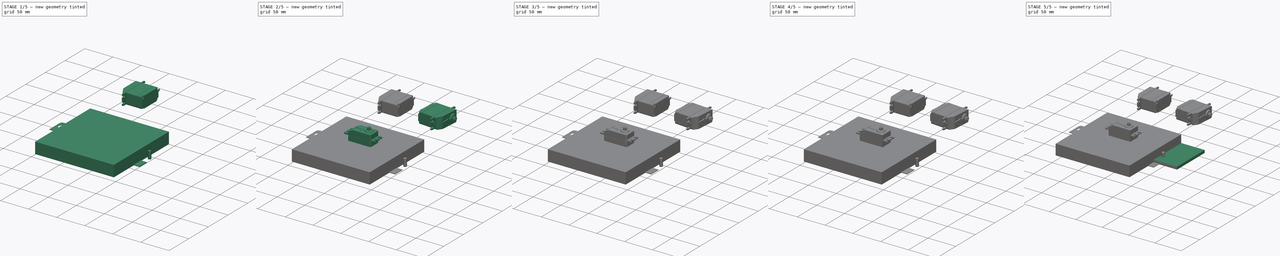
[diagram: build sequence overview — one tinted view per stage of 5, left to right]
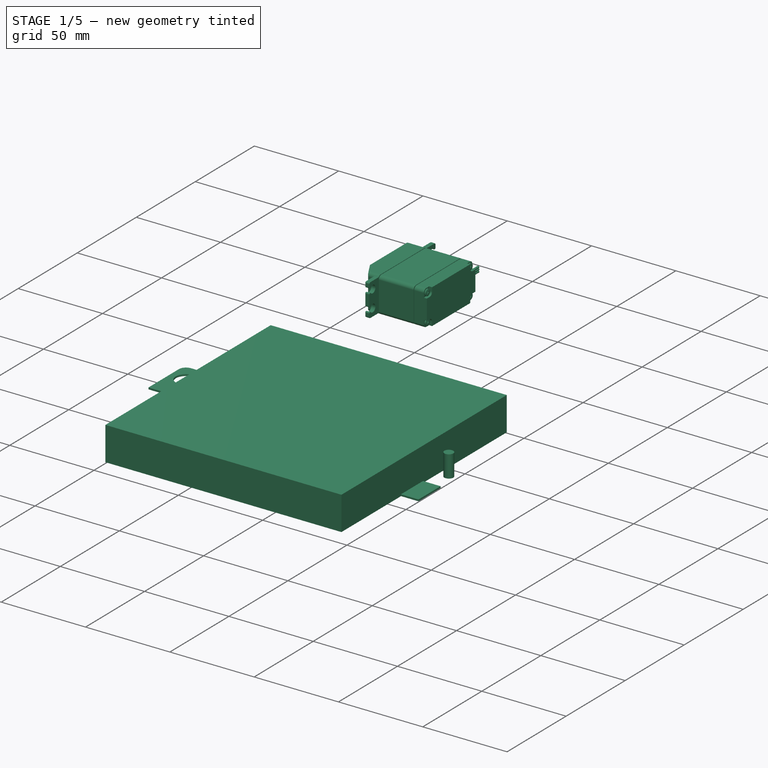
[diagram: stage 1 of 5 — iso view after this stage's code; geometry added in this stage tinted green]
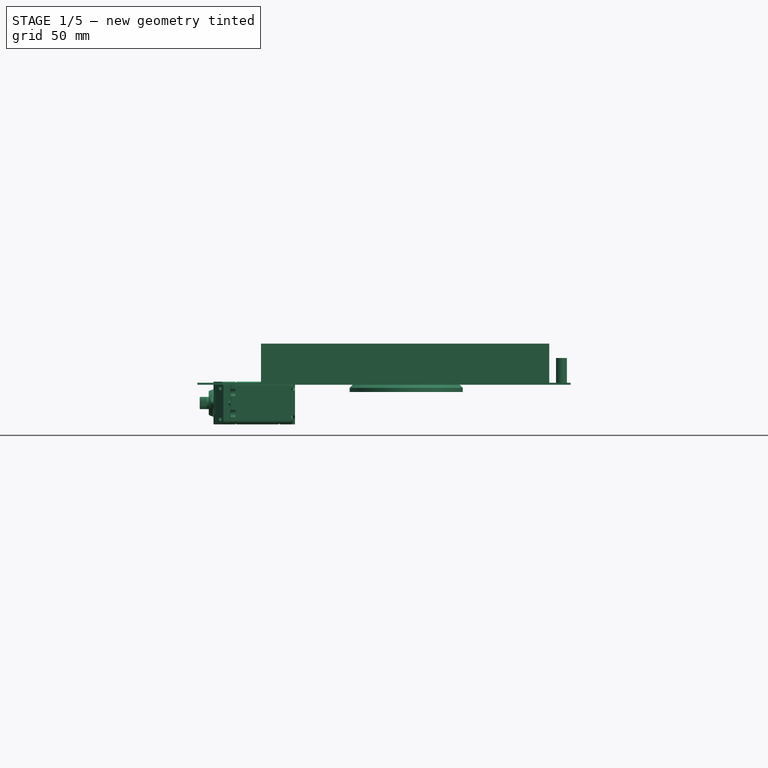
[diagram: stage 1 of 5 — front view after this stage's code; geometry added in this stage tinted green]
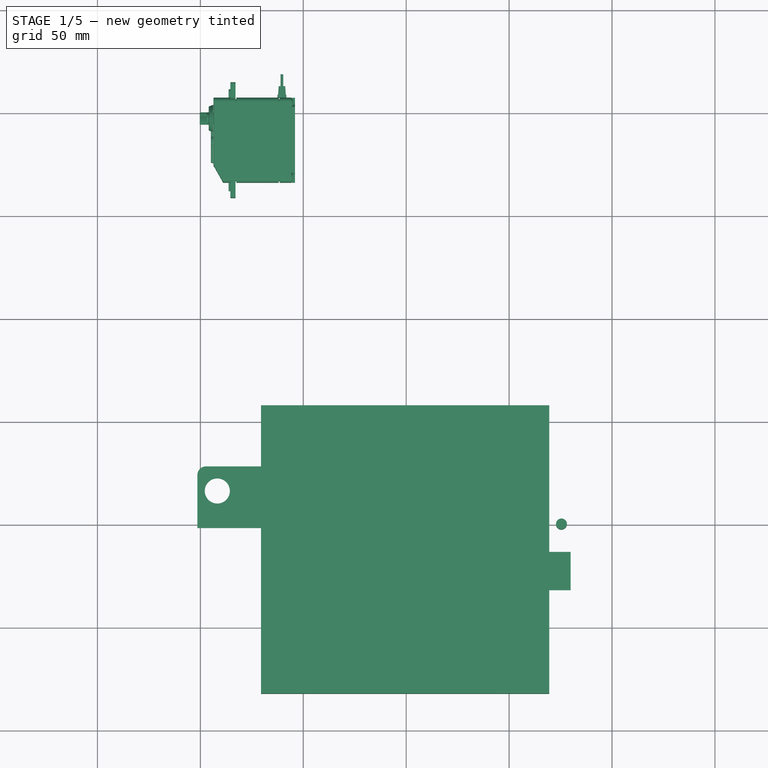
[diagram: stage 1 of 5 — top view after this stage's code; geometry added in this stage tinted green]
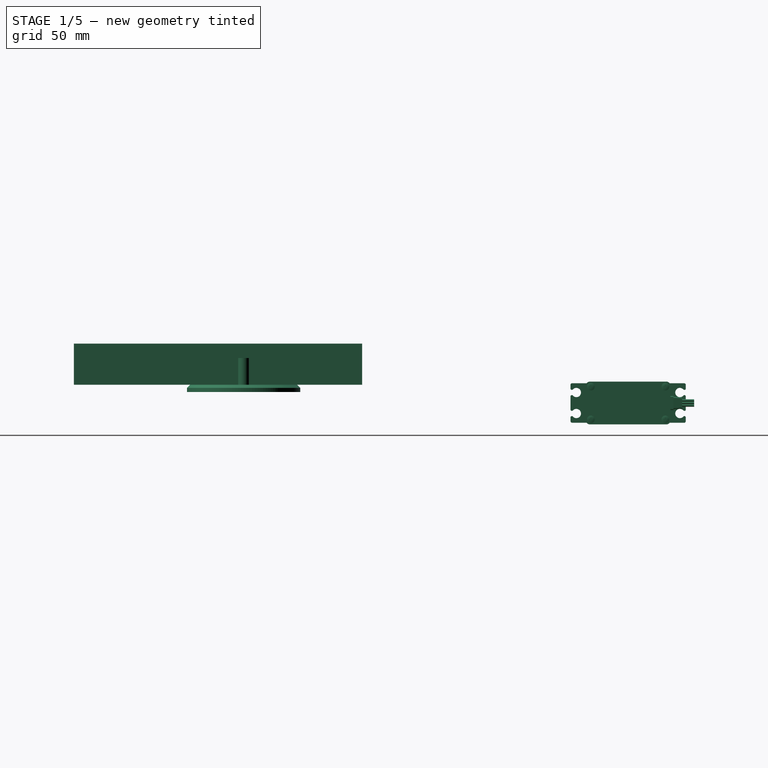
[diagram: stage 1 of 5 — right view after this stage's code; geometry added in this stage tinted green]
FCSTD DOCUMENT  (FreeCAD 0.19R24291 (Git))
Label: diseño_final
License: All rights reserved
LicenseURL: http://en.wikipedia.org/wiki/All_rights_reserved
objects: Sketcher::SketchObject×83, Part::Feature×51, PartDesign::Pad×39, PartDesign::Pocket×30, PartDesign::Body×19, Part::MultiFuse×16, App::LinkGroup×14, Part::Fillet×14, App::DocumentObjectGroup×10, Part::Box×8, Part::Compound×8, Part::Cut×6, PartDesign::PolarPattern×6, Part::Loft×6, Part::Mirroring×4, PartDesign::Mirrored×4, PartDesign::Fillet×4, PartDesign::Chamfer×4, Part::Cylinder×3, Part::FeaturePython×2, +3 more types
note: 391 computed .brp shape members not serialized (recipe doc carries the construction recipe); baked Part::Feature solids carry a one-line shape summary decoded from their .brp

FEATURE [Sketcher::SketchObject] Sketch004
  FullyConstrained = false
  MapMode = 5
  Support = -> [XY_Plane003]
  sketch-geometry (8):
    g0: LineSegment StartX=-25.0348 StartY=11.057 StartZ=0 EndX=26.1474 EndY=11.057 EndZ=0
    g1: LineSegment StartX=26.1474 StartY=11.057 StartZ=0 EndX=26.1474 EndY=-9.24896 EndZ=0
    g2: LineSegment StartX=26.1474 StartY=-9.24896 StartZ=0 EndX=-25.0348 EndY=-9.24896 EndZ=0
    g3: LineSegment StartX=-25.0348 StartY=-9.24896 StartZ=0 EndX=-25.0348 EndY=11.057 EndZ=0
    g4: Circle CenterX=-23.0712 CenterY=8.82531 CenterZ=0 NormalX=0 NormalY=0 NormalZ=1 AngleXU=0 Radius=0.698514
    g5: Circle CenterX=23.9427 CenterY=8.43482 CenterZ=0 NormalX=0 NormalY=0 NormalZ=1 AngleXU=0 Radius=0.740892
    g6: Circle CenterX=24.0208 CenterY=-7.49681 CenterZ=0 NormalX=0 NormalY=0 NormalZ=1 AngleXU=0 Radius=0.707187
    g7: Circle CenterX=-23.1493 CenterY=-7.02823 CenterZ=0 NormalX=0 NormalY=0 NormalZ=1 AngleXU=0 Radius=0.720017
  constraints (8):
    c: Coincident(g0,g1)
    c: Coincident(g1,g2)
    c: Coincident(g2,g3)
    c: Coincident(g3,g0)
    c: Horizontal(g0)
    c: Horizontal(g2)
    c: Vertical(g1)
    c: Vertical(g3)
FEATURE [PartDesign::Pad] Pad003
  Direction = (1,1,1)
  Length = 2
  Length2 = 100
  Profile = -> Sketch004
  Type = 0
FEATURE [PartDesign::Body] Body003  label="Body"
  Group = -> [Sketch004,Pad003]
  Origin = -> Origin003
  Tip = -> Pad003
FEATURE [Part::FeaturePython] Tube  label="cilindro1"  # WARN: FeaturePython — macro-defined, semantics opaque (R4)
  AttacherType = Attacher::AttachEngine3D
  Height = 10
  InnerRadius = 5
  OuterRadius = 6
  Placement = pos=(-16,1,1) rot=(0,0,1;0rad)
FEATURE [Part::FeaturePython] Tube001  label="Cilindro2"  # WARN: FeaturePython — macro-defined, semantics opaque (R4)
  AttacherType = Attacher::AttachEngine3D
  Height = 10
  InnerRadius = 5
  OuterRadius = 6
  Placement = pos=(17,1,0) rot=(0,0,1;0rad)
FEATURE [Part::Box] Box  label="contacto1"
  AttacherType = Attacher::AttachEngine3D
  Height = 1
  Length = 2
  Placement = pos=(-7,-18,-1) rot=(0,0,1;0rad)
  Width = 10
FEATURE [Part::Box] Box001  label="contacto2"
  AttacherType = Attacher::AttachEngine3D
  Height = 1
  Length = 2
  Placement = pos=(-2,-18,-1) rot=(0,0,1;0rad)
  Width = 10
FEATURE [Part::Box] Box002  label="contacto3"
  AttacherType = Attacher::AttachEngine3D
  Height = 1
  Length = 2
  Placement = pos=(3,-18,-1) rot=(0,0,1;0rad)
  Width = 10
FEATURE [Part::Box] Box003  label="contacto4"
  AttacherType = Attacher::AttachEngine3D
  Height = 1
  Length = 2
  Placement = pos=(7,-18,-1) rot=(0,0,1;0rad)
  Width = 10
FEATURE [App::LinkGroup] LinkGroup  label="sensor_ultrasonidos"
  ElementList = -> [Box003,Box002,Tube001,Box,Box001,Body003,Tube]
  LinkMode = 0
  Placement = pos=(3.11266,-4.47148,19.5285) rot=(0,0.707107,-0.707107;3.14159rad)
FEATURE [Sketcher::SketchObject] Sketch005  label="wheel-generic-sketch"
  FullyConstrained = false
  MapMode = 5
  Placement = pos=(0,0,0) rot=(1,0,0;1.5708rad)
  sketch-geometry (7):
    g0: LineSegment StartX=0 StartY=-3.5 StartZ=0 EndX=0 EndY=3.5 EndZ=0
    g1: LineSegment StartX=0 StartY=3.5 StartZ=0 EndX=27.5 EndY=3.5 EndZ=0
    g2: LineSegment StartX=27.5 StartY=3.5 StartZ=0 EndX=27.5 EndY=1.5 EndZ=0
    g3: LineSegment StartX=27.5 StartY=1.5 StartZ=0 EndX=26 EndY=0 EndZ=0
    g4: LineSegment StartX=26 StartY=0 StartZ=0 EndX=27.5 EndY=-1.5 EndZ=0
    g5: LineSegment StartX=27.5 StartY=-1.5 StartZ=0 EndX=27.5 EndY=-3.5 EndZ=0
    g6: LineSegment StartX=27.5 StartY=-3.5 StartZ=0 EndX=0 EndY=-3.5 EndZ=0
  constraints (20):
    c: Vertical(g0)
    c: Coincident(g0,g1)
    c: Horizontal(g1)
    c: Coincident(g1,g2)
    c: Vertical(g2)
    c: Coincident(g2,g3)
    c: Coincident(g3,g4)
    c: Coincident(g4,g5)
    c: Coincident(g5,g6)
    c: Coincident(g6,g0)
    c: Horizontal(g6)
    c: Vertical(g5)
    c: PointOnObject(g0,g-2)
    c: Symmetric(g0,g0,g-1)
    c: PointOnObject(g3,g-1)
    c: Symmetric(g4,g2,g-1)
    c: Angle(g3,g-1) = 2.35619
    c: DistanceY(g4,g2) = 3
    c: DistanceX(g1) = 27.5
    c: DistanceY(g0) = 7
FEATURE [PartDesign::Revolution] Revolution  label="wheel-generic"
  AllowMultiFace = false
  Angle = 360
  Axis = (0,0,1)
  Base = (0,0,0)
  Placement = pos=(0,0,0) rot=(1,0,0;1.5708rad)
  Profile = -> Sketch005
  ReferenceAxis = -> Sketch005 [V_Axis]
  Reversed = true
FEATURE [Sketcher::SketchObject] Sketch001  label="horn-top-left-quarter-sketch"
  FullyConstrained = false
  MapMode = 5
  sketch-geometry (12):
    g0: LineSegment StartX=0 StartY=0 StartZ=0 EndX=0 EndY=19.7 EndZ=0
    g1: LineSegment StartX=-4.73762 StartY=4.73762 StartZ=0 EndX=0 EndY=0 EndZ=0
    g2: ArcOfCircle CenterX=-5.79828 CenterY=5.79828 CenterZ=0 NormalX=0 NormalY=0 NormalZ=1 AngleXU=0 Radius=1.5 StartAngle=4.7124 EndAngle=6.28317
    g3: ArcOfCircle CenterX=-17 CenterY=0 CenterZ=0 NormalX=0 NormalY=0 NormalZ=1 AngleXU=0 Radius=2.7 StartAngle=1.73871 EndAngle=3.14159
    g4: ArcOfCircle CenterX=0 CenterY=17 CenterZ=0 NormalX=0 NormalY=0 NormalZ=1 AngleXU=0 Radius=2.7 StartAngle=1.5708 EndAngle=2.97368
    g5: LineSegment StartX=-4.29828 StartY=5.79826 StartZ=0 EndX=-4.29828 EndY=7.79826 EndZ=0
    g6: LineSegment StartX=-5.79826 StartY=4.29828 StartZ=0 EndX=-7.79826 EndY=4.29828 EndZ=0
    g7: LineSegment StartX=-4.29828 StartY=7.79826 StartZ=0 EndX=-2.66203 EndY=17.4512 EndZ=0
    g8: LineSegment StartX=-17.4512 StartY=2.66203 StartZ=0 EndX=-7.79826 EndY=4.29828 EndZ=0
    g9: LineSegment StartX=-7.79826 StartY=4.29828 StartZ=0 EndX=-7.79826 EndY=0 EndZ=0
    g10: LineSegment StartX=-4.29828 StartY=7.79826 StartZ=0 EndX=0 EndY=7.79826 EndZ=0
    g11: LineSegment StartX=-19.7 StartY=0 StartZ=0 EndX=0 EndY=0 EndZ=0
  constraints (39):
    c: PointOnObject(g0,g-2)
    c: Coincident(g1,g-1)
    c: Angle(g-1,g1) = 2.35619
    c: PointOnObject(g2,g1)
    c: PointOnObject(g1,g2)
    c: Coincident(g4,g0)
    c: PointOnObject(g4,g0)
    c: Equal(g3,g4)
    c: Radius(g3) = 2.7
    c: Coincident(g5,g2)
    c: Vertical(g5)
    c: Coincident(g6,g2)
    c: Horizontal(g6)
    c: Equal(g6,g5)
    c: Tangent(g7,g4)
    c: Coincident(g7,g4)
    c: Coincident(g7,g5)
    c: Coincident(g8,g3)
    c: Coincident(g8,g6)
    c: Tangent(g8,g3)
    c: Tangent(g2,g6)
    c: DistanceX(g6) = -2
    c: Radius(g2) = 1.5
    c: Vertical(g9)
    c: Coincident(g9,g6)
    c: Horizontal(g10)
    c: Coincident(g10,g5)
    c: PointOnObject(g10,g0)
    c: Equal(g9,g10)
    c: Distance(g1) = 6.7
    c: PointOnObject(g3,g-1)
    c: PointOnObject(g3,g-1)
    c: Horizontal(g11)
    c: Coincident(g11,g-1)
    c: Coincident(g11,g3)
    c: Equal(g11,g0)
    c: PointOnObject(g9,g11)
    c: Coincident(g0,g-1)
    c: DistanceX(g11) = 19.7
FEATURE [PartDesign::Pad] Pad004  label="horn-top-left-quarter"
  AllowMultiFace = false
  Direction = (1,1,1)
  Length = 6
  Length2 = 100
  Profile = -> Sketch001
  Type = 0
FEATURE [Part::Mirroring] Part__Mirroring  label="horn-top-left-quarter (Mirror #1)"
  Base = (0,0,0)
  Normal = (1,0,0)
  Source = -> Pad004
FEATURE [Part::MultiFuse] Fusion
  Shapes = -> [Part__Mirroring,Pad004]
FEATURE [Part::Mirroring] Part__Mirroring001  label="Fusion (Mirror #2)"
  Base = (0,0,0)
  Normal = (0,1,0)
  Source = -> Fusion
FEATURE [Part::MultiFuse] Fusion001  label="4-arms-horn-body"
  Placement = pos=(0,0,-0.5) rot=(0,0,1;0rad)
  Shapes = -> [Part__Mirroring001,Fusion]
FEATURE [Part::Cut] Cut  label="wheel-horn"
  Base = -> Revolution
  Tool = -> Fusion001
FEATURE [Sketcher::SketchObject] Sketch006  label="shaft-drill-sketch"
  FullyConstrained = false
  MapMode = 5
  Placement = pos=(0,0,-0.5) rot=(0,0,1;0rad)
  Support = -> [Cut]
  sketch-geometry (1):
    g0: Circle CenterX=0 CenterY=0 CenterZ=0 NormalX=0 NormalY=0 NormalZ=1 AngleXU=0 Radius=5.2
  constraints (2):
    c: Coincident(g0,g-1)
    c: Radius(g0) = 5.2
FEATURE [PartDesign::Pocket] Pocket  label="shaft-drill"
  AllowMultiFace = false
  Length = 5
  Length2 = 100
  Profile = -> Sketch006
  Type = 1
FEATURE [Sketcher::SketchObject] Sketch007  label="drill-horn-master-sketch"
  FullyConstrained = false
  MapMode = 5
  Placement = pos=(0,0,-0.5) rot=(0,0,1;0rad)
  Support = -> [Pocket]
  sketch-geometry (1):
    g0: Circle CenterX=-16.15 CenterY=0 CenterZ=0 NormalX=0 NormalY=0 NormalZ=1 AngleXU=0 Radius=0.85
  constraints (3):
    c: PointOnObject(g0,g-1)
    c: Radius(g0) = 0.85
    c: DistanceX(g-1,g0) = -16.15
FEATURE [PartDesign::Pocket] Pocket001  label="drill-horn-master"
  AllowMultiFace = false
  Length = 5
  Length2 = 100
  Profile = -> Sketch007
  Type = 1
FEATURE [PartDesign::PolarPattern] PolarPattern  label="horn-drills"
  Angle = 360
  Axis = -> Sketch007 [N_Axis]
  Occurrences = 2
  Originals = -> [Pocket001]
FEATURE [Sketcher::SketchObject] Sketch008  label="horn-screw-room-master-sketch"
  FullyConstrained = false
  MapMode = 5
  Placement = pos=(0,8e-16,3.5) rot=(0,0,1;0rad)
  Support = -> [PolarPattern]
  sketch-geometry (1):
    g0: Circle CenterX=-16.15 CenterY=0 CenterZ=0 NormalX=0 NormalY=0 NormalZ=1 AngleXU=0 Radius=4
  constraints (3):
    c: PointOnObject(g0,g-1)
    c: DistanceX(g-1,g0) = -16.15
    c: Radius(g0) = 4
FEATURE [PartDesign::Pocket] Pocket002  label="horn-screw-room-master"
  AllowMultiFace = false
  Length = 4
  Length2 = 100
  Profile = -> Sketch008
  Type = 0
FEATURE [Part::Compound] Compound004  label="servo1"
  Placement = pos=(-54,186.811,-8.86518) rot=(-0.57735,-0.57735,0.57735;2.0944rad)
FEATURE [App::LinkGroup] LinkGroup006  label="infrarrojos2"
  ElementList = -> [Body006,Box006,Box007]
  LinkMode = 0
  Placement = pos=(-45.9999,127,49.0002) rot=(0,0.968835,0.247706;0rad)
FEATURE [App::LinkGroup] LinkGroup007  label="rueda_completa1"
  ElementList = -> [LinkGroup003,Compound009]
  LinkMode = 0
  Placement = pos=(60,55.0001,54) rot=(0,0,1;0rad)
FEATURE [App::LinkGroup] LinkGroup008  label="rueda_completa2"
  ElementList = -> [Compound004,LinkGroup002]
  LinkMode = 0
  Placement = pos=(12,56,53) rot=(0,0,1;0rad)
FEATURE [Sketcher::SketchObject] Sketch071
  FullyConstrained = false
  MapMode = 5
  Support = -> [XY_Plane007]
  sketch-geometry (4):
    g0: LineSegment StartX=-70.5237 StartY=57.5569 StartZ=0 EndX=69.4763 EndY=57.5569 EndZ=0
    g1: LineSegment StartX=69.4763 StartY=57.5569 StartZ=0 EndX=69.4763 EndY=-82.4431 EndZ=0
    g2: LineSegment StartX=69.4763 StartY=-82.4431 StartZ=0 EndX=-70.5237 EndY=-82.4431 EndZ=0
    g3: LineSegment StartX=-70.5237 StartY=-82.4431 StartZ=0 EndX=-70.5237 EndY=57.5569 EndZ=0
  constraints (10):
    c: Coincident(g0,g1)
    c: Coincident(g1,g2)
    c: Coincident(g2,g3)
    c: Coincident(g3,g0)
    c: Horizontal(g0)
    c: Horizontal(g2)
    c: Vertical(g1)
    c: Vertical(g3)
    c: DistanceX(g0,g0) = 140
    c: DistanceY(g1,g1) = 140
FEATURE [PartDesign::Pad] Pad002001003004001007021
  Direction = (1,1,1)
  Length = 20
  Length2 = 100
  Profile = -> Sketch071
  Type = 0
FEATURE [PartDesign::Body] Body007  label="base"
  Group = -> [Sketch071,Pad002001003004001007021]
  Origin = -> Origin007
  Placement = pos=(0,205,54) rot=(0,0,1;0rad)
  Tip = -> Pad002001003004001007021
FEATURE [Sketcher::SketchObject] Sketch072
  FullyConstrained = false
  MapMode = 5
  Support = -> [XY_Plane008]
  sketch-geometry (6):
    g0: LineSegment StartX=-22.7789 StartY=11.5836 StartZ=0 EndX=27.2211 EndY=11.5836 EndZ=0
    g1: LineSegment StartX=27.2211 StartY=11.5836 StartZ=0 EndX=27.2211 EndY=-10.9971 EndZ=0
    g2: LineSegment StartX=27.2211 StartY=-10.9971 StartZ=0 EndX=-22.7789 EndY=-10.9971 EndZ=0
    g3: LineSegment StartX=-22.7789 StartY=-10.9971 StartZ=0 EndX=-22.7789 EndY=11.5836 EndZ=0
    g4: Circle CenterX=-15.32 CenterY=0 CenterZ=0 NormalX=0 NormalY=0 NormalZ=1 AngleXU=0 Radius=1.49781
    g5: Circle CenterX=18.8064 CenterY=-0.289318 CenterZ=0 NormalX=0 NormalY=0 NormalZ=1 AngleXU=0 Radius=1.53606
  constraints (10):
    c: Coincident(g0,g1)
    c: Coincident(g1,g2)
    c: Coincident(g2,g3)
    c: Coincident(g3,g0)
    c: Horizontal(g0)
    c: Horizontal(g2)
    c: Vertical(g1)
    c: Vertical(g3)
    c: DistanceX(g0,g0) = 50
    c: PointOnObject(g4,g-1)
FEATURE [PartDesign::Pad] Pad002001003004001007022
  Direction = (1,1,1)
  Length = 1
  Length2 = 100
  Profile = -> Sketch072
  Type = 0
FEATURE [PartDesign::Body] Body008  label="base_abajo"
  Group = -> [Sketch072,Pad002001003004001007022]
  Origin = -> Origin008
  Tip = -> Pad002001003004001007022
FEATURE [Sketcher::SketchObject] Sketch073  label="Sketch001"
  FullyConstrained = false
  MapMode = 5
  Support = -> [XY_Plane009]
  sketch-geometry (8):
    g0: LineSegment StartX=-97.2101 StartY=28.1823 StartZ=0 EndX=-55.6954 EndY=28.1823 EndZ=0
    g1: LineSegment StartX=-51.4527 StartY=23.9396 StartZ=0 EndX=-51.4527 EndY=-1.81774 EndZ=0
    g2: LineSegment StartX=-51.4527 StartY=-1.81774 StartZ=0 EndX=-101.453 EndY=-1.81774 EndZ=0
    g3: LineSegment StartX=-101.453 StartY=-1.81774 StartZ=0 EndX=-101.453 EndY=23.9396 EndZ=0
    g4: Circle CenterX=-91.7643 CenterY=16.2056 CenterZ=0 NormalX=0 NormalY=0 NormalZ=1 AngleXU=0 Radius=6.0872
    g5: ArcOfCircle CenterX=-97.2101 CenterY=23.9396 CenterZ=0 NormalX=0 NormalY=0 NormalZ=1 AngleXU=0 Radius=4.24264 StartAngle=1.5708 EndAngle=3.14159
    g6: ArcOfCircle CenterX=-55.6954 CenterY=23.9396 CenterZ=0 NormalX=0 NormalY=0 NormalZ=1 AngleXU=0 Radius=4.24264 StartAngle=0 EndAngle=1.5708
    g7: Circle CenterX=-63.0169 CenterY=16.3189 CenterZ=0 NormalX=0 NormalY=0 NormalZ=1 AngleXU=0 Radius=6.30541
  constraints (10):
    c: Coincident(g1,g2)
    c: Coincident(g2,g3)
    c: Horizontal(g0)
    c: Horizontal(g2)
    c: Vertical(g1)
    c: Vertical(g3)
    c: Tangent(g0,g5) = 1.5708
    c: Tangent(g3,g5) = 1.5708
    c: Tangent(g0,g6) = 1.5708
    c: Tangent(g1,g6) = 1.5708
FEATURE [PartDesign::Pad] Pad002001003004001007023
  Direction = (1,1,1)
  Length = 1
  Length2 = 100
  Profile = -> Sketch073
  Type = 0
FEATURE [PartDesign::Body] Body009  label="base_arriba"
  Group = -> [Sketch073,Pad002001003004001007023]
  Origin = -> Origin009
  Placement = pos=(79,12,2) rot=(1,0,0;1.5708rad)
  Tip = -> Pad002001003004001007023
FEATURE [App::LinkGroup] LinkGroup009  label="base_ultrasonidos"
  ElementList = -> [Body009,Body008]
  LinkMode = 0
  Placement = pos=(4.7684,1.00293,-9.53674e-07) rot=(0,0,1;3.14159rad)
FEATURE [App::LinkGroup] LinkGroup010  label="union_ultra"
  ElementList = -> [LinkGroup,LinkGroup009]
  LinkMode = 0
  Placement = pos=(-7.15256e-07,125,74) rot=(0,0,1;0rad)
FEATURE [Sketcher::SketchObject] Sketch074
  FullyConstrained = false
  MapMode = 5
  Support = -> [XY_Plane010]
  sketch-geometry (7):
    g0: LineSegment StartX=-8.06452 StartY=0 StartZ=0 EndX=9.82406 EndY=0 EndZ=0
    g1: LineSegment StartX=9.82406 StartY=0 StartZ=0 EndX=9.82406 EndY=25.2473 EndZ=0
    g2: LineSegment StartX=7.652 StartY=27.4194 StartZ=0 EndX=-5.53469 EndY=27.4194 EndZ=0
    g3: LineSegment StartX=-8.06452 StartY=24.8895 StartZ=0 EndX=-8.06452 EndY=0 EndZ=0
    g4: ArcOfCircle CenterX=-5.53469 CenterY=24.8895 CenterZ=0 NormalX=0 NormalY=0 NormalZ=1 AngleXU=0 Radius=2.52983 StartAngle=1.5708 EndAngle=3.14159
    g5: ArcOfCircle CenterX=7.652 CenterY=25.2473 CenterZ=0 NormalX=0 NormalY=0 NormalZ=1 AngleXU=0 Radius=2.17205 StartAngle=0 EndAngle=1.5708
    g6: Circle CenterX=0.573308 CenterY=20.1084 CenterZ=0 NormalX=0 NormalY=0 NormalZ=1 AngleXU=0 Radius=2.31699
  constraints (11):
    c: Coincident(g0,g1)
    c: Coincident(g3,g0)
    c: Horizontal(g0)
    c: Horizontal(g2)
    c: Vertical(g1)
    c: Vertical(g3)
    c: PointOnObject(g0,g-1)
    c: Tangent(g2,g4) = -1.5708
    c: Tangent(g3,g4) = -1.5708
    c: Tangent(g1,g5) = -1.5708
    c: Tangent(g2,g5) = -1.5708
FEATURE [PartDesign::Pad] Pad002001003004001007024
  Direction = (1,1,1)
  Length = 1
  Length2 = 100
  Profile = -> Sketch074
  Type = 0
FEATURE [PartDesign::Body] Body010  label="abajo"
  Group = -> [Sketch074,Pad002001003004001007024]
  Origin = -> Origin010
  Tip = -> Pad002001003004001007024
FEATURE [Sketcher::SketchObject] Sketch075
  FullyConstrained = false
  MapMode = 5
  Support = -> [XY_Plane011]
  sketch-geometry (7):
    g0: LineSegment StartX=-8.06452 StartY=0 StartZ=0 EndX=9.82406 EndY=0 EndZ=0
    g1: LineSegment StartX=9.82406 StartY=0 StartZ=0 EndX=9.82406 EndY=25.2473 EndZ=0
    g2: LineSegment StartX=7.652 StartY=27.4194 StartZ=0 EndX=-5.53469 EndY=27.4194 EndZ=0
    g3: LineSegment StartX=-8.06452 StartY=24.8895 StartZ=0 EndX=-8.06452 EndY=0 EndZ=0
    g4: ArcOfCircle CenterX=-5.53469 CenterY=24.8895 CenterZ=0 NormalX=0 NormalY=0 NormalZ=1 AngleXU=0 Radius=2.52983 StartAngle=1.5708 EndAngle=3.14159
    g5: ArcOfCircle CenterX=7.652 CenterY=25.2473 CenterZ=0 NormalX=0 NormalY=0 NormalZ=1 AngleXU=0 Radius=2.17205 StartAngle=0 EndAngle=1.5708
    g6: Circle CenterX=0.573308 CenterY=20.1084 CenterZ=0 NormalX=0 NormalY=0 NormalZ=1 AngleXU=0 Radius=2.31699
  constraints (11):
    c: Coincident(g0,g1)
    c: Coincident(g3,g0)
    c: Horizontal(g0)
    c: Horizontal(g2)
    c: Vertical(g1)
    c: Vertical(g3)
    c: PointOnObject(g0,g-1)
    c: Tangent(g2,g4) = -1.5708
    c: Tangent(g3,g4) = -1.5708
    c: Tangent(g1,g5) = -1.5708
    c: Tangent(g2,g5) = -1.5708
FEATURE [PartDesign::Pad] Pad002001003004001007025
  Direction = (1,1,1)
  Length = 1
  Length2 = 100
  Profile = -> Sketch075
  Type = 0
FEATURE [PartDesign::Body] Body011  label="arriba"
  Group = -> [Sketch075,Pad002001003004001007025]
  Origin = -> Origin011
  Placement = pos=(0,0,0) rot=(1,0,0;1.5708rad)
  Tip = -> Pad002001003004001007025
FEATURE [App::LinkGroup] LinkGroup011  label="escuadra_final_1"
  ElementList = -> [Body011,Body010]
  LinkMode = 0
  Placement = pos=(-22.1496,25.8437,27.0599) rot=(0.999448,-0.012618,-0.030741;3.17954rad)
FEATURE [Sketcher::SketchObject] Sketch076
  FullyConstrained = false
  MapMode = 5
  Support = -> [XY_Plane012]
  sketch-geometry (7):
    g0: LineSegment StartX=-8.06452 StartY=0 StartZ=0 EndX=9.82406 EndY=0 EndZ=0
    g1: LineSegment StartX=9.82406 StartY=0 StartZ=0 EndX=9.82406 EndY=25.2473 EndZ=0
    g2: LineSegment StartX=7.652 StartY=27.4194 StartZ=0 EndX=-5.53469 EndY=27.4194 EndZ=0
    g3: LineSegment StartX=-8.06452 StartY=24.8895 StartZ=0 EndX=-8.06452 EndY=0 EndZ=0
    g4: ArcOfCircle CenterX=-5.53469 CenterY=24.8895 CenterZ=0 NormalX=0 NormalY=0 NormalZ=1 AngleXU=0 Radius=2.52983 StartAngle=1.5708 EndAngle=3.14159
    g5: ArcOfCircle CenterX=7.652 CenterY=25.2473 CenterZ=0 NormalX=0 NormalY=0 NormalZ=1 AngleXU=0 Radius=2.17205 StartAngle=0 EndAngle=1.5708
    g6: Circle CenterX=0.573308 CenterY=20.1084 CenterZ=0 NormalX=0 NormalY=0 NormalZ=1 AngleXU=0 Radius=2.31699
  constraints (11):
    c: Coincident(g0,g1)
    c: Coincident(g3,g0)
    c: Horizontal(g0)
    c: Horizontal(g2)
    c: Vertical(g1)
    c: Vertical(g3)
    c: PointOnObject(g0,g-1)
    c: Tangent(g2,g4) = -1.5708
    c: Tangent(g3,g4) = -1.5708
    c: Tangent(g1,g5) = -1.5708
    c: Tangent(g2,g5) = -1.5708
FEATURE [PartDesign::Pad] Pad002001003004001007026
  Direction = (1,1,1)
  Length = 1
  Length2 = 100
  Profile = -> Sketch076
  Type = 0
FEATURE [PartDesign::Body] Body012  label="abajo001"
  Group = -> [Sketch076,Pad002001003004001007026]
  Origin = -> Origin012
  Tip = -> Pad002001003004001007026
FEATURE [Sketcher::SketchObject] Sketch077
  FullyConstrained = false
  MapMode = 5
  Support = -> [XY_Plane013]
  sketch-geometry (7):
    g0: LineSegment StartX=-8.06452 StartY=0 StartZ=0 EndX=9.82406 EndY=0 EndZ=0
    g1: LineSegment StartX=9.82406 StartY=0 StartZ=0 EndX=9.82406 EndY=25.2473 EndZ=0
    g2: LineSegment StartX=7.652 StartY=27.4194 StartZ=0 EndX=-5.53469 EndY=27.4194 EndZ=0
    g3: LineSegment StartX=-8.06452 StartY=24.8895 StartZ=0 EndX=-8.06452 EndY=0 EndZ=0
    g4: ArcOfCircle CenterX=-5.53469 CenterY=24.8895 CenterZ=0 NormalX=0 NormalY=0 NormalZ=1 AngleXU=0 Radius=2.52983 StartAngle=1.5708 EndAngle=3.14159
    g5: ArcOfCircle CenterX=7.652 CenterY=25.2473 CenterZ=0 NormalX=0 NormalY=0 NormalZ=1 AngleXU=0 Radius=2.17205 StartAngle=0 EndAngle=1.5708
    g6: Circle CenterX=0.573308 CenterY=20.1084 CenterZ=0 NormalX=0 NormalY=0 NormalZ=1 AngleXU=0 Radius=2.31699
  constraints (11):
    c: Coincident(g0,g1)
    c: Coincident(g3,g0)
    c: Horizontal(g0)
    c: Horizontal(g2)
    c: Vertical(g1)
    c: Vertical(g3)
    c: PointOnObject(g0,g-1)
    c: Tangent(g2,g4) = -1.5708
    c: Tangent(g3,g4) = -1.5708
    c: Tangent(g1,g5) = -1.5708
    c: Tangent(g2,g5) = -1.5708
FEATURE [PartDesign::Pad] Pad002001003004001007027
  Direction = (1,1,1)
  Length = 1
  Length2 = 100
  Profile = -> Sketch077
  Type = 0
FEATURE [PartDesign::Body] Body013  label="arriba001"
  Group = -> [Sketch077,Pad002001003004001007027]
  Origin = -> Origin013
  Placement = pos=(0,0,0) rot=(1,0,0;1.5708rad)
  Tip = -> Pad002001003004001007027
FEATURE [Part::Feature] Feature  label="Caster Ball Wheel001"
  Placement = pos=(-28.9438,-10.7904,28.5332) rot=(0.249523,0.103356,0.962838;3.9177rad)
  shape: bbox 29.7 x 30.78 x 34.21 mm, 46 faces, 2 solids (baked)
FEATURE [App::LinkGroup] LinkGroup001  label=" escuadra_final_2"
  ElementList = -> [Body013,Body012]
  LinkMode = 0
  Placement = pos=(-23.204,29.4444,-13.1959) rot=(0.58402,0.513758,-0.628469;0.04805rad)
FEATURE [App::LinkGroup] LinkGroup012  label="base_rueda_loca"
  ElementList = -> [LinkGroup011,LinkGroup001]
  LinkMode = 0
  Placement = pos=(-11.6611,30.1889,-27.6626) rot=(-0.532107,0.439789,0.723497;3.09707rad)
FEATURE [App::LinkGroup] LinkGroup013  label="union_final"
  ElementList = -> [Feature,LinkGroup012]
  LinkMode = 0
  Placement = pos=(-6.69896,144.196,13.5002) rot=(0.636741,0.770404,-0.032237;1.5244rad)
FEATURE [Sketcher::SketchObject] Sketch078
  FullyConstrained = false
  MapMode = 5
  Support = -> [XY_Plane014]
  sketch-geometry (4):
    g0: LineSegment StartX=-46.7569 StartY=40.5161 StartZ=0 EndX=33.2431 EndY=40.5161 EndZ=0
    g1: LineSegment StartX=33.2431 StartY=40.5161 StartZ=0 EndX=33.2431 EndY=-19.4739 EndZ=0
    g2: LineSegment StartX=33.2431 StartY=-19.4739 StartZ=0 EndX=-46.7569 EndY=-19.4739 EndZ=0
    g3: LineSegment StartX=-46.7569 StartY=-19.4739 StartZ=0 EndX=-46.7569 EndY=40.5161 EndZ=0
  constraints (10):
    c: Coincident(g0,g1)
    c: Coincident(g1,g2)
    c: Coincident(g2,g3)
    c: Coincident(g3,g0)
    c: Horizontal(g0)
    c: Horizontal(g2)
    c: Vertical(g1)
    c: Vertical(g3)
    c: DistanceX(g0,g0) = 80
    c: DistanceY(g1,g1) = 59.99
FEATURE [PartDesign::Pad] Pad002001003004001007028
  Direction = (1,1,1)
  Length = 3
  Length2 = 100
  Profile = -> Sketch078
  Type = 0
FEATURE [PartDesign::Body] Body014  label="proto"
  Group = -> [Sketch078,Pad002001003004001007028]
  Origin = -> Origin014
  Placement = pos=(6,220,75) rot=(0,0,1;0rad)
  Tip = -> Pad002001003004001007028
FEATURE [Sketcher::SketchObject] Sketch079
  FullyConstrained = false
  MapMode = 5
  Support = -> [XY_Plane015]
  sketch-geometry (4):
    g0: LineSegment StartX=-39.7547 StartY=27.4663 StartZ=0 EndX=40.2453 EndY=27.4663 EndZ=0
    g1: LineSegment StartX=40.2453 StartY=27.4663 StartZ=0 EndX=40.2453 EndY=-22.5337 EndZ=0
    g2: LineSegment StartX=40.2453 StartY=-22.5337 StartZ=0 EndX=-39.7547 EndY=-22.5337 EndZ=0
    g3: LineSegment StartX=-39.7547 StartY=-22.5337 StartZ=0 EndX=-39.7547 EndY=27.4663 EndZ=0
  constraints (10):
    c: Coincident(g0,g1)
    c: Coincident(g1,g2)
    c: Coincident(g2,g3)
    c: Coincident(g3,g0)
    c: Horizontal(g0)
    c: Horizontal(g2)
    c: Vertical(g1)
    c: Vertical(g3)
    c: DistanceX(g0,g0) = 80
    c: DistanceY(g1,g1) = 50
FEATURE [PartDesign::Pad] Pad002001003004001007029
  Direction = (1,1,1)
  Length = 2
  Length2 = 100
  Profile = -> Sketch079
  Type = 0
FEATURE [PartDesign::Body] Body015  label="base001"
  Group = -> [Sketch079,Pad002001003004001007029]
  Origin = -> Origin015
  Tip = -> Pad002001003004001007029
FEATURE [Sketcher::SketchObject] Sketch080
  FullyConstrained = false
  MapMode = 5
  Support = -> [XY_Plane016]
  sketch-geometry (4):
    g0: LineSegment StartX=59.5865 StartY=-13.365 StartZ=0 EndX=79.8925 EndY=-13.365 EndZ=0
    g1: LineSegment StartX=79.8925 StartY=-13.365 StartZ=0 EndX=79.8925 EndY=-32.002 EndZ=0
    g2: LineSegment StartX=79.8925 StartY=-32.002 StartZ=0 EndX=59.5865 EndY=-32.002 EndZ=0
    g3: LineSegment StartX=59.5865 StartY=-32.002 StartZ=0 EndX=59.5865 EndY=-13.365 EndZ=0
  constraints (8):
    c: Coincident(g0,g1)
    c: Coincident(g1,g2)
    c: Coincident(g2,g3)
    c: Coincident(g3,g0)
    c: Horizontal(g0)
    c: Horizontal(g2)
    c: Vertical(g1)
    c: Vertical(g3)
FEATURE [PartDesign::Pad] Pad002001003004001007030
  Direction = (1,1,1)
  Length = 1
  Length2 = 100
  Profile = -> Sketch080
  Type = 0
FEATURE [PartDesign::Body] Body016  label="chip"
  Group = -> [Sketch080,Pad002001003004001007030]
  Origin = -> Origin016
  Placement = pos=(-88,26,2) rot=(0,0,1;0rad)
  Tip = -> Pad002001003004001007030
FEATURE [Sketcher::SketchObject] Sketch081
  FullyConstrained = false
  MapMode = 5
  Support = -> [XY_Plane017]
  sketch-geometry (4):
    g0: LineSegment StartX=46.5283 StartY=3.66319 StartZ=0 EndX=58.2184 EndY=3.66319 EndZ=0
    g1: LineSegment StartX=58.2184 StartY=3.66319 StartZ=0 EndX=58.2184 EndY=-4.34671 EndZ=0
    g2: LineSegment StartX=58.2184 StartY=-4.34671 StartZ=0 EndX=46.5283 EndY=-4.34671 EndZ=0
    g3: LineSegment StartX=46.5283 StartY=-4.34671 StartZ=0 EndX=46.5283 EndY=3.66319 EndZ=0
  constraints (8):
    c: Coincident(g0,g1)
    c: Coincident(g1,g2)
    c: Coincident(g2,g3)
    c: Coincident(g3,g0)
    c: Horizontal(g0)
    c: Horizontal(g2)
    c: Vertical(g1)
    c: Vertical(g3)
FEATURE [PartDesign::Pad] Pad002001003004001007031
  Direction = (1,1,1)
  Length = 8
  Length2 = 100
  Profile = -> Sketch081
  Type = 0
FEATURE [PartDesign::Hole] Hole
  BaseFeature = -> Pad002001003004001007031
  Depth = 25
  DepthType = 0
  Diameter = 6
  DrillForDepth = false
  DrillPoint = 1
  DrillPointAngle = 118
  HoleCutCountersinkAngle = 90
  HoleCutCustomValues = false
  HoleCutDepth = 0
  HoleCutDiameter = 6.1
  HoleCutType = 0
  ModelActualThread = false
  Profile = -> Pad002001003004001007031
  Tapered = false
  TaperedAngle = 90
  ThreadAngle = 0
  ThreadClass = 0
  ThreadCutOffInner = 0
  ThreadCutOffOuter = 0
  ThreadDirection = 0
  ThreadFit = 0
  ThreadPitch = 0
  ThreadSize = 0
  ThreadType = 0
  Threaded = false
FEATURE [PartDesign::Body] Body017  label="conect"
  Group = -> [Sketch081,Pad002001003004001007031,Hole]
  Origin = -> Origin017
  Placement = pos=(-11,17,2) rot=(0,0,1;0rad)
  Tip = -> Hole
FEATURE [Sketcher::SketchObject] Sketch082
  FullyConstrained = false
  MapMode = 5
  Support = -> [XY_Plane018]
  sketch-geometry (1):
    g0: Circle CenterX=75.4358 CenterY=0 CenterZ=0 NormalX=0 NormalY=0 NormalZ=1 AngleXU=0 Radius=2.64986
  constraints (1):
    c: PointOnObject(g0,g-1)
FEATURE [PartDesign::Pad] Pad002001003004001007032
  Direction = (1,1,1)
  Length = 13
  Length2 = 100
  Profile = -> Sketch082
  Type = 0
FEATURE [PartDesign::Body] Body018  label="bateria"
  Group = -> [Sketch082,Pad002001003004001007032]
  Origin = -> Origin018
  Placement = pos=(44,70,4) rot=(0.57735,-0.57735,-0.57735;2.0944rad)
  Tip = -> Pad002001003004001007032
FEATURE [App::LinkGroup] LinkGroup014  label="ardu"
  ElementList = -> [Body018,Body017,Body016,Body015]
  LinkMode = 0
  Placement = pos=(1,167,76) rot=(0,0,1;0rad)
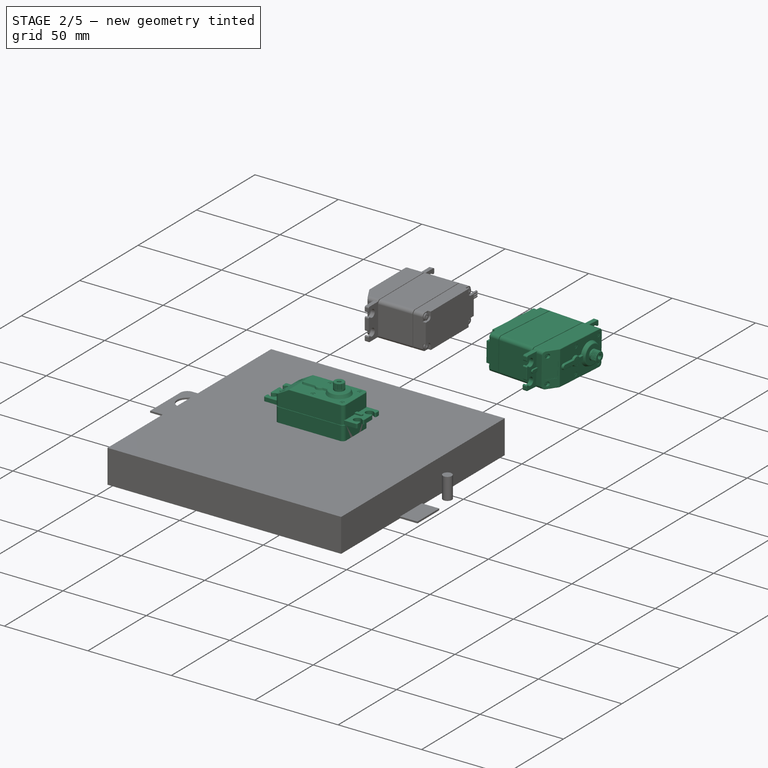
[diagram: stage 2 of 5 — iso view after this stage's code; geometry added in this stage tinted green]
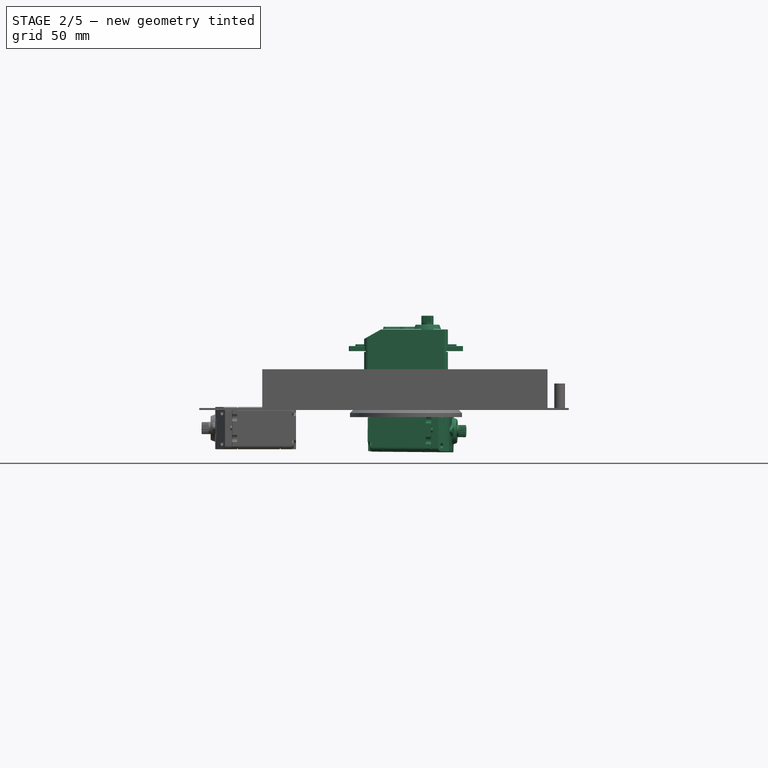
[diagram: stage 2 of 5 — front view after this stage's code; geometry added in this stage tinted green]
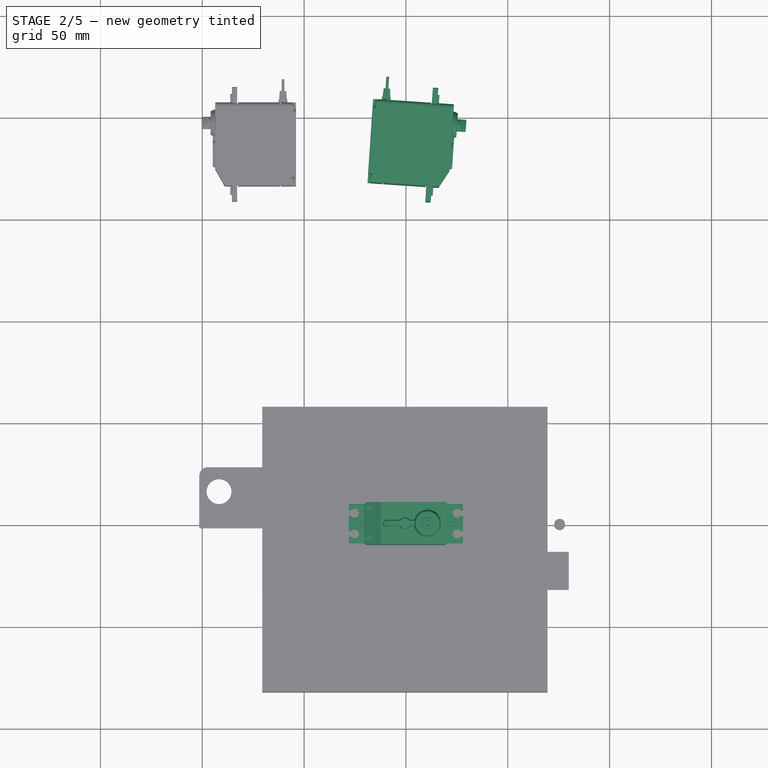
[diagram: stage 2 of 5 — top view after this stage's code; geometry added in this stage tinted green]
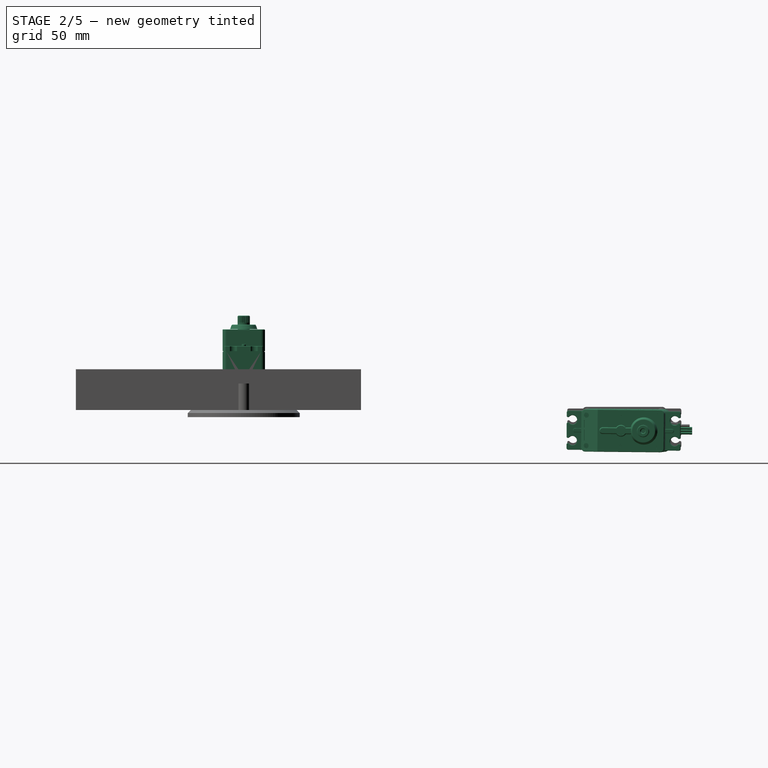
[diagram: stage 2 of 5 — right view after this stage's code; geometry added in this stage tinted green]
FEATURE [PartDesign::PolarPattern] PolarPattern001  label="horn-screws-room"
  Angle = 360
  Axis = -> Sketch008 [N_Axis]
  Occurrences = 2
  Originals = -> [Pocket002]
FEATURE [Part::Feature] PolarPattern001001  label="Renacuajo-wheel-4-arms-horn-final"
  shape: bbox 55 x 55 x 7 mm, 34 faces (baked)
FEATURE [App::LinkGroup] LinkGroup002  label="rueda1"
  ElementList = -> [PolarPattern001001,PolarPattern001]
  LinkMode = 0
  Placement = pos=(-99.447,198,-8.79556) rot=(0,-1,0;1.5708rad)
FEATURE [Sketcher::SketchObject] Sketch009  label="wheel-generic-sketch001"
  FullyConstrained = false
  MapMode = 5
  Placement = pos=(0,0,0) rot=(1,0,0;1.5708rad)
  sketch-geometry (7):
    g0: LineSegment StartX=0 StartY=-3.5 StartZ=0 EndX=0 EndY=3.5 EndZ=0
    g1: LineSegment StartX=0 StartY=3.5 StartZ=0 EndX=27.5 EndY=3.5 EndZ=0
    g2: LineSegment StartX=27.5 StartY=3.5 StartZ=0 EndX=27.5 EndY=1.5 EndZ=0
    g3: LineSegment StartX=27.5 StartY=1.5 StartZ=0 EndX=26 EndY=0 EndZ=0
    g4: LineSegment StartX=26 StartY=0 StartZ=0 EndX=27.5 EndY=-1.5 EndZ=0
    g5: LineSegment StartX=27.5 StartY=-1.5 StartZ=0 EndX=27.5 EndY=-3.5 EndZ=0
    g6: LineSegment StartX=27.5 StartY=-3.5 StartZ=0 EndX=0 EndY=-3.5 EndZ=0
  constraints (20):
    c: Vertical(g0)
    c: Coincident(g0,g1)
    c: Horizontal(g1)
    c: Coincident(g1,g2)
    c: Vertical(g2)
    c: Coincident(g2,g3)
    c: Coincident(g3,g4)
    c: Coincident(g4,g5)
    c: Coincident(g5,g6)
    c: Coincident(g6,g0)
    c: Horizontal(g6)
    c: Vertical(g5)
    c: PointOnObject(g0,g-2)
    c: Symmetric(g0,g0,g-1)
    c: PointOnObject(g3,g-1)
    c: Symmetric(g4,g2,g-1)
    c: Angle(g3,g-1) = 2.35619
    c: DistanceY(g4,g2) = 3
    c: DistanceX(g1) = 27.5
    c: DistanceY(g0) = 7
FEATURE [PartDesign::Revolution] Revolution001  label="wheel-generic001"
  AllowMultiFace = false
  Angle = 360
  Axis = (0,0,1)
  Base = (0,0,0)
  Placement = pos=(0,0,0) rot=(1,0,0;1.5708rad)
  Profile = -> Sketch009
  ReferenceAxis = -> Sketch009 [V_Axis]
  Reversed = true
FEATURE [Sketcher::SketchObject] Sketch010  label="horn-top-left-quarter-sketch001"
  FullyConstrained = false
  MapMode = 5
  sketch-geometry (12):
    g0: LineSegment StartX=0 StartY=0 StartZ=0 EndX=0 EndY=19.7 EndZ=0
    g1: LineSegment StartX=-4.73762 StartY=4.73762 StartZ=0 EndX=0 EndY=0 EndZ=0
    g2: ArcOfCircle CenterX=-5.79828 CenterY=5.79828 CenterZ=0 NormalX=0 NormalY=0 NormalZ=1 AngleXU=0 Radius=1.5 StartAngle=4.7124 EndAngle=6.28317
    g3: ArcOfCircle CenterX=-17 CenterY=0 CenterZ=0 NormalX=0 NormalY=0 NormalZ=1 AngleXU=0 Radius=2.7 StartAngle=1.73871 EndAngle=3.14159
    g4: ArcOfCircle CenterX=0 CenterY=17 CenterZ=0 NormalX=0 NormalY=0 NormalZ=1 AngleXU=0 Radius=2.7 StartAngle=1.5708 EndAngle=2.97368
    g5: LineSegment StartX=-4.29828 StartY=5.79826 StartZ=0 EndX=-4.29828 EndY=7.79826 EndZ=0
    g6: LineSegment StartX=-5.79826 StartY=4.29828 StartZ=0 EndX=-7.79826 EndY=4.29828 EndZ=0
    g7: LineSegment StartX=-4.29828 StartY=7.79826 StartZ=0 EndX=-2.66203 EndY=17.4512 EndZ=0
    g8: LineSegment StartX=-17.4512 StartY=2.66203 StartZ=0 EndX=-7.79826 EndY=4.29828 EndZ=0
    g9: LineSegment StartX=-7.79826 StartY=4.29828 StartZ=0 EndX=-7.79826 EndY=0 EndZ=0
    g10: LineSegment StartX=-4.29828 StartY=7.79826 StartZ=0 EndX=0 EndY=7.79826 EndZ=0
    g11: LineSegment StartX=-19.7 StartY=0 StartZ=0 EndX=0 EndY=0 EndZ=0
  constraints (39):
    c: PointOnObject(g0,g-2)
    c: Coincident(g1,g-1)
    c: Angle(g-1,g1) = 2.35619
    c: PointOnObject(g2,g1)
    c: PointOnObject(g1,g2)
    c: Coincident(g4,g0)
    c: PointOnObject(g4,g0)
    c: Equal(g3,g4)
    c: Radius(g3) = 2.7
    c: Coincident(g5,g2)
    c: Vertical(g5)
    c: Coincident(g6,g2)
    c: Horizontal(g6)
    c: Equal(g6,g5)
    c: Tangent(g7,g4)
    c: Coincident(g7,g4)
    c: Coincident(g7,g5)
    c: Coincident(g8,g3)
    c: Coincident(g8,g6)
    c: Tangent(g8,g3)
    c: Tangent(g2,g6)
    c: DistanceX(g6) = -2
    c: Radius(g2) = 1.5
    c: Vertical(g9)
    c: Coincident(g9,g6)
    c: Horizontal(g10)
    c: Coincident(g10,g5)
    c: PointOnObject(g10,g0)
    c: Equal(g9,g10)
    c: Distance(g1) = 6.7
    c: PointOnObject(g3,g-1)
    c: PointOnObject(g3,g-1)
    c: Horizontal(g11)
    c: Coincident(g11,g-1)
    c: Coincident(g11,g3)
    c: Equal(g11,g0)
    c: PointOnObject(g9,g11)
    c: Coincident(g0,g-1)
    c: DistanceX(g11) = 19.7
FEATURE [PartDesign::Pad] Pad005  label="horn-top-left-quarter001"
  AllowMultiFace = false
  Direction = (1,1,1)
  Length = 6
  Length2 = 100
  Profile = -> Sketch010
  Type = 0
FEATURE [Part::Mirroring] Part__Mirroring002  label="horn-top-left-quarter (Mirror #1)001"
  Base = (0,0,0)
  Normal = (1,0,0)
  Source = -> Pad005
FEATURE [Part::MultiFuse] Fusion002
  Shapes = -> [Part__Mirroring002,Pad005]
FEATURE [Part::Mirroring] Part__Mirroring003  label="Fusion (Mirror #2)001"
  Base = (0,0,0)
  Normal = (0,1,0)
  Source = -> Fusion002
FEATURE [Part::MultiFuse] Fusion003  label="4-arms-horn-body001"
  Placement = pos=(0,0,-0.5) rot=(0,0,1;0rad)
  Shapes = -> [Part__Mirroring003,Fusion002]
FEATURE [Part::Cut] Cut001  label="wheel-horn001"
  Base = -> Revolution001
  Tool = -> Fusion003
FEATURE [Sketcher::SketchObject] Sketch011  label="shaft-drill-sketch001"
  FullyConstrained = false
  MapMode = 5
  Placement = pos=(0,0,-0.5) rot=(0,0,1;0rad)
  Support = -> [Cut001]
  sketch-geometry (1):
    g0: Circle CenterX=0 CenterY=0 CenterZ=0 NormalX=0 NormalY=0 NormalZ=1 AngleXU=0 Radius=5.2
  constraints (2):
    c: Coincident(g0,g-1)
    c: Radius(g0) = 5.2
FEATURE [PartDesign::Pocket] Pocket003  label="shaft-drill001"
  AllowMultiFace = false
  Length = 5
  Length2 = 100
  Profile = -> Sketch011
  Type = 1
FEATURE [Sketcher::SketchObject] Sketch012  label="drill-horn-master-sketch001"
  FullyConstrained = false
  MapMode = 5
  Placement = pos=(0,0,-0.5) rot=(0,0,1;0rad)
  Support = -> [Pocket003]
  sketch-geometry (1):
    g0: Circle CenterX=-16.15 CenterY=0 CenterZ=0 NormalX=0 NormalY=0 NormalZ=1 AngleXU=0 Radius=0.85
  constraints (3):
    c: PointOnObject(g0,g-1)
    c: Radius(g0) = 0.85
    c: DistanceX(g-1,g0) = -16.15
FEATURE [PartDesign::Pocket] Pocket004  label="drill-horn-master001"
  AllowMultiFace = false
  Length = 5
  Length2 = 100
  Profile = -> Sketch012
  Type = 1
FEATURE [PartDesign::PolarPattern] PolarPattern001002  label="horn-drills001"
  Angle = 360
  Axis = -> Sketch012 [N_Axis]
  Occurrences = 2
  Originals = -> [Pocket004]
FEATURE [Sketcher::SketchObject] Sketch013  label="horn-screw-room-master-sketch001"
  FullyConstrained = false
  MapMode = 5
  Placement = pos=(0,8e-16,3.5) rot=(0,0,1;0rad)
  Support = -> [PolarPattern001002]
  sketch-geometry (1):
    g0: Circle CenterX=-16.15 CenterY=0 CenterZ=0 NormalX=0 NormalY=0 NormalZ=1 AngleXU=0 Radius=4
  constraints (3):
    c: PointOnObject(g0,g-1)
    c: DistanceX(g-1,g0) = -16.15
    c: Radius(g0) = 4
FEATURE [PartDesign::Pocket] Pocket005  label="horn-screw-room-master001"
  AllowMultiFace = false
  Length = 4
  Length2 = 100
  Profile = -> Sketch013
  Type = 0
FEATURE [PartDesign::PolarPattern] PolarPattern001003  label="horn-screws-room001"
  Angle = 360
  Axis = -> Sketch013 [N_Axis]
  Occurrences = 2
  Originals = -> [Pocket005]
FEATURE [Sketcher::SketchObject] Sketch053  label="shaft-anchor-sketch001"
  ExternalGeometry = -> [Cut001002007]
  FullyConstrained = false
  MapMode = 5
  Placement = pos=(0,8.7e-15,39.6) rot=(0,0,1;0rad)
  Support = -> [Cut001002007]
  sketch-geometry (2):
    g0: Circle CenterX=10.55 CenterY=0 CenterZ=0 NormalX=0 NormalY=0 NormalZ=1 AngleXU=0 Radius=3
    g1: LineSegment StartX=13.55 StartY=0 StartZ=0 EndX=20.55 EndY=0 EndZ=0
  constraints (7):
    c: PointOnObject(g0,g-1)
    c: Radius(g0) = 3
    c: Horizontal(g1)
    c: PointOnObject(g1,g-3)
    c: PointOnObject(g1,g-1)
    c: PointOnObject(g1,g0)
    c: DistanceX(g1) = 7
FEATURE [PartDesign::Pad] Pad002001003004001007011  label="servo-body-final-007"
  AllowMultiFace = false
  Direction = (1,1,1)
  Length = 0.1
  Length2 = 100
  Profile = -> Sketch012
  Type = 0
FEATURE [App::DocumentObjectGroup] Group009  label="shaft-src001"
  Group = -> [Pad002001003004001007016,Pocket030,Chamfer001003,Pocket031,PolarPattern001006,Chamfer001004]
FEATURE [Part::Feature] Chamfer001005  label="shaft002"
  Placement = pos=(10.55,0,41.9) rot=(0,0,1;0rad)
  shape: bbox 6 x 6 x 4.4 mm, 90 faces (baked)
FEATURE [Part::Feature] Pad002001003004001007017  label="bottom-side-gap001"
  Placement = pos=(0,0,7.5) rot=(0,0,1;0rad)
  shape: bbox 44.1 x 24.8 x 0.4 mm, 14 faces (baked)
FEATURE [Part::Feature] Pad002001003004001007018  label="top-side-gap001"
  Placement = pos=(0,0,28.5) rot=(0,0,1;0rad)
  shape: bbox 44.1 x 24.8 x 0.4 mm, 14 faces (baked)
FEATURE [Part::MultiFuse] Fusion015  label="side-gaps001"
  Shapes = -> [Pad002001003004001007017,Pad002001003004001007018]
FEATURE [PartDesign::Fillet] Fillet003005006012  label="servo-body-final-008"
  Base = -> Pad002001003004001007011 [Edge31,Edge38,Edge25,Edge32]
  Radius = 2
  SupportTransform = false
FEATURE [Part::Cut] Cut001002008  label="servo-body-final-009"
  Base = -> Fillet003005006012
  Tool = -> Fusion015
FEATURE [Part::Fillet] Fillet003005006013  label="servo-body-final-010"
  Base = -> Cut001002008
  Edges = 3 edges r=0.3: [Edge1,Edge3,Edge14]
FEATURE [App::DocumentObjectGroup] Group005  label="Servo-body-src001"
  Group = -> [Pad002001003004001007002,Pocket019,Mirrored002,Pocket020,Pocket021,Pocket022,Pocket023,Pocket024,Pocket025,Pad002001003004001007003,Pad002001003004001007004,Cut001002007,Pad002001003004001007011,Pad002001003004001007012,Pad002001003004001007017,Pad002001003004001007018,Fusion015,Fillet003005006012,Cut001002008,Fillet003005006013]
FEATURE [Part::Feature] Fillet003005006014  label="servo-body001"
  shape: bbox 41.26 x 21.13 x 39.7 mm, 208 faces (baked)
FEATURE [Part::MultiFuse] Fusion016  label="servo-003"
  Shapes = -> [Fillet003005006004,Fillet003005006011,Fillet003005006006,Fillet003005006014]
FEATURE [Part::Feature] Cut001002009  label="bottom-screw-005"
  Placement = pos=(-18.1075,7.95754,34.2) rot=(1,0,0;3.14159rad)
  shape: bbox 3.75 x 3.75 x 33.19 mm, 18 faces (baked)
FEATURE [Part::Feature] Cut001002010  label="bottom-screw-006"
  Placement = pos=(18.1075,-7.95754,34.2) rot=(1,0,0;3.14159rad)
  shape: bbox 3.75 x 3.75 x 33.19 mm, 18 faces (baked)
FEATURE [Part::Feature] Cut001002011  label="bottom-screw-007"
  Placement = pos=(18.1075,7.95754,34.2) rot=(1,0,0;3.14159rad)
  shape: bbox 3.75 x 3.75 x 33.19 mm, 18 faces (baked)
FEATURE [Part::Feature] Cut001002012  label="bottom-screw-008"
  Placement = pos=(-18.1075,-7.95754,34.2) rot=(1,0,0;3.14159rad)
  shape: bbox 3.75 x 3.75 x 33.19 mm, 18 faces (baked)
FEATURE [Part::Compound] Compound005  label="bottom-screws002"
  Links = -> [Cut001002009,Cut001002012,Cut001002010,Cut001002011]
FEATURE [Part::Cylinder] Cylinder004  label="wire-center001"
  Angle = 360
  AttacherType = Attacher::AttachEngine3D
  Height = 10
  Placement = pos=(1.5,0,0) rot=(0,1,0;1.5708rad)
  Radius = 0.65
FEATURE [Part::Feature] Cylinder005  label="wire-right001"
  Placement = pos=(1.5,1.2,-8e-16) rot=(0,1,0;1.5708rad)
  shape: bbox 10 x 1.3 x 1.3 mm, 3 faces (baked)
FEATURE [Part::Feature] Cylinder006  label="wire-left001"
  Placement = pos=(1.5,-1.2,0) rot=(0,1,0;1.5708rad)
  shape: bbox 10 x 1.3 x 1.3 mm, 3 faces (baked)
FEATURE [Part::MultiFuse] Fusion017  label="wires002"
  Placement = pos=(20.55,0,6.35) rot=(0,0,1;0rad)
  Shapes = -> [Cylinder004,Cylinder005,Cylinder006]
FEATURE [Part::Compound] Compound006  label="Servo-SM-S4303R-assembly001"
  Links = -> [Chamfer001005,Fusion016,Fusion017,Compound005]
FEATURE [Part::Feature] Chamfer001006  label="shaft003"
  Placement = pos=(10.55,0,41.9) rot=(0,0,1;0rad)
  shape: bbox 6 x 6 x 4.4 mm, 90 faces (baked)
FEATURE [Part::Feature] Fusion018  label="wires003"
  Placement = pos=(20.55,0,6.35) rot=(0,0,1;0rad)
  shape: bbox 10 x 3.7 x 1.3 mm, 9 faces (baked)
FEATURE [Part::Feature] Fusion019  label="servo-004"
  shape: bbox 56.13 x 21.13 x 45.15 mm, 371 faces (baked)
FEATURE [Part::Feature] Compound008  label="bottom-screws003"
  shape: bbox 39.97 x 19.67 x 33.19 mm, 72 faces, 4 solids (baked)
FEATURE [Part::Compound] Compound007  label="Servo-SM-S4303R-compound001"
  Links = -> [Compound008,Fusion019,Fusion018,Chamfer001006]
FEATURE [Part::Compound] Compound009  label="servo2"
  Placement = pos=(-17.4155,188.533,-9.88067) rot=(0.603116,0.569152,0.558853;2.05618rad)
FEATURE [Sketcher::SketchObject] Sketch069
  FullyConstrained = false
  MapMode = 5
  Support = -> [XY_Plane005]
  sketch-geometry (9):
    g0: LineSegment StartX=7.36377 StartY=12.7393 StartZ=0 EndX=-7.35069 EndY=12.7469 EndZ=0
    g1: LineSegment StartX=-7.35069 StartY=12.7469 StartZ=0 EndX=-14.7145 EndY=0.00755112 EndZ=0
    g2: LineSegment StartX=-14.7145 StartY=0.00755112 StartZ=0 EndX=-7.36377 EndY=-12.7393 EndZ=0
    g3: LineSegment StartX=-7.36377 StartY=-12.7393 StartZ=0 EndX=7.35069 EndY=-12.7469 EndZ=0
    g4: LineSegment StartX=7.35069 StartY=-12.7469 StartZ=0 EndX=14.7145 EndY=-0.00755112 EndZ=0
    g5: LineSegment StartX=14.7145 StartY=-0.00755112 StartZ=0 EndX=7.36377 EndY=12.7393 EndZ=0
    g6: Circle CenterX=0 CenterY=0 CenterZ=0 NormalX=0 NormalY=0 NormalZ=1 AngleXU=0 Radius=14.7145
    g7: Circle CenterX=-10.4508 CenterY=0 CenterZ=0 NormalX=0 NormalY=0 NormalZ=1 AngleXU=0 Radius=1.48082
    g8: Circle CenterX=10.4782 CenterY=0 CenterZ=0 NormalX=0 NormalY=0 NormalZ=1 AngleXU=0 Radius=1.58263
  constraints (16):
    c: Coincident(g0,g1)
    c: Coincident(g1,g2)
    c: Coincident(g2,g3)
    c: Coincident(g3,g4)
    c: Coincident(g4,g5)
    c: Coincident(g5,g0)
    c: Equal(g0, g1-g5) x5
    c: PointOnObject(g0,g6)
    c: PointOnObject(g1,g6)
    c: PointOnObject(g2,g6)
    c: PointOnObject(g3,g6)
    c: PointOnObject(g4,g6)
    c: PointOnObject(g5,g6)
    c: Coincident(g6,g-1)
    c: PointOnObject(g7,g-1)
    c: PointOnObject(g8,g-1)
FEATURE [PartDesign::Pad] Pad002001003004001007019
  Direction = (1,1,1)
  Length = 1
  Length2 = 100
  Profile = -> Sketch069
  Type = 0
FEATURE [PartDesign::Body] Body005  label="Body_hexagon"
  Group = -> [Sketch069,Pad002001003004001007019]
  Origin = -> Origin005
  Tip = -> Pad002001003004001007019
FEATURE [Part::Box] Box004  label="Vcc"
  AttacherType = Attacher::AttachEngine3D
  Height = 5
  Length = 10
  Placement = pos=(-5,6,1) rot=(0,0,1;0rad)
  Width = 15
FEATURE [Part::Box] Box005  label="Elemento1"
  AttacherType = Attacher::AttachEngine3D
  Height = 4
  Length = 4
  Placement = pos=(3,-2,1) rot=(0,0,1;0rad)
  Width = 4
FEATURE [App::LinkGroup] LinkGroup005  label="infrarrojos1"
  ElementList = -> [Body005,Box004,Box005]
  LinkMode = 0
  Placement = pos=(45,130,48.9999) rot=(0.509027,0.694106,-0.509027;0rad)
FEATURE [Sketcher::SketchObject] Sketch070
  FullyConstrained = false
  MapMode = 5
  Support = -> [XY_Plane006]
  sketch-geometry (9):
    g0: LineSegment StartX=7.36377 StartY=12.7393 StartZ=0 EndX=-7.35069 EndY=12.7469 EndZ=0
    g1: LineSegment StartX=-7.35069 StartY=12.7469 StartZ=0 EndX=-14.7145 EndY=0.00755112 EndZ=0
    g2: LineSegment StartX=-14.7145 StartY=0.00755112 StartZ=0 EndX=-7.36377 EndY=-12.7393 EndZ=0
    g3: LineSegment StartX=-7.36377 StartY=-12.7393 StartZ=0 EndX=7.35069 EndY=-12.7469 EndZ=0
    g4: LineSegment StartX=7.35069 StartY=-12.7469 StartZ=0 EndX=14.7145 EndY=-0.00755112 EndZ=0
    g5: LineSegment StartX=14.7145 StartY=-0.00755112 StartZ=0 EndX=7.36377 EndY=12.7393 EndZ=0
    g6: Circle CenterX=0 CenterY=0 CenterZ=0 NormalX=0 NormalY=0 NormalZ=1 AngleXU=0 Radius=14.7145
    g7: Circle CenterX=-10.4508 CenterY=0 CenterZ=0 NormalX=0 NormalY=0 NormalZ=1 AngleXU=0 Radius=1.48082
    g8: Circle CenterX=10.4782 CenterY=0 CenterZ=0 NormalX=0 NormalY=0 NormalZ=1 AngleXU=0 Radius=1.58263
  constraints (16):
    c: Coincident(g0,g1)
    c: Coincident(g1,g2)
    c: Coincident(g2,g3)
    c: Coincident(g3,g4)
    c: Coincident(g4,g5)
    c: Coincident(g5,g0)
    c: Equal(g0, g1-g5) x5
    c: PointOnObject(g0,g6)
    c: PointOnObject(g1,g6)
    c: PointOnObject(g2,g6)
    c: PointOnObject(g3,g6)
    c: PointOnObject(g4,g6)
    c: PointOnObject(g5,g6)
    c: Coincident(g6,g-1)
    c: PointOnObject(g7,g-1)
    c: PointOnObject(g8,g-1)
FEATURE [PartDesign::Pad] Pad002001003004001007020
  Direction = (1,1,1)
  Length = 1
  Length2 = 100
  Profile = -> Sketch070
  Type = 0
FEATURE [PartDesign::Body] Body006  label="Body_hexagon001"
  Group = -> [Sketch070,Pad002001003004001007020]
  Origin = -> Origin006
  Tip = -> Pad002001003004001007020
FEATURE [Part::Box] Box006  label="Vcc001"
  AttacherType = Attacher::AttachEngine3D
  Height = 5
  Length = 10
  Placement = pos=(-5,6,1) rot=(0,0,1;0rad)
  Width = 15
FEATURE [Part::Box] Box007  label="Elemento002"
  AttacherType = Attacher::AttachEngine3D
  Height = 4
  Length = 4
  Placement = pos=(3,-2,1) rot=(0,0,1;0rad)
  Width = 4
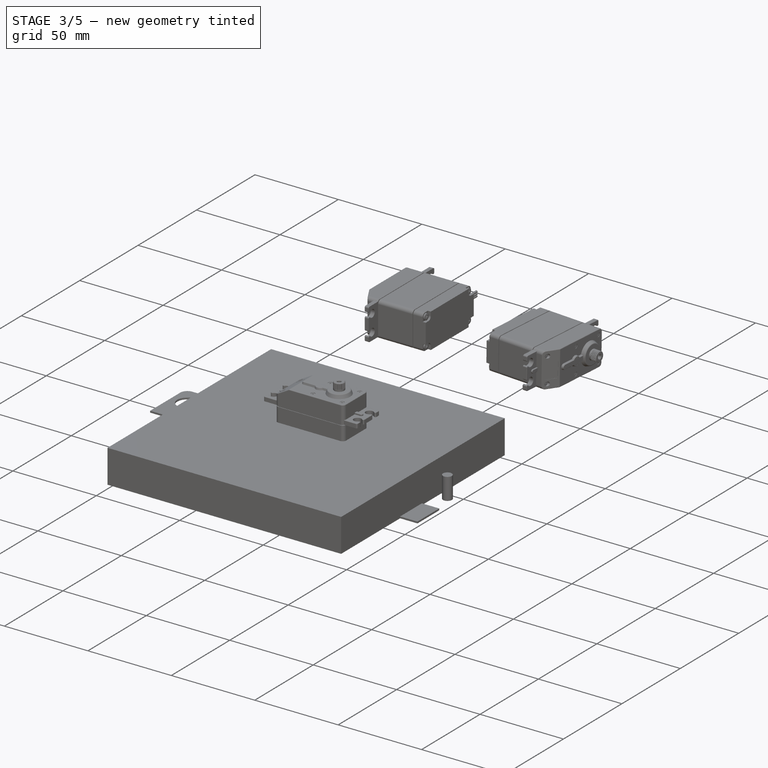
[diagram: stage 3 of 5 — iso view after this stage's code; geometry added in this stage tinted green]
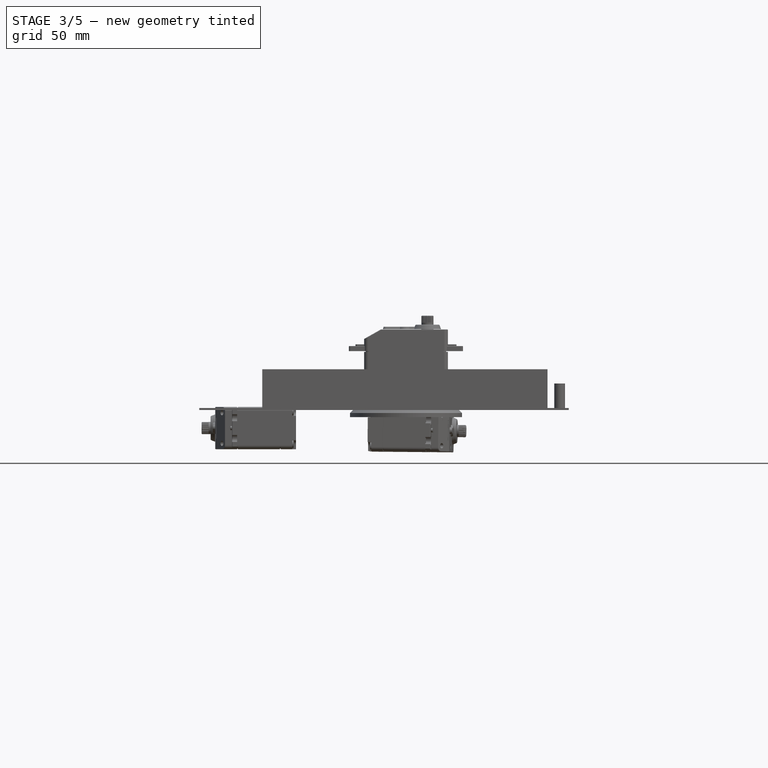
[diagram: stage 3 of 5 — front view after this stage's code; geometry added in this stage tinted green]
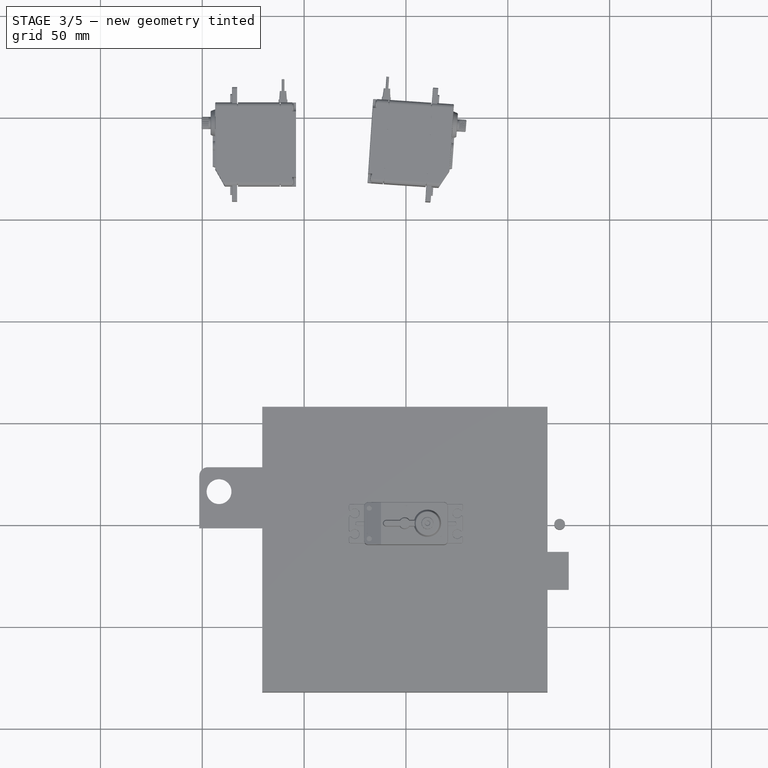
[diagram: stage 3 of 5 — top view after this stage's code; geometry added in this stage tinted green]
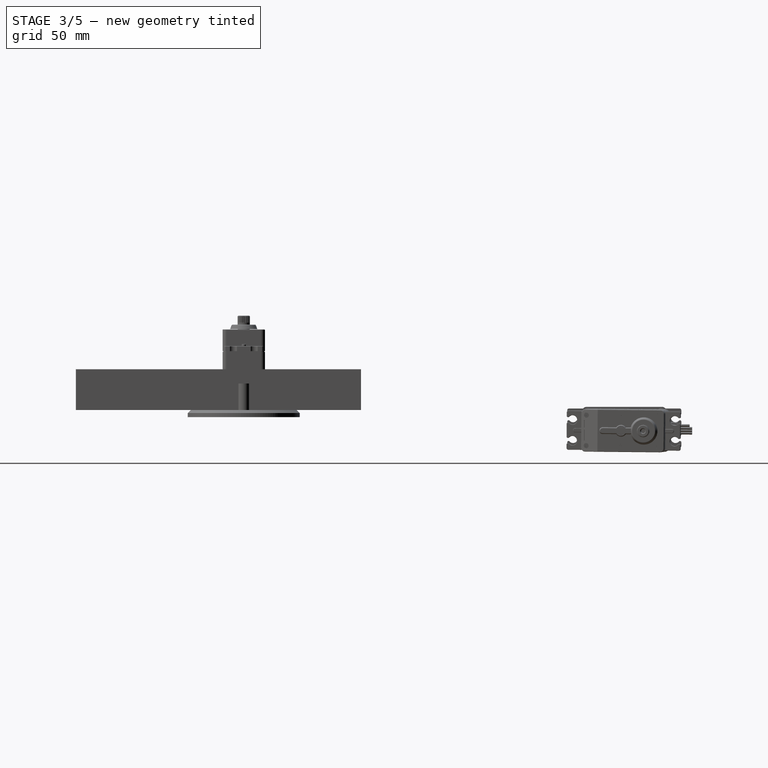
[diagram: stage 3 of 5 — right view after this stage's code; geometry added in this stage tinted green]
FEATURE [Sketcher::SketchObject] Sketch018  label="bottom-drills-sketch"
  ExternalGeometry = -> [Pocket007]
  FullyConstrained = false
  MapMode = 5
  Placement = pos=(0,1.3e-15,2.4) rot=(1,0,0;3.14159rad)
  Support = -> [Pocket007]
  sketch-geometry (8):
    g0: Circle CenterX=-18.1075 CenterY=7.95754 CenterZ=0 NormalX=0 NormalY=0 NormalZ=1 AngleXU=0 Radius=1.05
    g1: LineSegment StartX=-18.1075 StartY=7.95754 StartZ=0 EndX=18.1075 EndY=7.95754 EndZ=0
    g2: LineSegment StartX=18.1075 StartY=7.95754 StartZ=0 EndX=18.1075 EndY=-7.95754 EndZ=0
    g3: LineSegment StartX=18.1075 StartY=-7.95754 StartZ=0 EndX=-18.1075 EndY=-7.95754 EndZ=0
    g4: LineSegment StartX=-18.1075 StartY=-7.95754 StartZ=0 EndX=-18.1075 EndY=7.95754 EndZ=0
    g5: Circle CenterX=-18.1075 CenterY=-7.95754 CenterZ=0 NormalX=0 NormalY=0 NormalZ=1 AngleXU=0 Radius=1.05
    g6: Circle CenterX=18.1075 CenterY=7.95754 CenterZ=0 NormalX=0 NormalY=0 NormalZ=1 AngleXU=0 Radius=1.05
    g7: Circle CenterX=18.1075 CenterY=-7.95754 CenterZ=0 NormalX=0 NormalY=0 NormalZ=1 AngleXU=0 Radius=1.05
  constraints (18):
    c: Coincident(g0,g-3)
    c: Radius(g0) = 1.05
    c: Coincident(g1,g2)
    c: Coincident(g2,g3)
    c: Coincident(g3,g4)
    c: Coincident(g4,g1)
    c: Horizontal(g1)
    c: Horizontal(g3)
    c: Vertical(g2)
    c: Vertical(g4)
    c: Symmetric(g1,g2,g-1)
    c: Coincident(g1,g0)
    c: Equal(g6,g5)
    c: Equal(g5,g7)
    c: Equal(g7,g0)
    c: Coincident(g3,g5)
    c: Coincident(g6,g1)
    c: Coincident(g7,g2)
FEATURE [PartDesign::Pocket] Pocket008  label="bottom-drills"
  AllowMultiFace = false
  Length = 32
  Length2 = 100
  Placement = pos=(0,0,0) rot=(1,0,0;1.5708rad)
  Profile = -> Sketch003
  Type = 0
FEATURE [Sketcher::SketchObject] Sketch019  label="top-drills-1-sketch"
  ExternalGeometry = -> [Pocket008]
  FullyConstrained = false
  MapMode = 5
  Placement = pos=(0,8.7e-15,39.6) rot=(0,0,1;3.14159rad)
  Support = -> [Pocket008]
  sketch-geometry (9):
    g0: LineSegment StartX=-17.65 StartY=7.5 StartZ=0 EndX=-0.05 EndY=7.5 EndZ=0
    g1: LineSegment StartX=-0.05 StartY=7.5 StartZ=0 EndX=-0.05 EndY=-7.5 EndZ=0
    g2: LineSegment StartX=-0.05 StartY=-7.5 StartZ=0 EndX=-17.65 EndY=-7.5 EndZ=0
    g3: LineSegment StartX=-17.65 StartY=-7.5 StartZ=0 EndX=-17.65 EndY=7.5 EndZ=0
    g4: Circle CenterX=-0.05 CenterY=-7.5 CenterZ=0 NormalX=0 NormalY=0 NormalZ=1 AngleXU=0 Radius=1.25
    g5: Circle CenterX=-17.65 CenterY=-7.5 CenterZ=0 NormalX=0 NormalY=0 NormalZ=1 AngleXU=0 Radius=1.25
    g6: Circle CenterX=-0.05 CenterY=7.5 CenterZ=0 NormalX=0 NormalY=0 NormalZ=1 AngleXU=0 Radius=1.25
    g7: Circle CenterX=-17.65 CenterY=7.5 CenterZ=0 NormalX=0 NormalY=0 NormalZ=1 AngleXU=0 Radius=1.25
    g8: LineSegment StartX=-20.55 StartY=-10.4 StartZ=0 EndX=-17.65 EndY=-7.5 EndZ=0
  constraints (22):
    c: Coincident(g0,g1)
    c: Coincident(g1,g2)
    c: Coincident(g2,g3)
    c: Coincident(g3,g0)
    c: Horizontal(g0)
    c: Horizontal(g2)
    c: Vertical(g1)
    c: Vertical(g3)
    c: Symmetric(g2,g0,g-1)
    c: Equal(g4,g7)
    c: Equal(g7,g6)
    c: Equal(g6,g5)
    c: Radius(g4) = 1.25
    c: Coincident(g4,g1)
    c: Coincident(g6,g0)
    c: Coincident(g5,g2)
    c: Coincident(g7,g0)
    c: DistanceY(g-1,g1) = -7.5
    c: DistanceX(g2) = -17.6
    c: Coincident(g8,g-3)
    c: Coincident(g8,g2)
    c: Angle(g-3,g8) = 0.785398
FEATURE [PartDesign::Pocket] Pocket009  label="top-drills-1"
  AllowMultiFace = false
  Length = 0.2
  Length2 = 100
  Placement = pos=(0,0,0) rot=(1,0,0;1.5708rad)
  Profile = -> Sketch004
  Type = 0
FEATURE [Sketcher::SketchObject] Sketch020  label="potentiometer-1-sketch"
  FullyConstrained = false
  MapMode = 5
  Placement = pos=(20.55,0,0) rot=(0.707107,0,0.707107;3.14159rad)
  Support = -> [Pocket009]
  sketch-geometry (2):
    g0: Circle CenterX=14.175 CenterY=0 CenterZ=0 NormalX=0 NormalY=0 NormalZ=1 AngleXU=0 Radius=1.925
    g1: GeomPoint X=16.1 Y=0 Z=0
  constraints (5):
    c: PointOnObject(g0,g-1)
    c: Radius(g0) = 1.925
    c: PointOnObject(g1,g-1)
    c: PointOnObject(g1,g0)
    c: DistanceX(g-1,g1) = 16.1
FEATURE [PartDesign::Pocket] Pocket010  label="potentiometer-hole"
  AllowMultiFace = false
  Length = 2.2
  Length2 = 100
  Placement = pos=(0,0,0) rot=(1,0,0;1.5708rad)
  Profile = -> Sketch006
  Type = 0
FEATURE [Sketcher::SketchObject] Sketch021  label="potentiometer-cross-sketch"
  ExternalGeometry = -> [Pocket010]
  FullyConstrained = false
  MapMode = 5
  Placement = pos=(18.35,0,0) rot=(0.707107,0,0.707107;3.14159rad)
  Support = -> [Pocket010]
  sketch-geometry (12):
    g0: LineSegment StartX=13.675 StartY=1.65 StartZ=0 EndX=14.675 EndY=1.65 EndZ=0
    g1: LineSegment StartX=14.675 StartY=1.65 StartZ=0 EndX=14.675 EndY=0.5 EndZ=0
    g2: LineSegment StartX=14.675 StartY=-1.65 StartZ=0 EndX=13.675 EndY=-1.65 EndZ=0
    g3: LineSegment StartX=13.675 StartY=-1.65 StartZ=0 EndX=13.675 EndY=-0.5 EndZ=0
    g4: LineSegment StartX=12.525 StartY=0.5 StartZ=0 EndX=13.675 EndY=0.5 EndZ=0
    g5: LineSegment StartX=15.825 StartY=0.5 StartZ=0 EndX=15.825 EndY=-0.5 EndZ=0
    g6: LineSegment StartX=15.825 StartY=-0.5 StartZ=0 EndX=14.675 EndY=-0.5 EndZ=0
    g7: LineSegment StartX=12.525 StartY=-0.5 StartZ=0 EndX=12.525 EndY=0.5 EndZ=0
    g8: LineSegment StartX=14.675 StartY=0.5 StartZ=0 EndX=15.825 EndY=0.5 EndZ=0
    g9: LineSegment StartX=13.675 StartY=-0.5 StartZ=0 EndX=12.525 EndY=-0.5 EndZ=0
    g10: LineSegment StartX=13.675 StartY=0.5 StartZ=0 EndX=13.675 EndY=1.65 EndZ=0
    g11: LineSegment StartX=14.675 StartY=-0.5 StartZ=0 EndX=14.675 EndY=-1.65 EndZ=0
  constraints (30):
    c: Coincident(g0,g1)
    c: Coincident(g11,g2)
    c: Coincident(g2,g3)
    c: Coincident(g10,g0)
    c: Horizontal(g0)
    c: Horizontal(g2)
    c: Vertical(g1)
    c: Vertical(g3)
    c: Coincident(g8,g5)
    c: Coincident(g5,g6)
    c: Coincident(g9,g7)
    c: Coincident(g7,g4)
    c: Horizontal(g4)
    c: Horizontal(g6)
    c: Vertical(g5)
    c: Vertical(g7)
    c: Symmetric(g4,g5,g-3)
    c: Symmetric(g0,g11,g-3)
    c: Tangent(g4,g8)
    c: Tangent(g6,g9)
    c: Coincident(g3,g9)
    c: Coincident(g10,g4)
    c: Tangent(g3,g10)
    c: Coincident(g1,g8)
    c: Coincident(g11,g6)
    c: Tangent(g1,g11)
    c: Equal(g4,g10)
    c: Equal(g7,g0)
    c: DistanceX(g5,g4) = -3.3
    c: DistanceY(g5) = -1
FEATURE [PartDesign::Pocket] Pocket011  label="potentiometer-cross"
  AllowMultiFace = false
  Length = 1
  Length2 = 100
  Placement = pos=(0,0,0) rot=(1,0,0;1.5708rad)
  Profile = -> Sketch007
  Type = 0
FEATURE [Sketcher::SketchObject] Sketch023  label="top-left-2-drills-sketch"
  FullyConstrained = false
  MapMode = 5
  Placement = pos=(0,8.7e-15,39.6) rot=(0,0,1;3.14159rad)
  Support = -> [Pocket012]
  sketch-geometry (4):
    g0: Circle CenterX=18 CenterY=7.5 CenterZ=0 NormalX=0 NormalY=0 NormalZ=1 AngleXU=0 Radius=1.25
    g1: Circle CenterX=18 CenterY=-7.5 CenterZ=0 NormalX=0 NormalY=0 NormalZ=1 AngleXU=0 Radius=1.25
    g2: LineSegment StartX=18 StartY=7.5 StartZ=0 EndX=18 EndY=0 EndZ=0
    g3: LineSegment StartX=18 StartY=7.5 StartZ=0 EndX=19.25 EndY=7.5 EndZ=0
  constraints (10):
    c: Radius(g0) = 1.25
    c: Equal(g1,g0)
    c: Symmetric(g0,g1,g-1)
    c: Coincident(g2,g0)
    c: Vertical(g2)
    c: PointOnObject(g2,g-1)
    c: DistanceY(g2) = -7.5
    c: Horizontal(g3)
    c: Coincident(g3,g0)
    c: PointOnObject(g3,g0)
FEATURE [PartDesign::Pocket] Pocket013  label="top-left-2-drills"
  AllowMultiFace = false
  Length = 4.1
  Length2 = 100
  Placement = pos=(0,0,0) rot=(1,0,0;1.5708rad)
  Profile = -> Sketch009
  Type = 0
FEATURE [Sketcher::SketchObject] Sketch024  label="top-drills-cross-1-sketch"
  FullyConstrained = false
  MapMode = 5
  sketch-geometry (13):
    g0: Circle CenterX=0 CenterY=0 CenterZ=0 NormalX=0 NormalY=0 NormalZ=1 AngleXU=0 Radius=1.25
    g1: LineSegment StartX=-0.15 StartY=0.6 StartZ=0 EndX=0.15 EndY=0.6 EndZ=0
    g2: LineSegment StartX=0.15 StartY=0.6 StartZ=0 EndX=0.15 EndY=0.15 EndZ=0
    g3: LineSegment StartX=0.15 StartY=-0.6 StartZ=0 EndX=-0.15 EndY=-0.6 EndZ=0
    g4: LineSegment StartX=-0.15 StartY=-0.6 StartZ=0 EndX=-0.15 EndY=-0.15 EndZ=0
    g5: LineSegment StartX=-0.6 StartY=0.15 StartZ=0 EndX=-0.15 EndY=0.15 EndZ=0
    g6: LineSegment StartX=0.6 StartY=0.15 StartZ=0 EndX=0.6 EndY=-0.15 EndZ=0
    g7: LineSegment StartX=0.6 StartY=-0.15 StartZ=0 EndX=0.15 EndY=-0.15 EndZ=0
    g8: LineSegment StartX=-0.6 StartY=-0.15 StartZ=0 EndX=-0.6 EndY=0.15 EndZ=0
    g9: LineSegment StartX=0.15 StartY=0.15 StartZ=0 EndX=0.6 EndY=0.15 EndZ=0
    g10: LineSegment StartX=-0.15 StartY=-0.15 StartZ=0 EndX=-0.6 EndY=-0.15 EndZ=0
    g11: LineSegment StartX=-0.15 StartY=0.15 StartZ=0 EndX=-0.15 EndY=0.6 EndZ=0
    g12: LineSegment StartX=0.15 StartY=-0.15 StartZ=0 EndX=0.15 EndY=-0.6 EndZ=0
  constraints (32):
    c: Coincident(g0,g-1)
    c: Radius(g0) = 1.25
    c: Coincident(g1,g2)
    c: Coincident(g12,g3)
    c: Coincident(g3,g4)
    c: Coincident(g11,g1)
    c: Horizontal(g1)
    c: Horizontal(g3)
    c: Vertical(g2)
    c: Vertical(g4)
    c: Symmetric(g1,g12,g-1)
    c: Coincident(g9,g6)
    c: Coincident(g6,g7)
    c: Coincident(g10,g8)
    c: Coincident(g8,g5)
    c: Horizontal(g5)
    c: Horizontal(g7)
    c: Vertical(g6)
    c: Vertical(g8)
    c: Symmetric(g5,g6,g-1)
    c: Tangent(g5,g9)
    c: Tangent(g7,g10)
    c: Coincident(g4,g10)
    c: Coincident(g11,g5)
    c: Tangent(g4,g11)
    c: Coincident(g2,g9)
    c: Coincident(g12,g7)
    c: Tangent(g2,g12)
    c: Equal(g5,g11)
    c: Equal(g8,g1)
    c: DistanceX(g5,g6) = 1.2
    c: DistanceX(g1) = 0.3
FEATURE [PartDesign::Pad] Pad008  label="top-drills-cross-1"
  AllowMultiFace = false
  Direction = (1,1,1)
  Length = 10
  Length2 = 100
  Profile = -> Sketch010
  Type = 0
FEATURE [Part::Feature] Pad002001  label="top-drills-cross-01"
  Placement = pos=(17.65,7.5,39.2) rot=(0,0,1;0rad)
  shape: bbox 2.5 x 2.5 x 11 mm, 16 faces (baked)
FEATURE [Part::Feature] Pad002001001  label="top-drills-cross-002"
  Placement = pos=(17.65,-7.5,39.2) rot=(0,0,1;0rad)
  shape: bbox 2.5 x 2.5 x 11 mm, 16 faces (baked)
FEATURE [Part::Feature] Pad002001002  label="top-drills-cross-003"
  Placement = pos=(0.05,7.5,39.2) rot=(0,0,1;0rad)
  shape: bbox 2.5 x 2.5 x 11 mm, 16 faces (baked)
FEATURE [Part::Feature] Pad002001003  label="top-drills-cross-004"
  Placement = pos=(0.05,-7.5,39.2) rot=(0,0,1;0rad)
  shape: bbox 2.5 x 2.5 x 11 mm, 16 faces (baked)
FEATURE [Part::Feature] Pad002001003001  label="top-drills-cross-005"
  Placement = pos=(-18,7.5,35.2) rot=(0,0,1;0rad)
  shape: bbox 2.5 x 2.5 x 11 mm, 16 faces (baked)
FEATURE [Part::Feature] Pad002001003002  label="top-drills-cross-006"
  Placement = pos=(-18,-7.5,35.2) rot=(0,0,1;0rad)
  shape: bbox 2.5 x 2.5 x 11 mm, 16 faces (baked)
FEATURE [Part::MultiFuse] Fusion004  label="union-of-top-crosses"
  Shapes = -> [Pad002001,Pad002001003001,Pad002001003002,Pad002001002,Pad002001003,Pad002001001]
FEATURE [Part::Cut] Cut002  label="servo-body-final-1"
  Base = -> Pocket013
  Tool = -> Fusion004
FEATURE [Sketcher::SketchObject] Sketch055  label="servo-top-1-sketch003"
  FullyConstrained = false
  MapMode = 5
  sketch-geometry (10):
    g0: LineSegment StartX=-9.03485 StartY=1.65 StartZ=0 EndX=-9.03485 EndY=-1.65 EndZ=0
    g1: ArcOfCircle CenterX=-9.03485 CenterY=0 CenterZ=0 NormalX=0 NormalY=0 NormalZ=1 AngleXU=0 Radius=1.65 StartAngle=1.5708 EndAngle=4.71239
    g2: LineSegment StartX=-9.03485 StartY=1.65 StartZ=0 EndX=-2.38485 EndY=1.65 EndZ=0
    g3: LineSegment StartX=-9.03485 StartY=-1.65 StartZ=0 EndX=-2.38485 EndY=-1.65 EndZ=0
    g4: LineSegment StartX=11.1848 StartY=1.65 StartZ=0 EndX=11.1848 EndY=-1.65 EndZ=0
    g5: ArcOfCircle CenterX=0 CenterY=0 CenterZ=0 NormalX=0 NormalY=0 NormalZ=1 AngleXU=0 Radius=2.9 StartAngle=3.74684 EndAngle=5.67794
    g6: LineSegment StartX=2.38485 StartY=1.65 StartZ=0 EndX=11.1848 EndY=1.65 EndZ=0
    g7: ArcOfCircle CenterX=0 CenterY=0 CenterZ=0 NormalX=0 NormalY=0 NormalZ=1 AngleXU=0 Radius=2.9 StartAngle=0.605247 EndAngle=2.53635
    g8: LineSegment StartX=2.38485 StartY=-1.65 StartZ=0 EndX=11.1848 EndY=-1.65 EndZ=0
    g9: Circle CenterX=11.1848 CenterY=0 CenterZ=0 NormalX=0 NormalY=0 NormalZ=1 AngleXU=0 Radius=6.7
  constraints (29):
    c: Vertical(g0)
    c: Symmetric(g0,g0,g-1)
    c: Coincident(g1,g0)
    c: Coincident(g0,g1)
    c: PointOnObject(g1,g0)
    c: Horizontal(g2)
    c: Coincident(g2,g0)
    c: Horizontal(g3)
    c: Coincident(g3,g0)
    c: Coincident(g6,g4)
    c: Vertical(g4)
    c: Coincident(g4,g8)
    c: Tangent(g2,g6)
    c: PointOnObject(g7,g2)
    c: Equal(g5,g7)
    c: Coincident(g7,g6)
    c: Coincident(g5,g7)
    c: Coincident(g3,g5)
    c: Coincident(g8,g5)
    c: Tangent(g3,g8)
    c: Coincident(g7,g2)
    c: Coincident(g5,g-1)
    c: DistanceY(g0) = -3.3
    c: DistanceX(g0,g2) = 6.65
    c: Radius(g7) = 2.9
    c: Radius(g9) = 6.7
    c: PointOnObject(g9,g-1)
    c: PointOnObject(g9,g4)
    c: DistanceX(g6,g9) = 8.8
FEATURE [Sketcher::SketchObject] Sketch056  label="servo-top-1-sketch004"
  FullyConstrained = false
  MapMode = 5
  Placement = pos=(0,0,1.16) rot=(0,0,1;0rad)
  sketch-geometry (10):
    g0: LineSegment StartX=-8.99374 StartY=1.3 StartZ=0 EndX=-8.99374 EndY=-1.3 EndZ=0
    g1: ArcOfCircle CenterX=-8.99374 CenterY=0 CenterZ=0 NormalX=0 NormalY=0 NormalZ=1 AngleXU=0 Radius=1.3 StartAngle=1.5708 EndAngle=4.71239
    g2: LineSegment StartX=-8.99374 StartY=1.3 StartZ=0 EndX=-2.19374 EndY=1.3 EndZ=0
    g3: LineSegment StartX=-8.99374 StartY=-1.3 StartZ=0 EndX=-2.19374 EndY=-1.3 EndZ=0
    g4: LineSegment StartX=11.1937 StartY=1.3 StartZ=0 EndX=11.1937 EndY=-1.3 EndZ=0
    g5: ArcOfCircle CenterX=0 CenterY=0 CenterZ=0 NormalX=0 NormalY=0 NormalZ=1 AngleXU=0 Radius=2.55 StartAngle=3.67655 EndAngle=5.74823
    g6: LineSegment StartX=2.19374 StartY=1.3 StartZ=0 EndX=11.1937 EndY=1.3 EndZ=0
    g7: ArcOfCircle CenterX=0 CenterY=0 CenterZ=0 NormalX=0 NormalY=0 NormalZ=1 AngleXU=0 Radius=2.55 StartAngle=0.534957 EndAngle=2.60664
    g8: LineSegment StartX=2.19374 StartY=-1.3 StartZ=0 EndX=11.1937 EndY=-1.3 EndZ=0
    g9: Circle CenterX=11.1937 CenterY=0 CenterZ=0 NormalX=0 NormalY=0 NormalZ=1 AngleXU=0 Radius=6.7
  constraints (29):
    c: Vertical(g0)
    c: Symmetric(g0,g0,g-1)
    c: Coincident(g1,g0)
    c: Coincident(g0,g1)
    c: PointOnObject(g1,g0)
    c: Horizontal(g2)
    c: Coincident(g2,g0)
    c: Horizontal(g3)
    c: Coincident(g3,g0)
    c: Coincident(g6,g4)
    c: Vertical(g4)
    c: Coincident(g4,g8)
    c: Tangent(g2,g6)
    c: PointOnObject(g7,g2)
    c: Equal(g5,g7)
    c: Coincident(g7,g6)
    c: Coincident(g5,g7)
    c: Coincident(g3,g5)
    c: Coincident(g8,g5)
    c: Tangent(g3,g8)
    c: Coincident(g7,g2)
    c: Coincident(g5,g-1)
    c: DistanceY(g0) = -2.6
    c: DistanceX(g0,g2) = 6.8
    c: Radius(g7) = 2.55
    c: Radius(g9) = 6.7
    c: PointOnObject(g9,g-1)
    c: PointOnObject(g9,g4)
    c: DistanceX(g6,g9) = 9
FEATURE [Part::Loft] Loft003  label="servo-top-002"
  Closed = false
  MaxDegree = 5
  Ruled = false
  Sections = -> [Sketch055,Sketch056]
  Solid = true
FEATURE [Sketcher::SketchObject] Sketch057  label="shaft-base-1-sketch003"
  FullyConstrained = false
  MapMode = 5
  sketch-geometry (1):
    g0: Circle CenterX=0 CenterY=0 CenterZ=0 NormalX=0 NormalY=0 NormalZ=1 AngleXU=0 Radius=6.7
  constraints (2):
    c: Radius(g0) = 6.7
    c: Coincident(g-1,g0)
FEATURE [Sketcher::SketchObject] Sketch058  label="shaft-base-1-sketch004"
  FullyConstrained = false
  MapMode = 5
  Placement = pos=(0,0,2.2) rot=(0,0,1;0rad)
  sketch-geometry (1):
    g0: Circle CenterX=0 CenterY=0 CenterZ=0 NormalX=0 NormalY=0 NormalZ=1 AngleXU=0 Radius=5.85
  constraints (2):
    c: Radius(g0) = 5.85
    c: Coincident(g-1,g0)
FEATURE [Part::Loft] Loft004  label="Shaft-base-002"
  Closed = false
  MaxDegree = 5
  Placement = pos=(11.1848,0,0) rot=(0,0,1;0rad)
  Ruled = false
  Sections = -> [Sketch057,Sketch058]
  Solid = true
FEATURE [Part::MultiFuse] Fusion013  label="top-part-003"
  Shapes = -> [Loft003,Loft004]
FEATURE [PartDesign::Fillet] Fillet003005006002
  Base = -> Fusion013 [Edge25]
  Radius = 0.5
  SupportTransform = false
FEATURE [Part::Fillet] Fillet003005006003  label="top-part-004"
  Base = -> Fillet003005006002
  Edges = 8 edges r=0.1: [Edge6,Edge17,Edge19,Edge20,Edge21,Edge22,Edge23,Edge24]
FEATURE [App::DocumentObjectGroup] Group006  label="top-part-src001"
  Group = -> [Fusion013,Fillet003005006003]
FEATURE [Part::Feature] Fillet003005006004  label="top-part001"
  Placement = pos=(-0.634848,0,39.7) rot=(0,0,1;0rad)
  shape: bbox 28.82 x 13.4 x 14.16 mm, 24 faces (baked)
FEATURE [Sketcher::SketchObject] Sketch059  label="ears-body-1-sketch001"
  FullyConstrained = false
  MapMode = 5
  sketch-geometry (4):
    g0: LineSegment StartX=-28 StartY=9.6 StartZ=0 EndX=28 EndY=9.6 EndZ=0
    g1: LineSegment StartX=28 StartY=9.6 StartZ=0 EndX=28 EndY=-9.6 EndZ=0
    g2: LineSegment StartX=28 StartY=-9.6 StartZ=0 EndX=-28 EndY=-9.6 EndZ=0
    g3: LineSegment StartX=-28 StartY=-9.6 StartZ=0 EndX=-28 EndY=9.6 EndZ=0
  constraints (11):
    c: Coincident(g0,g1)
    c: Coincident(g1,g2)
    c: Coincident(g2,g3)
    c: Coincident(g3,g0)
    c: Horizontal(g0)
    c: Horizontal(g2)
    c: Vertical(g1)
    c: Vertical(g3)
    c: Symmetric(g0,g1,g-1)
    c: DistanceX(g0) = 56
    c: DistanceY(g3) = 19.2
FEATURE [PartDesign::Pad] Pad002001003004001007013  label="ears-body-002"
  AllowMultiFace = false
  Direction = (1,1,1)
  Length = 2.5
  Length2 = 100
  Profile = -> Sketch019
  Type = 0
FEATURE [Sketcher::SketchObject] Sketch060  label="right-ears-sketch001"
  FullyConstrained = false
  MapMode = 5
  Placement = pos=(0,0,2.5) rot=(0,0,1;0rad)
  Support = -> [Pad002001003004001007013]
  sketch-geometry (9):
    g0: ArcOfCircle CenterX=25.15 CenterY=5.1 CenterZ=0 NormalX=0 NormalY=0 NormalZ=1 AngleXU=0 Radius=2.25 StartAngle=0.605154 EndAngle=5.67803
    g1: LineSegment StartX=22.9 StartY=5.1 StartZ=0 EndX=25.15 EndY=5.1 EndZ=0
    g2: LineSegment StartX=27.0004 StartY=6.38 StartZ=0 EndX=29.0004 EndY=6.38 EndZ=0
    g3: LineSegment StartX=29.0004 StartY=6.38 StartZ=0 EndX=29.0004 EndY=3.82 EndZ=0
    g4: LineSegment StartX=29.0004 StartY=3.82 StartZ=0 EndX=27.0004 EndY=3.82 EndZ=0
    g5: ArcOfCircle CenterX=25.15 CenterY=-5.1 CenterZ=0 NormalX=0 NormalY=0 NormalZ=1 AngleXU=0 Radius=2.25 StartAngle=0.605154 EndAngle=5.67803
    g6: LineSegment StartX=27.0004 StartY=-3.82 StartZ=0 EndX=29.0004 EndY=-3.82 EndZ=0
    g7: LineSegment StartX=29.0004 StartY=-3.82 StartZ=0 EndX=29.0004 EndY=-6.38 EndZ=0
    g8: LineSegment StartX=29.0004 StartY=-6.38 StartZ=0 EndX=27.0004 EndY=-6.38 EndZ=0
  constraints (28):
    c: Radius(g0) = 2.25
    c: DistanceX(g0) = 25.15
    c: DistanceY(g0) = 5.1
    c: Horizontal(g1)
    c: PointOnObject(g1,g0)
    c: Coincident(g1,g0)
    c: Coincident(g2,g3)
    c: Coincident(g3,g4)
    c: Horizontal(g2)
    c: Horizontal(g4)
    c: Vertical(g3)
    c: Coincident(g0,g2)
    c: Coincident(g0,g4)
    c: Symmetric(g0,g0,g1)
    c: DistanceY(g3) = -2.56
    c: DistanceX(g2) = 2
    c: Symmetric(g5,g0,g-1)
    c: Equal(g0,g5)
    c: Coincident(g6,g7)
    c: Coincident(g7,g8)
    c: Horizontal(g6)
    c: Horizontal(g8)
    c: Vertical(g7)
    c: Coincident(g6,g5)
    c: Coincident(g8,g5)
    c: Symmetric(g5,g0,g-1)
    c: Symmetric(g0,g5,g-1)
    c: Symmetric(g6,g3,g-1)
FEATURE [PartDesign::Pocket] Pocket027  label="right-ear001"
  AllowMultiFace = false
  Length = 5
  Length2 = 100
  Profile = -> Sketch020
  Type = 1
FEATURE [PartDesign::Mirrored] Mirrored003  label="ears-block-005"
  MirrorPlane = -> Sketch060 [V_Axis]
  Originals = -> [Pocket027]
FEATURE [Sketcher::SketchObject] Sketch061  label="ears-block-2-sketch001"
  FullyConstrained = false
  MapMode = 5
  Placement = pos=(0,0,2.5) rot=(0,0,1;0rad)
  Support = -> [Mirrored003]
  sketch-geometry (6):
    g0: ArcOfCircle CenterX=-23.8 CenterY=0 CenterZ=0 NormalX=0 NormalY=0 NormalZ=1 AngleXU=0 Radius=1 StartAngle=1.57079 EndAngle=4.7124
    g1: ArcOfCircle CenterX=23.8 CenterY=0 CenterZ=0 NormalX=0 NormalY=0 NormalZ=1 AngleXU=0 Radius=1 StartAngle=4.71238 EndAngle=7.85399
    g2: LineSegment StartX=-23.8 StartY=-1 StartZ=0 EndX=23.8 EndY=-1 EndZ=0
    g3: LineSegment StartX=-23.8 StartY=1 StartZ=0 EndX=23.8 EndY=1 EndZ=0
    g4: GeomPoint X=-24.8 Y=0 Z=0
    g5: GeomPoint X=24.8 Y=0 Z=0
  constraints (18):
    c: Tangent(g0,g2)
    c: Tangent(g0,g3)
    c: Tangent(g1,g2)
    c: Tangent(g1,g3)
    c: Coincident(g0,g3)
    c: Coincident(g0,g2)
    c: Coincident(g2,g1)
    c: Coincident(g3,g1)
    c: Horizontal(g2)
    c: Equal(g0,g1)
    c: Symmetric(g0,g1,g-2)
    c: PointOnObject(g0,g-1)
    c: DistanceY(g0,g0) = 2
    c: PointOnObject(g4,g-1)
    c: PointOnObject(g4,g0)
    c: PointOnObject(g5,g-1)
    c: PointOnObject(g5,g1)
    c: DistanceX(g4,g5) = 49.6
FEATURE [PartDesign::Pad] Pad002001003004001007014  label="ears-block-006"
  AllowMultiFace = false
  Direction = (1,1,1)
  Length = 0.86
  Length2 = 100
  Profile = -> Sketch021
  Type = 0
FEATURE [Sketcher::SketchObject] Sketch062  label="wire-holder-base-sketch001"
  FullyConstrained = false
  MapMode = 5
  Placement = pos=(0,0,0) rot=(0.57735,0.57735,0.57735;2.0944rad)
  sketch-geometry (4):
    g0: LineSegment StartX=-3.4 StartY=2.15 StartZ=0 EndX=3.4 EndY=2.15 EndZ=0
    g1: LineSegment StartX=3.4 StartY=2.15 StartZ=0 EndX=3.4 EndY=-2.15 EndZ=0
    g2: LineSegment StartX=3.4 StartY=-2.15 StartZ=0 EndX=-3.4 EndY=-2.15 EndZ=0
    g3: LineSegment StartX=-3.4 StartY=-2.15 StartZ=0 EndX=-3.4 EndY=2.15 EndZ=0
  constraints (11):
    c: Coincident(g0,g1)
    c: Coincident(g1,g2)
    c: Coincident(g2,g3)
    c: Coincident(g3,g0)
    c: Horizontal(g0)
    c: Horizontal(g2)
    c: Vertical(g1)
    c: Vertical(g3)
    c: Symmetric(g0,g1,g-1)
    c: DistanceY(g1) = -4.3
    c: DistanceX(g0) = 6.8
FEATURE [PartDesign::Pad] Pad002001003004001007015  label="wire-holder-base001"
  AllowMultiFace = false
  Direction = (1,1,1)
  Length = 1.5
  Length2 = 100
  Placement = pos=(0,0,0) rot=(0.57735,0.57735,0.57735;2.0944rad)
  Profile = -> Sketch022
  Type = 0
FEATURE [Sketcher::SketchObject] Sketch063  label="wire-holder-body-1-sketch003"
  FullyConstrained = false
  MapMode = 5
  Placement = pos=(0,0,0) rot=(0.57735,0.57735,0.57735;2.0944rad)
  sketch-geometry (4):
    g0: LineSegment StartX=-2.975 StartY=1.85 StartZ=0 EndX=2.975 EndY=1.85 EndZ=0
    g1: LineSegment StartX=2.975 StartY=1.85 StartZ=0 EndX=2.975 EndY=-1.85 EndZ=0
    g2: LineSegment StartX=2.975 StartY=-1.85 StartZ=0 EndX=-2.975 EndY=-1.85 EndZ=0
    g3: LineSegment StartX=-2.975 StartY=-1.85 StartZ=0 EndX=-2.975 EndY=1.85 EndZ=0
  constraints (11):
    c: Coincident(g0,g1)
    c: Coincident(g1,g2)
    c: Coincident(g2,g3)
    c: Coincident(g3,g0)
    c: Horizontal(g0)
    c: Horizontal(g2)
    c: Vertical(g1)
    c: Vertical(g3)
    c: Symmetric(g0,g1,g-1)
    c: DistanceX(g0) = 5.95
    c: DistanceY(g3) = 3.7
FEATURE [Sketcher::SketchObject] Sketch064  label="wire-holder-body-1-sketch004"
  FullyConstrained = false
  MapMode = 5
  Placement = pos=(4.2,0,0) rot=(0.57735,0.57735,0.57735;2.0944rad)
  sketch-geometry (4):
    g0: LineSegment StartX=-2.7 StartY=1.55 StartZ=0 EndX=2.7 EndY=1.55 EndZ=0
    g1: LineSegment StartX=2.7 StartY=1.55 StartZ=0 EndX=2.7 EndY=-1.55 EndZ=0
    g2: LineSegment StartX=2.7 StartY=-1.55 StartZ=0 EndX=-2.7 EndY=-1.55 EndZ=0
    g3: LineSegment StartX=-2.7 StartY=-1.55 StartZ=0 EndX=-2.7 EndY=1.55 EndZ=0
  constraints (11):
    c: Coincident(g0,g1)
    c: Coincident(g1,g2)
    c: Coincident(g2,g3)
    c: Coincident(g3,g0)
    c: Horizontal(g0)
    c: Horizontal(g2)
    c: Vertical(g1)
    c: Vertical(g3)
    c: Symmetric(g0,g1,g-1)
    c: DistanceX(g0) = 5.4
    c: DistanceY(g1) = -3.1
FEATURE [Part::Loft] Loft005  label="wire-holder-body-005"
  Closed = false
  MaxDegree = 5
  Ruled = false
  Sections = -> [Sketch063,Sketch064]
  Solid = true
FEATURE [Sketcher::SketchObject] Sketch065  label="wire-holes-sketch001"
  FullyConstrained = false
  MapMode = 5
  Placement = pos=(4.2,-7e-16,0) rot=(0.57735,0.57735,0.57735;2.0944rad)
  Support = -> [Loft005]
  sketch-geometry (8):
    g0: ArcOfCircle CenterX=-1.2 CenterY=0 CenterZ=0 NormalX=0 NormalY=0 NormalZ=1 AngleXU=0 Radius=0.7 StartAngle=0.666946 EndAngle=5.61624
    g1: LineSegment StartX=-0.65 StartY=0.433013 StartZ=0 EndX=-0.55 EndY=0.433013 EndZ=0
    g2: ArcOfCircle CenterX=0 CenterY=0 CenterZ=0 NormalX=0 NormalY=0 NormalZ=1 AngleXU=0 Radius=0.7 StartAngle=0.666946 EndAngle=2.47465
    g3: LineSegment StartX=0.55 StartY=0.433013 StartZ=0 EndX=0.65 EndY=0.433013 EndZ=0
    g4: LineSegment StartX=-0.65 StartY=-0.433013 StartZ=0 EndX=-0.55 EndY=-0.433013 EndZ=0
    g5: ArcOfCircle CenterX=0 CenterY=0 CenterZ=0 NormalX=0 NormalY=0 NormalZ=1 AngleXU=0 Radius=0.7 StartAngle=3.80854 EndAngle=5.61624
    g6: ArcOfCircle CenterX=1.2 CenterY=0 CenterZ=0 NormalX=0 NormalY=0 NormalZ=1 AngleXU=0 Radius=0.7 StartAngle=3.80854 EndAngle=8.75783
    g7: LineSegment StartX=0.55 StartY=-0.433013 StartZ=0 EndX=0.65 EndY=-0.433013 EndZ=0
  constraints (26):
    c: PointOnObject(g0,g-1)
    c: Horizontal(g1)
    c: Coincident(g1,g0)
    c: Coincident(g3,g6)
    c: Coincident(g1,g2)
    c: Coincident(g3,g2)
    c: Tangent(g1,g3)
    c: Horizontal(g4)
    c: Symmetric(g0,g4,g-1)
    c: PointOnObject(g0,g4)
    c: PointOnObject(g6,g4)
    c: Coincident(g4,g5)
    c: Coincident(g7,g5)
    c: Tangent(g4,g7)
    c: PointOnObject(g7,g6)
    c: Equal(g1,g4)
    c: Equal(g4,g3)
    c: Equal(g3,g7)
    c: Equal(g5,g0)
    c: Equal(g0,g2)
    c: Equal(g2,g6)
    c: Radius(g6) = 0.7
    c: DistanceX(g0,g6) = 2.4
    c: Coincident(g5,g-1)
    c: Coincident(g2,g-1)
    c: DistanceX(g1) = 0.1
FEATURE [PartDesign::Pocket] Pocket028  label="wire-holder-body-006"
  AllowMultiFace = false
  Length = 5
  Length2 = 100
  Profile = -> Sketch025
  Type = 1
FEATURE [Part::Feature] Pocket029  label="wire-holder-body-2-copy001"
  Placement = pos=(1.5,0,0) rot=(0,0,1;0rad)
  shape: bbox 4.2 x 5.95 x 3.7 mm, 14 faces (baked)
FEATURE [Part::MultiFuse] Fusion014  label="wire-holder-body-007"
  Shapes = -> [Pad002001003004001007015,Pocket029]
FEATURE [Part::Fillet] Fillet003005006005  label="wire-holder-body-008"
  Base = -> Fusion014
  Edges = 8 edges r=0.5: [Edge1,Edge2,Edge5,Edge8,Edge17,Edge18,Edge20,Edge22]
FEATURE [App::DocumentObjectGroup] Group008  label="wire-holder-src001"
  Group = -> [Pad002001003004001007015,Loft005,Pocket028,Pocket029,Fusion014,Fillet003005006005]
FEATURE [Part::Feature] Fillet003005006006  label="wire-holder001"
  Placement = pos=(20.55,0,6.35) rot=(0,0,1;0rad)
  shape: bbox 5.992 x 6.8 x 4.3 mm, 28 faces (baked)
FEATURE [Part::Fillet] Fillet003005006007
  Base = -> Pad002001003004001007014
  Edges = 4 edges r=0.8: [Edge33,Edge34,Edge69,Edge71]
FEATURE [Part::Fillet] Fillet003005006008
  Base = -> Fillet003005006007
  Edges = 16 edges r=0.6: [Edge37,Edge39,Edge41,Edge43,Edge44,Edge46,Edge49,Edge51,Edge53,Edge55,Edge57,Edge59,Edge60,Edge62,Edge65,Edge67]
FEATURE [Part::Fillet] Fillet003005006009  label="ears-block-007"
  Base = -> Fillet003005006008
  Edges = 1 edges r=0.2: [Edge36]
FEATURE [Part::Fillet] Fillet003005006010  label="ears-block-008"
  Base = -> Fillet003005006009
  Edges = 1 edges r=0.2: [Edge132]
FEATURE [App::DocumentObjectGroup] Group007  label="ears-src001"
  Group = -> [Pad002001003004001007013,Pocket027,Mirrored003,Pad002001003004001007014,Fillet003005006009,Fillet003005006010]
FEATURE [Part::Feature] Fillet003005006011  label="ears001"
  Placement = pos=(0,0,28.9) rot=(0,0,1;0rad)
  shape: bbox 56.13 x 19.33 x 3.36 mm, 91 faces (baked)
FEATURE [Sketcher::SketchObject] Sketch066  label="shaft-body-sketch001"
  FullyConstrained = false
  MapMode = 5
  sketch-geometry (1):
    g0: Circle CenterX=0 CenterY=0 CenterZ=0 NormalX=0 NormalY=0 NormalZ=1 AngleXU=0 Radius=3
  constraints (2):
    c: Coincident(g0,g-1)
    c: Radius(g0) = 3
FEATURE [PartDesign::Pad] Pad002001003004001007016  label="shaft-body001"
  AllowMultiFace = false
  Direction = (1,1,1)
  Length = 4.4
  Length2 = 100
  Profile = -> Sketch026
  Type = 0
FEATURE [Sketcher::SketchObject] Sketch067  label="shaft-body-2-sketch001"
  FullyConstrained = false
  MapMode = 5
  Placement = pos=(0,0,4.4) rot=(0,0,1;0rad)
  Support = -> [Pad002001003004001007016]
  sketch-geometry (1):
    g0: Circle CenterX=0 CenterY=0 CenterZ=0 NormalX=0 NormalY=0 NormalZ=1 AngleXU=0 Radius=1.1
  constraints (2):
    c: Coincident(g0,g-1)
    c: Radius(g0) = 1.1
FEATURE [PartDesign::Pocket] Pocket030  label="shaft-body-004"
  AllowMultiFace = false
  Length = 5
  Length2 = 100
  Profile = -> Sketch027
  Type = 1
FEATURE [PartDesign::Chamfer] Chamfer001003  label="shaft-body-005"
  Angle = 45
  Base = -> Pocket030 [Edge3]
  ChamferType = 0
  FlipDirection = false
  Size = 0.3
  Size2 = 1
  SupportTransform = false
FEATURE [Sketcher::SketchObject] Sketch068  label="shaft-tooth-sketch001"
  FullyConstrained = false
  MapMode = 5
  Placement = pos=(0,0,4.4) rot=(0,0,1;0rad)
  Support = -> [Chamfer001003]
  sketch-geometry (3):
    g0: LineSegment StartX=-0.2 StartY=3 StartZ=0 EndX=0 EndY=2.8 EndZ=0
    g1: LineSegment StartX=0.2 StartY=3 StartZ=0 EndX=0 EndY=2.8 EndZ=0
    g2: LineSegment StartX=-0.2 StartY=3 StartZ=0 EndX=0.2 EndY=3 EndZ=0
  constraints (8):
    c: Horizontal(g2)
    c: Coincident(g2,g0)
    c: Coincident(g2,g1)
    c: Symmetric(g0,g1,g-2)
    c: DistanceX(g2) = 0.4
    c: Coincident(g0,g1)
    c: PointOnObject(g0,g-2)
    c: DistanceY(g0,g1) = 0.2
FEATURE [PartDesign::Pocket] Pocket031  label="shaft-tooth001"
  AllowMultiFace = false
  Length = 3.4
  Length2 = 100
  Profile = -> Sketch028
  Type = 0
FEATURE [PartDesign::PolarPattern] PolarPattern001006  label="shaft-teeth001"
  Angle = 360
  Axis = -> Sketch068 [N_Axis]
  Occurrences = 28
  Originals = -> [Pocket031]
FEATURE [PartDesign::Chamfer] Chamfer001004  label="shaft-final001"
  Angle = 45
  Base = -> PolarPattern001006 [Edge286]
  ChamferType = 0
  FlipDirection = false
  Size = 0.3
  Size2 = 1
  SupportTransform = false
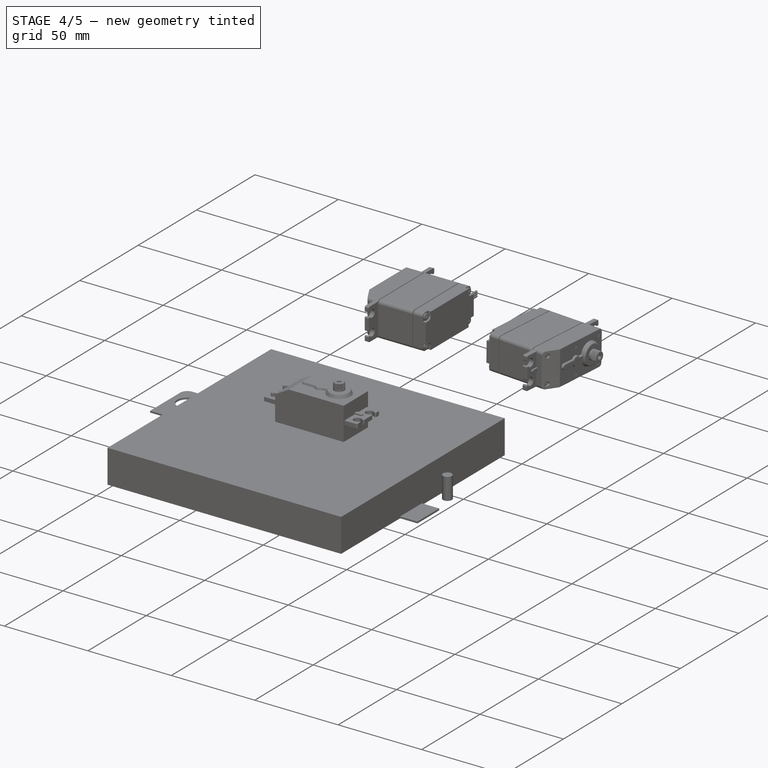
[diagram: stage 4 of 5 — iso view after this stage's code; geometry added in this stage tinted green]
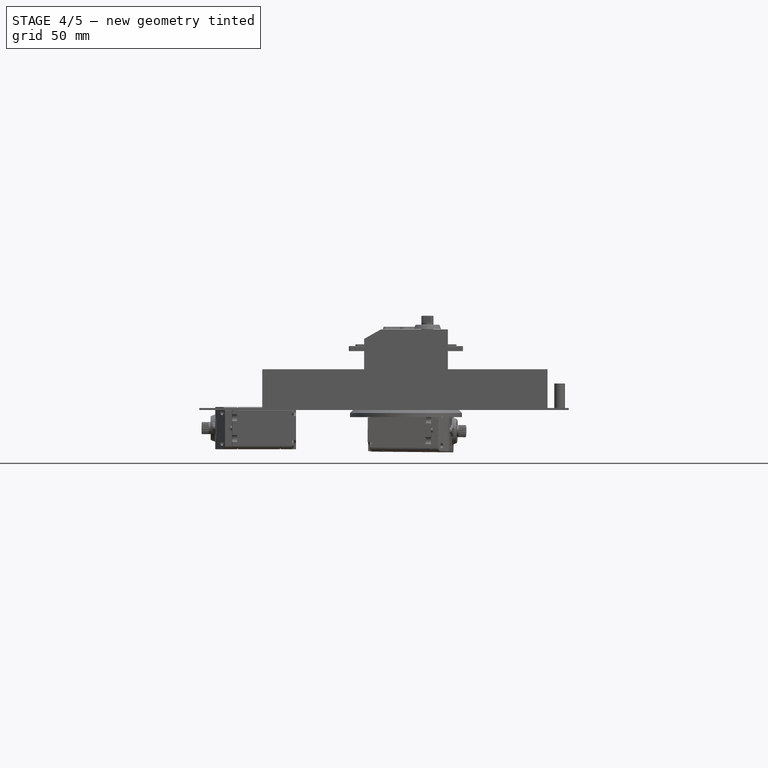
[diagram: stage 4 of 5 — front view after this stage's code; geometry added in this stage tinted green]
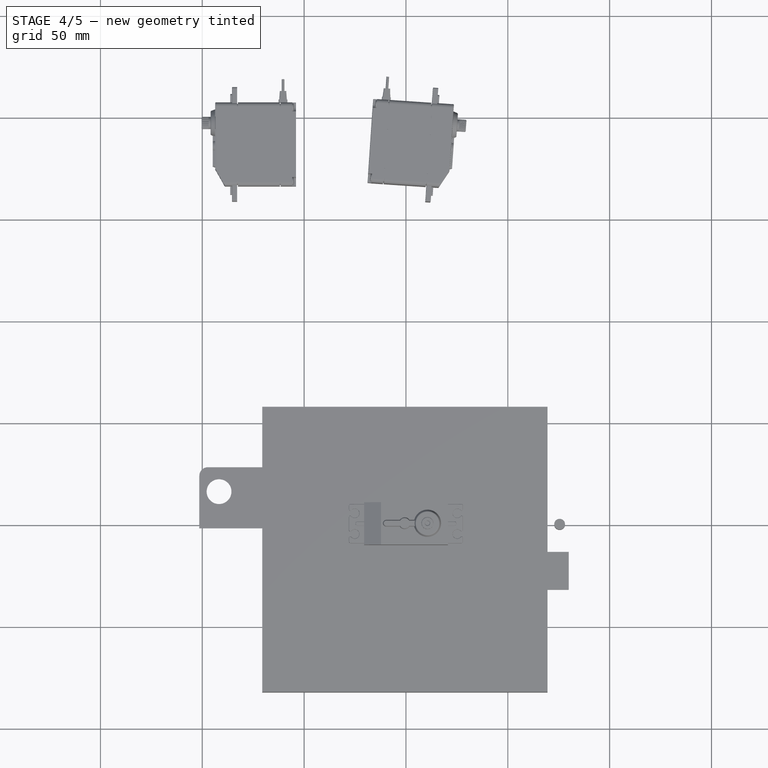
[diagram: stage 4 of 5 — top view after this stage's code; geometry added in this stage tinted green]
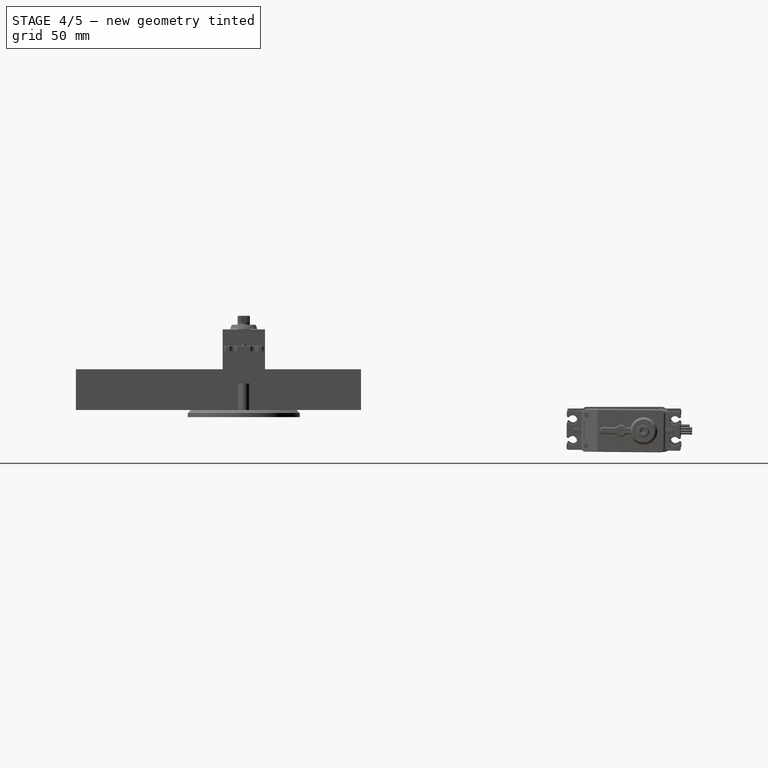
[diagram: stage 4 of 5 — right view after this stage's code; geometry added in this stage tinted green]
FEATURE [Sketcher::SketchObject] Sketch026  label="shaft-anchor-sketch"
  ExternalGeometry = -> [Cut002]
  FullyConstrained = false
  MapMode = 5
  Placement = pos=(0,8.7e-15,39.6) rot=(0,0,1;0rad)
  Support = -> [Cut002]
  sketch-geometry (2):
    g0: Circle CenterX=10.55 CenterY=0 CenterZ=0 NormalX=0 NormalY=0 NormalZ=1 AngleXU=0 Radius=3
    g1: LineSegment StartX=13.55 StartY=0 StartZ=0 EndX=20.55 EndY=0 EndZ=0
  constraints (7):
    c: PointOnObject(g0,g-1)
    c: Radius(g0) = 3
    c: Horizontal(g1)
    c: PointOnObject(g1,g-3)
    c: PointOnObject(g1,g-1)
    c: PointOnObject(g1,g0)
    c: DistanceX(g1) = 7
FEATURE [PartDesign::Pad] Pad002001003003  label="servo-body-final-2"
  AllowMultiFace = false
  Direction = (1,1,1)
  Length = 0.1
  Length2 = 100
  Profile = -> Sketch012
  Type = 0
FEATURE [Sketcher::SketchObject] Sketch040  label="shaft-body-2-sketch"
  FullyConstrained = false
  MapMode = 5
  Placement = pos=(0,0,4.4) rot=(0,0,1;0rad)
  Support = -> [Pad002001003004001006]
  sketch-geometry (1):
    g0: Circle CenterX=0 CenterY=0 CenterZ=0 NormalX=0 NormalY=0 NormalZ=1 AngleXU=0 Radius=1.1
  constraints (2):
    c: Coincident(g0,g-1)
    c: Radius(g0) = 1.1
FEATURE [PartDesign::Pocket] Pocket017  label="shaft-body-2"
  AllowMultiFace = false
  Length = 5
  Length2 = 100
  Profile = -> Sketch027
  Type = 1
FEATURE [PartDesign::Chamfer] Chamfer  label="shaft-body-3"
  Angle = 45
  Base = -> Pocket017 [Edge3]
  ChamferType = 0
  FlipDirection = false
  Size = 0.3
  Size2 = 1
  SupportTransform = false
FEATURE [Sketcher::SketchObject] Sketch041  label="shaft-tooth-sketch"
  FullyConstrained = false
  MapMode = 5
  Placement = pos=(0,0,4.4) rot=(0,0,1;0rad)
  Support = -> [Chamfer]
  sketch-geometry (3):
    g0: LineSegment StartX=-0.2 StartY=3 StartZ=0 EndX=0 EndY=2.8 EndZ=0
    g1: LineSegment StartX=0.2 StartY=3 StartZ=0 EndX=0 EndY=2.8 EndZ=0
    g2: LineSegment StartX=-0.2 StartY=3 StartZ=0 EndX=0.2 EndY=3 EndZ=0
  constraints (8):
    c: Horizontal(g2)
    c: Coincident(g2,g0)
    c: Coincident(g2,g1)
    c: Symmetric(g0,g1,g-2)
    c: DistanceX(g2) = 0.4
    c: Coincident(g0,g1)
    c: PointOnObject(g0,g-2)
    c: DistanceY(g0,g1) = 0.2
FEATURE [PartDesign::Pocket] Pocket018  label="shaft-tooth"
  AllowMultiFace = false
  Length = 3.4
  Length2 = 100
  Profile = -> Sketch028
  Type = 0
FEATURE [PartDesign::PolarPattern] PolarPattern001005  label="shaft-teeth"
  Angle = 360
  Axis = -> Sketch041 [N_Axis]
  Occurrences = 28
  Originals = -> [Pocket018]
FEATURE [PartDesign::Chamfer] Chamfer001  label="shaft-final"
  Angle = 45
  Base = -> PolarPattern001005 [Edge286]
  ChamferType = 0
  FlipDirection = false
  Size = 0.3
  Size2 = 1
  SupportTransform = false
FEATURE [App::DocumentObjectGroup] Group004  label="shaft-src"
  Group = -> [Pad002001003004001006,Pocket017,Chamfer,Pocket018,PolarPattern001005,Chamfer001]
FEATURE [Part::Feature] Chamfer001001  label="shaft"
  Placement = pos=(10.55,0,41.9) rot=(0,0,1;0rad)
  shape: bbox 6 x 6 x 4.4 mm, 90 faces (baked)
FEATURE [Part::Feature] Pad002001003004001007  label="bottom-side-gap"
  Placement = pos=(0,0,7.5) rot=(0,0,1;0rad)
  shape: bbox 44.1 x 24.8 x 0.4 mm, 14 faces (baked)
FEATURE [Part::Feature] Pad002001003004001007001  label="top-side-gap"
  Placement = pos=(0,0,28.5) rot=(0,0,1;0rad)
  shape: bbox 44.1 x 24.8 x 0.4 mm, 14 faces (baked)
FEATURE [Part::MultiFuse] Fusion007  label="side-gaps"
  Shapes = -> [Pad002001003004001007,Pad002001003004001007001]
FEATURE [PartDesign::Fillet] Fillet003005005  label="servo-body-final-3"
  Base = -> Pad002001003003 [Edge31,Edge38,Edge25,Edge32]
  Radius = 2
  SupportTransform = false
FEATURE [Part::Cut] Cut001002002  label="servo-body-final-4"
  Base = -> Fillet003005005
  Tool = -> Fusion007
FEATURE [Part::Fillet] Fillet003005006  label="servo-body-final-5"
  Base = -> Cut001002002
  Edges = 3 edges r=0.3: [Edge1,Edge3,Edge14]
FEATURE [App::DocumentObjectGroup] Group  label="Servo-body-src"
  Group = -> [Pad007,Pocket006,Mirrored,Pocket007,Pocket008,Pocket009,Pocket010,Pocket011,Pocket012,Pad008,Pad009,Cut002,Pad002001003003,Pad002001003004,Pad002001003004001007,Pad002001003004001007001,Fusion007,Fillet003005005,Cut001002002,Fillet003005006]
FEATURE [Part::Feature] Fillet003005006001  label="servo-body"
  shape: bbox 41.26 x 21.13 x 39.7 mm, 208 faces (baked)
FEATURE [Part::MultiFuse] Fusion008  label="servo-1"
  Shapes = -> [Fillet002,Fillet003005001,Fillet003001,Fillet003005006001]
FEATURE [Part::Feature] Cut001002003  label="bottom-screw-1"
  Placement = pos=(-18.1075,7.95754,34.2) rot=(1,0,0;3.14159rad)
  shape: bbox 3.75 x 3.75 x 33.19 mm, 18 faces (baked)
FEATURE [Part::Feature] Cut001002004  label="bottom-screw-2"
  Placement = pos=(18.1075,-7.95754,34.2) rot=(1,0,0;3.14159rad)
  shape: bbox 3.75 x 3.75 x 33.19 mm, 18 faces (baked)
FEATURE [Part::Feature] Cut001002005  label="bottom-screw-3"
  Placement = pos=(18.1075,7.95754,34.2) rot=(1,0,0;3.14159rad)
  shape: bbox 3.75 x 3.75 x 33.19 mm, 18 faces (baked)
FEATURE [Part::Feature] Cut001002006  label="bottom-screw-4"
  Placement = pos=(-18.1075,-7.95754,34.2) rot=(1,0,0;3.14159rad)
  shape: bbox 3.75 x 3.75 x 33.19 mm, 18 faces (baked)
FEATURE [Part::Compound] Compound  label="bottom-screws"
  Links = -> [Cut001002003,Cut001002006,Cut001002004,Cut001002005]
FEATURE [Part::Cylinder] Cylinder001  label="wire-center"
  Angle = 360
  AttacherType = Attacher::AttachEngine3D
  Height = 10
  Placement = pos=(1.5,0,0) rot=(0,1,0;1.5708rad)
  Radius = 0.65
FEATURE [Part::Feature] Cylinder002  label="wire-right"
  Placement = pos=(1.5,1.2,-8e-16) rot=(0,1,0;1.5708rad)
  shape: bbox 10 x 1.3 x 1.3 mm, 3 faces (baked)
FEATURE [Part::Feature] Cylinder003  label="wire-left"
  Placement = pos=(1.5,-1.2,0) rot=(0,1,0;1.5708rad)
  shape: bbox 10 x 1.3 x 1.3 mm, 3 faces (baked)
FEATURE [Part::MultiFuse] Fusion009  label="wires"
  Placement = pos=(20.55,0,6.35) rot=(0,0,1;0rad)
  Shapes = -> [Cylinder001,Cylinder002,Cylinder003]
FEATURE [Part::Compound] Compound001  label="Servo-SM-S4303R-assembly"
  Links = -> [Chamfer001001,Fusion008,Fusion009,Compound]
FEATURE [Part::Feature] Chamfer001002  label="shaft001"
  Placement = pos=(10.55,0,41.9) rot=(0,0,1;0rad)
  shape: bbox 6 x 6 x 4.4 mm, 90 faces (baked)
FEATURE [Part::Feature] Fusion010  label="wires001"
  Placement = pos=(20.55,0,6.35) rot=(0,0,1;0rad)
  shape: bbox 10 x 3.7 x 1.3 mm, 9 faces (baked)
FEATURE [Part::Feature] Fusion011  label="servo-002"
  shape: bbox 56.13 x 21.13 x 45.15 mm, 371 faces (baked)
FEATURE [Part::Feature] Compound003  label="bottom-screws001"
  shape: bbox 39.97 x 19.67 x 33.19 mm, 72 faces, 4 solids (baked)
FEATURE [Part::Compound] Compound002  label="Servo-SM-S4303R-compound"
  Links = -> [Compound003,Fusion011,Fusion010,Chamfer001002]
FEATURE [Sketcher::SketchObject] Sketch042  label="servo-body-sketch001"
  FullyConstrained = false
  MapMode = 5
  Placement = pos=(0,0,0) rot=(1,0,0;1.5708rad)
  sketch-geometry (5):
    g0: LineSegment StartX=20.55 StartY=39.6 StartZ=0 EndX=20.55 EndY=0 EndZ=0
    g1: LineSegment StartX=20.55 StartY=0 StartZ=0 EndX=-20.55 EndY=0 EndZ=0
    g2: LineSegment StartX=-20.55 StartY=0 StartZ=0 EndX=-20.55 EndY=34.9 EndZ=0
    g3: LineSegment StartX=-20.55 StartY=34.9 StartZ=0 EndX=-12.25 EndY=39.6 EndZ=0
    g4: LineSegment StartX=-12.25 StartY=39.6 StartZ=0 EndX=20.55 EndY=39.6 EndZ=0
  constraints (15):
    c: Coincident(g0,g1)
    c: Coincident(g1,g2)
    c: Horizontal(g1)
    c: Vertical(g0)
    c: Vertical(g2)
    c: Symmetric(g1,g0,g-2)
    c: PointOnObject(g1,g-1)
    c: DistanceX(g1) = -41.1
    c: DistanceY(g0) = -39.6
    c: Coincident(g3,g2)
    c: Horizontal(g4)
    c: Coincident(g4,g0)
    c: Coincident(g3,g4)
    c: DistanceY(g2) = 34.9
    c: DistanceX(g4) = 32.8
FEATURE [PartDesign::Pad] Pad002001003004001007002  label="servo-body-002"
  AllowMultiFace = false
  Direction = (1,1,1)
  Length = 20.8
  Length2 = 100
  Midplane = true
  Placement = pos=(0,0,0) rot=(1,0,0;1.5708rad)
  Profile = -> Sketch
  Type = 0
FEATURE [Sketcher::SketchObject] Sketch043  label="bottom-master-sketch001"
  ExternalGeometry = -> [Pad002001003004001007002]
  FullyConstrained = false
  MapMode = 5
  Placement = pos=(0,0,0) rot=(1,0,0;3.14159rad)
  Support = -> [Pad002001003004001007002]
  sketch-geometry (15):
    g0: LineSegment StartX=-20.55 StartY=10.4 StartZ=0 EndX=-18.2075 EndY=8.05754 EndZ=0
    g1: Circle CenterX=-18.2075 CenterY=8.05754 CenterZ=0 NormalX=0 NormalY=0 NormalZ=1 AngleXU=0 Radius=1.05
    g2: GeomPoint X=-18.95 Y=8.8 Z=0
    g3: LineSegment StartX=-18.2075 StartY=8.05754 StartZ=0 EndX=-18.2075 EndY=6 EndZ=0
    g4: LineSegment StartX=-18.2075 StartY=8.05754 StartZ=0 EndX=-16.15 EndY=8.05754 EndZ=0
    g5: LineSegment StartX=-20.55 StartY=6 StartZ=0 EndX=-20.55 EndY=10.4 EndZ=0
    g6: LineSegment StartX=-20.55 StartY=10.4 StartZ=0 EndX=-16.15 EndY=10.4 EndZ=0
    g7: LineSegment StartX=-16.15 StartY=10.4 StartZ=0 EndX=-16.15 EndY=8.05754 EndZ=0
    g8: ArcOfCircle CenterX=-18.2075 CenterY=8.05754 CenterZ=0 NormalX=0 NormalY=0 NormalZ=1 AngleXU=0 Radius=2.05754 StartAngle=4.71239 EndAngle=6.28319
    g9: LineSegment StartX=-20.55 StartY=6 StartZ=0 EndX=-18.2075 EndY=6 EndZ=0
    g10: ArcOfCircle CenterX=-18.2075 CenterY=-8.05754 CenterZ=0 NormalX=0 NormalY=0 NormalZ=1 AngleXU=0 Radius=2.05754 StartAngle=5.46325e-06 EndAngle=1.5708
    g11: LineSegment StartX=-18.2075 StartY=-6 StartZ=0 EndX=-20.55 EndY=-6 EndZ=0
    g12: LineSegment StartX=-20.55 StartY=-6 StartZ=0 EndX=-20.55 EndY=-10.4 EndZ=0
    g13: LineSegment StartX=-20.55 StartY=-10.4 StartZ=0 EndX=-16.15 EndY=-10.4 EndZ=0
    g14: LineSegment StartX=-16.15 StartY=-10.4 StartZ=0 EndX=-16.15 EndY=-8.05753 EndZ=0
  constraints (40):
    c: Coincident(g0,g-4)
    c: Angle(g-4,g0) = 0.785398
    c: Radius(g1) = 1.05
    c: Coincident(g1,g0)
    c: PointOnObject(g2,g0)
    c: PointOnObject(g2,g1)
    c: DistanceX(g2,g0) = -1.6
    c: Vertical(g3)
    c: Coincident(g3,g0)
    c: Coincident(g0,g4)
    c: Horizontal(g4)
    c: Equal(g3,g4)
    c: Coincident(g5,g6)
    c: Vertical(g5)
    c: Horizontal(g6)
    c: Vertical(g7)
    c: Coincident(g7,g6)
    c: Coincident(g7,g4)
    c: Coincident(g5,g0)
    c: Coincident(g8,g0)
    c: Coincident(g8,g4)
    c: Coincident(g3,g8)
    c: Coincident(g9,g5)
    c: Coincident(g9,g3)
    c: Horizontal(g9)
    c: DistanceY(g0,g5) = -4.4
    c: Horizontal(g11)
    c: Coincident(g11,g12)
    c: Vertical(g12)
    c: Coincident(g12,g13)
    c: Horizontal(g13)
    c: Coincident(g13,g14)
    c: Vertical(g14)
    c: Coincident(g12,g-4)
    c: Symmetric(g10,g0,g-1)
    c: Symmetric(g13,g6,g-1)
    c: Symmetric(g11,g3,g-1)
    c: Equal(g10,g8)
    c: Coincident(g10,g11)
    c: Coincident(g10,g14)
FEATURE [PartDesign::Pocket] Pocket019  label="bottom-master001"
  AllowMultiFace = false
  Length = 1.8
  Length2 = 100
  Placement = pos=(0,0,0) rot=(1,0,0;1.5708rad)
  Profile = -> Sketch001
  Type = 0
FEATURE [PartDesign::Mirrored] Mirrored002  label="bottom-003"
  MirrorPlane = -> Sketch043 [V_Axis]
  Originals = -> [Pocket019]
  Placement = pos=(0,0,0) rot=(1,0,0;1.5708rad)
FEATURE [Sketcher::SketchObject] Sketch044  label="bottom-2-sketch001"
  ExternalGeometry = -> [Mirrored002]
  FullyConstrained = false
  MapMode = 5
  Placement = pos=(0,8e-16,1.8) rot=(1,0,0;3.14159rad)
  Support = -> [Mirrored002]
  sketch-geometry (10):
    g0: LineSegment StartX=-20.55 StartY=10.4 StartZ=0 EndX=-18.85 EndY=8.7 EndZ=0
    g1: Circle CenterX=-18.1075 CenterY=7.95754 CenterZ=0 NormalX=0 NormalY=0 NormalZ=1 AngleXU=0 Radius=1.05
    g2: Circle CenterX=-18.1075 CenterY=7.95754 CenterZ=0 NormalX=0 NormalY=0 NormalZ=1 AngleXU=0 Radius=1.9
    g3: Circle CenterX=-18.1075 CenterY=-7.95754 CenterZ=0 NormalX=0 NormalY=0 NormalZ=1 AngleXU=0 Radius=1.9
    g4: Circle CenterX=18.1075 CenterY=7.95754 CenterZ=0 NormalX=0 NormalY=0 NormalZ=1 AngleXU=0 Radius=1.9
    g5: Circle CenterX=18.1075 CenterY=-7.95754 CenterZ=0 NormalX=0 NormalY=0 NormalZ=1 AngleXU=0 Radius=1.9
    g6: LineSegment StartX=-18.1075 StartY=7.95754 StartZ=0 EndX=18.1075 EndY=7.95754 EndZ=0
    g7: LineSegment StartX=18.1075 StartY=7.95754 StartZ=0 EndX=18.1075 EndY=-7.95754 EndZ=0
    g8: LineSegment StartX=18.1075 StartY=-7.95754 StartZ=0 EndX=-18.1075 EndY=-7.95754 EndZ=0
    g9: LineSegment StartX=-18.1075 StartY=-7.95754 StartZ=0 EndX=-18.1075 EndY=7.95754 EndZ=0
  constraints (24):
    c: Angle(g0,g-3) = 0.785398
    c: Coincident(g0,g-3)
    c: Radius(g1) = 1.05
    c: PointOnObject(g1,g0)
    c: PointOnObject(g0,g1)
    c: DistanceX(g0,g0) = 1.7
    c: Coincident(g2,g1)
    c: Radius(g2) = 1.9
    c: Equal(g3,g2)
    c: Equal(g2,g4)
    c: Equal(g4,g5)
    c: Coincident(g6,g7)
    c: Coincident(g7,g8)
    c: Coincident(g8,g9)
    c: Coincident(g9,g6)
    c: Horizontal(g6)
    c: Horizontal(g8)
    c: Vertical(g7)
    c: Vertical(g9)
    c: Symmetric(g6,g7,g-1)
    c: Coincident(g6,g1)
    c: Coincident(g3,g8)
    c: Coincident(g6,g4)
    c: Coincident(g5,g7)
FEATURE [PartDesign::Pocket] Pocket020  label="bottom-004"
  AllowMultiFace = false
  Length = 0.6
  Length2 = 100
  Placement = pos=(0,0,0) rot=(1,0,0;1.5708rad)
  Profile = -> Sketch002
  Type = 0
FEATURE [Sketcher::SketchObject] Sketch045  label="bottom-drills-sketch001"
  ExternalGeometry = -> [Pocket020]
  FullyConstrained = false
  MapMode = 5
  Placement = pos=(0,1.3e-15,2.4) rot=(1,0,0;3.14159rad)
  Support = -> [Pocket020]
  sketch-geometry (8):
    g0: Circle CenterX=-18.1075 CenterY=7.95754 CenterZ=0 NormalX=0 NormalY=0 NormalZ=1 AngleXU=0 Radius=1.05
    g1: LineSegment StartX=-18.1075 StartY=7.95754 StartZ=0 EndX=18.1075 EndY=7.95754 EndZ=0
    g2: LineSegment StartX=18.1075 StartY=7.95754 StartZ=0 EndX=18.1075 EndY=-7.95754 EndZ=0
    g3: LineSegment StartX=18.1075 StartY=-7.95754 StartZ=0 EndX=-18.1075 EndY=-7.95754 EndZ=0
    g4: LineSegment StartX=-18.1075 StartY=-7.95754 StartZ=0 EndX=-18.1075 EndY=7.95754 EndZ=0
    g5: Circle CenterX=-18.1075 CenterY=-7.95754 CenterZ=0 NormalX=0 NormalY=0 NormalZ=1 AngleXU=0 Radius=1.05
    g6: Circle CenterX=18.1075 CenterY=7.95754 CenterZ=0 NormalX=0 NormalY=0 NormalZ=1 AngleXU=0 Radius=1.05
    g7: Circle CenterX=18.1075 CenterY=-7.95754 CenterZ=0 NormalX=0 NormalY=0 NormalZ=1 AngleXU=0 Radius=1.05
  constraints (18):
    c: Coincident(g0,g-3)
    c: Radius(g0) = 1.05
    c: Coincident(g1,g2)
    c: Coincident(g2,g3)
    c: Coincident(g3,g4)
    c: Coincident(g4,g1)
    c: Horizontal(g1)
    c: Horizontal(g3)
    c: Vertical(g2)
    c: Vertical(g4)
    c: Symmetric(g1,g2,g-1)
    c: Coincident(g1,g0)
    c: Equal(g6,g5)
    c: Equal(g5,g7)
    c: Equal(g7,g0)
    c: Coincident(g3,g5)
    c: Coincident(g6,g1)
    c: Coincident(g7,g2)
FEATURE [PartDesign::Pocket] Pocket021  label="bottom-drills001"
  AllowMultiFace = false
  Length = 32
  Length2 = 100
  Placement = pos=(0,0,0) rot=(1,0,0;1.5708rad)
  Profile = -> Sketch003
  Type = 0
FEATURE [Sketcher::SketchObject] Sketch046  label="top-drills-1-sketch001"
  ExternalGeometry = -> [Pocket021]
  FullyConstrained = false
  MapMode = 5
  Placement = pos=(0,8.7e-15,39.6) rot=(0,0,1;3.14159rad)
  Support = -> [Pocket021]
  sketch-geometry (9):
    g0: LineSegment StartX=-17.65 StartY=7.5 StartZ=0 EndX=-0.05 EndY=7.5 EndZ=0
    g1: LineSegment StartX=-0.05 StartY=7.5 StartZ=0 EndX=-0.05 EndY=-7.5 EndZ=0
    g2: LineSegment StartX=-0.05 StartY=-7.5 StartZ=0 EndX=-17.65 EndY=-7.5 EndZ=0
    g3: LineSegment StartX=-17.65 StartY=-7.5 StartZ=0 EndX=-17.65 EndY=7.5 EndZ=0
    g4: Circle CenterX=-0.05 CenterY=-7.5 CenterZ=0 NormalX=0 NormalY=0 NormalZ=1 AngleXU=0 Radius=1.25
    g5: Circle CenterX=-17.65 CenterY=-7.5 CenterZ=0 NormalX=0 NormalY=0 NormalZ=1 AngleXU=0 Radius=1.25
    g6: Circle CenterX=-0.05 CenterY=7.5 CenterZ=0 NormalX=0 NormalY=0 NormalZ=1 AngleXU=0 Radius=1.25
    g7: Circle CenterX=-17.65 CenterY=7.5 CenterZ=0 NormalX=0 NormalY=0 NormalZ=1 AngleXU=0 Radius=1.25
    g8: LineSegment StartX=-20.55 StartY=-10.4 StartZ=0 EndX=-17.65 EndY=-7.5 EndZ=0
  constraints (22):
    c: Coincident(g0,g1)
    c: Coincident(g1,g2)
    c: Coincident(g2,g3)
    c: Coincident(g3,g0)
    c: Horizontal(g0)
    c: Horizontal(g2)
    c: Vertical(g1)
    c: Vertical(g3)
    c: Symmetric(g2,g0,g-1)
    c: Equal(g4,g7)
    c: Equal(g7,g6)
    c: Equal(g6,g5)
    c: Radius(g4) = 1.25
    c: Coincident(g4,g1)
    c: Coincident(g6,g0)
    c: Coincident(g5,g2)
    c: Coincident(g7,g0)
    c: DistanceY(g-1,g1) = -7.5
    c: DistanceX(g2) = -17.6
    c: Coincident(g8,g-3)
    c: Coincident(g8,g2)
    c: Angle(g-3,g8) = 0.785398
FEATURE [PartDesign::Pocket] Pocket022  label="top-drills-002"
  AllowMultiFace = false
  Length = 0.2
  Length2 = 100
  Placement = pos=(0,0,0) rot=(1,0,0;1.5708rad)
  Profile = -> Sketch004
  Type = 0
FEATURE [Sketcher::SketchObject] Sketch047  label="potentiometer-1-sketch001"
  FullyConstrained = false
  MapMode = 5
  Placement = pos=(20.55,0,0) rot=(0.707107,0,0.707107;3.14159rad)
  Support = -> [Pocket022]
  sketch-geometry (2):
    g0: Circle CenterX=14.175 CenterY=0 CenterZ=0 NormalX=0 NormalY=0 NormalZ=1 AngleXU=0 Radius=1.925
    g1: GeomPoint X=16.1 Y=0 Z=0
  constraints (5):
    c: PointOnObject(g0,g-1)
    c: Radius(g0) = 1.925
    c: PointOnObject(g1,g-1)
    c: PointOnObject(g1,g0)
    c: DistanceX(g-1,g1) = 16.1
FEATURE [PartDesign::Pocket] Pocket023  label="potentiometer-hole001"
  AllowMultiFace = false
  Length = 2.2
  Length2 = 100
  Placement = pos=(0,0,0) rot=(1,0,0;1.5708rad)
  Profile = -> Sketch006
  Type = 0
FEATURE [Sketcher::SketchObject] Sketch048  label="potentiometer-cross-sketch001"
  ExternalGeometry = -> [Pocket023]
  FullyConstrained = false
  MapMode = 5
  Placement = pos=(18.35,0,0) rot=(0.707107,0,0.707107;3.14159rad)
  Support = -> [Pocket023]
  sketch-geometry (12):
    g0: LineSegment StartX=13.675 StartY=1.65 StartZ=0 EndX=14.675 EndY=1.65 EndZ=0
    g1: LineSegment StartX=14.675 StartY=1.65 StartZ=0 EndX=14.675 EndY=0.5 EndZ=0
    g2: LineSegment StartX=14.675 StartY=-1.65 StartZ=0 EndX=13.675 EndY=-1.65 EndZ=0
    g3: LineSegment StartX=13.675 StartY=-1.65 StartZ=0 EndX=13.675 EndY=-0.5 EndZ=0
    g4: LineSegment StartX=12.525 StartY=0.5 StartZ=0 EndX=13.675 EndY=0.5 EndZ=0
    g5: LineSegment StartX=15.825 StartY=0.5 StartZ=0 EndX=15.825 EndY=-0.5 EndZ=0
    g6: LineSegment StartX=15.825 StartY=-0.5 StartZ=0 EndX=14.675 EndY=-0.5 EndZ=0
    g7: LineSegment StartX=12.525 StartY=-0.5 StartZ=0 EndX=12.525 EndY=0.5 EndZ=0
    g8: LineSegment StartX=14.675 StartY=0.5 StartZ=0 EndX=15.825 EndY=0.5 EndZ=0
    g9: LineSegment StartX=13.675 StartY=-0.5 StartZ=0 EndX=12.525 EndY=-0.5 EndZ=0
    g10: LineSegment StartX=13.675 StartY=0.5 StartZ=0 EndX=13.675 EndY=1.65 EndZ=0
    g11: LineSegment StartX=14.675 StartY=-0.5 StartZ=0 EndX=14.675 EndY=-1.65 EndZ=0
  constraints (30):
    c: Coincident(g0,g1)
    c: Coincident(g11,g2)
    c: Coincident(g2,g3)
    c: Coincident(g10,g0)
    c: Horizontal(g0)
    c: Horizontal(g2)
    c: Vertical(g1)
    c: Vertical(g3)
    c: Coincident(g8,g5)
    c: Coincident(g5,g6)
    c: Coincident(g9,g7)
    c: Coincident(g7,g4)
    c: Horizontal(g4)
    c: Horizontal(g6)
    c: Vertical(g5)
    c: Vertical(g7)
    c: Symmetric(g4,g5,g-3)
    c: Symmetric(g0,g11,g-3)
    c: Tangent(g4,g8)
    c: Tangent(g6,g9)
    c: Coincident(g3,g9)
    c: Coincident(g10,g4)
    c: Tangent(g3,g10)
    c: Coincident(g1,g8)
    c: Coincident(g11,g6)
    c: Tangent(g1,g11)
    c: Equal(g4,g10)
    c: Equal(g7,g0)
    c: DistanceX(g5,g4) = -3.3
    c: DistanceY(g5) = -1
FEATURE [PartDesign::Pocket] Pocket024  label="potentiometer-cross001"
  AllowMultiFace = false
  Length = 1
  Length2 = 100
  Placement = pos=(0,0,0) rot=(1,0,0;1.5708rad)
  Profile = -> Sketch007
  Type = 0
FEATURE [Sketcher::SketchObject] Sketch049  label="label-plate-sketch001"
  ExternalGeometry = -> [Pocket024]
  FullyConstrained = false
  MapMode = 5
  Placement = pos=(-19.9538,7.7e-15,35.2376) rot=(-0.254782,0,0.966998;3.14159rad)
  Support = -> [Pocket024]
  sketch-geometry (8):
    g0: LineSegment StartX=-7.65321 StartY=5.15 StartZ=0 EndX=-1.15321 EndY=5.15 EndZ=0
    g1: LineSegment StartX=-0.953214 StartY=4.95 StartZ=0 EndX=-0.953214 EndY=-4.95 EndZ=0
    g2: LineSegment StartX=-1.15321 StartY=-5.15 StartZ=0 EndX=-7.65321 EndY=-5.15 EndZ=0
    g3: LineSegment StartX=-7.85321 StartY=-4.95 StartZ=0 EndX=-7.85321 EndY=4.95 EndZ=0
    g4: ArcOfCircle CenterX=-7.65321 CenterY=4.95 CenterZ=0 NormalX=0 NormalY=0 NormalZ=1 AngleXU=0 Radius=0.2 StartAngle=1.5708 EndAngle=3.14159
    g5: ArcOfCircle CenterX=-1.15321 CenterY=4.95 CenterZ=0 NormalX=0 NormalY=0 NormalZ=1 AngleXU=0 Radius=0.2 StartAngle=0 EndAngle=1.5708
    g6: ArcOfCircle CenterX=-1.15321 CenterY=-4.95 CenterZ=0 NormalX=0 NormalY=0 NormalZ=1 AngleXU=0 Radius=0.2 StartAngle=4.71239 EndAngle=6.28319
    g7: ArcOfCircle CenterX=-7.65321 CenterY=-4.95 CenterZ=0 NormalX=0 NormalY=0 NormalZ=1 AngleXU=0 Radius=0.2 StartAngle=3.14159 EndAngle=4.71239
  constraints (20):
    c: Horizontal(g0)
    c: Horizontal(g2)
    c: Vertical(g1)
    c: Vertical(g3)
    c: Tangent(g0,g4)
    c: Tangent(g3,g4)
    c: Tangent(g0,g5)
    c: Tangent(g1,g5)
    c: Tangent(g1,g6)
    c: Tangent(g2,g6)
    c: Tangent(g2,g7)
    c: Tangent(g3,g7)
    c: Equal(g4,g5)
    c: Equal(g5,g7)
    c: Equal(g7,g6)
    c: Symmetric(g5,g6,g-1)
    c: DistanceY(g0,g2) = -10.3
    c: DistanceX(g3,g1) = 6.9
    c: Radius(g4) = 0.2
    c: DistanceX(g3,g-3) = -1
FEATURE [PartDesign::Pocket] Pocket025  label="Label-plate001"
  AllowMultiFace = false
  Length = 0.1
  Length2 = 100
  Placement = pos=(0,0,0) rot=(1,0,0;1.5708rad)
  Profile = -> Sketch008
  Type = 0
FEATURE [Sketcher::SketchObject] Sketch050  label="top-left-2-drills-sketch001"
  FullyConstrained = false
  MapMode = 5
  Placement = pos=(0,8.7e-15,39.6) rot=(0,0,1;3.14159rad)
  Support = -> [Pocket025]
  sketch-geometry (4):
    g0: Circle CenterX=18 CenterY=7.5 CenterZ=0 NormalX=0 NormalY=0 NormalZ=1 AngleXU=0 Radius=1.25
    g1: Circle CenterX=18 CenterY=-7.5 CenterZ=0 NormalX=0 NormalY=0 NormalZ=1 AngleXU=0 Radius=1.25
    g2: LineSegment StartX=18 StartY=7.5 StartZ=0 EndX=18 EndY=0 EndZ=0
    g3: LineSegment StartX=18 StartY=7.5 StartZ=0 EndX=19.25 EndY=7.5 EndZ=0
  constraints (10):
    c: Radius(g0) = 1.25
    c: Equal(g1,g0)
    c: Symmetric(g0,g1,g-1)
    c: Coincident(g2,g0)
    c: Vertical(g2)
    c: PointOnObject(g2,g-1)
    c: DistanceY(g2) = -7.5
    c: Horizontal(g3)
    c: Coincident(g3,g0)
    c: PointOnObject(g3,g0)
FEATURE [PartDesign::Pocket] Pocket026  label="top-left-2-drills001"
  AllowMultiFace = false
  Length = 4.1
  Length2 = 100
  Placement = pos=(0,0,0) rot=(1,0,0;1.5708rad)
  Profile = -> Sketch009
  Type = 0
FEATURE [Sketcher::SketchObject] Sketch051  label="top-drills-cross-1-sketch001"
  FullyConstrained = false
  MapMode = 5
  sketch-geometry (13):
    g0: Circle CenterX=0 CenterY=0 CenterZ=0 NormalX=0 NormalY=0 NormalZ=1 AngleXU=0 Radius=1.25
    g1: LineSegment StartX=-0.15 StartY=0.6 StartZ=0 EndX=0.15 EndY=0.6 EndZ=0
    g2: LineSegment StartX=0.15 StartY=0.6 StartZ=0 EndX=0.15 EndY=0.15 EndZ=0
    g3: LineSegment StartX=0.15 StartY=-0.6 StartZ=0 EndX=-0.15 EndY=-0.6 EndZ=0
    g4: LineSegment StartX=-0.15 StartY=-0.6 StartZ=0 EndX=-0.15 EndY=-0.15 EndZ=0
    g5: LineSegment StartX=-0.6 StartY=0.15 StartZ=0 EndX=-0.15 EndY=0.15 EndZ=0
    g6: LineSegment StartX=0.6 StartY=0.15 StartZ=0 EndX=0.6 EndY=-0.15 EndZ=0
    g7: LineSegment StartX=0.6 StartY=-0.15 StartZ=0 EndX=0.15 EndY=-0.15 EndZ=0
    g8: LineSegment StartX=-0.6 StartY=-0.15 StartZ=0 EndX=-0.6 EndY=0.15 EndZ=0
    g9: LineSegment StartX=0.15 StartY=0.15 StartZ=0 EndX=0.6 EndY=0.15 EndZ=0
    g10: LineSegment StartX=-0.15 StartY=-0.15 StartZ=0 EndX=-0.6 EndY=-0.15 EndZ=0
    g11: LineSegment StartX=-0.15 StartY=0.15 StartZ=0 EndX=-0.15 EndY=0.6 EndZ=0
    g12: LineSegment StartX=0.15 StartY=-0.15 StartZ=0 EndX=0.15 EndY=-0.6 EndZ=0
  constraints (32):
    c: Coincident(g0,g-1)
    c: Radius(g0) = 1.25
    c: Coincident(g1,g2)
    c: Coincident(g12,g3)
    c: Coincident(g3,g4)
    c: Coincident(g11,g1)
    c: Horizontal(g1)
    c: Horizontal(g3)
    c: Vertical(g2)
    c: Vertical(g4)
    c: Symmetric(g1,g12,g-1)
    c: Coincident(g9,g6)
    c: Coincident(g6,g7)
    c: Coincident(g10,g8)
    c: Coincident(g8,g5)
    c: Horizontal(g5)
    c: Horizontal(g7)
    c: Vertical(g6)
    c: Vertical(g8)
    c: Symmetric(g5,g6,g-1)
    c: Tangent(g5,g9)
    c: Tangent(g7,g10)
    c: Coincident(g4,g10)
    c: Coincident(g11,g5)
    c: Tangent(g4,g11)
    c: Coincident(g2,g9)
    c: Coincident(g12,g7)
    c: Tangent(g2,g12)
    c: Equal(g5,g11)
    c: Equal(g8,g1)
    c: DistanceX(g5,g6) = 1.2
    c: DistanceX(g1) = 0.3
FEATURE [PartDesign::Pad] Pad002001003004001007003  label="top-drills-cross-007"
  AllowMultiFace = false
  Direction = (1,1,1)
  Length = 10
  Length2 = 100
  Profile = -> Sketch010
  Type = 0
FEATURE [Sketcher::SketchObject] Sketch052  label="top-drills-cross-2-sketch001"
  FullyConstrained = false
  MapMode = 5
  Placement = pos=(0,0,10) rot=(0,0,1;0rad)
  Support = -> [Pad002001003004001007003]
  sketch-geometry (1):
    g0: Circle CenterX=0 CenterY=0 CenterZ=0 NormalX=0 NormalY=0 NormalZ=1 AngleXU=0 Radius=1.25
  constraints (2):
    c: Coincident(g0,g-1)
    c: Radius(g0) = 1.25
FEATURE [PartDesign::Pad] Pad002001003004001007004  label="top-drills-cross-008"
  AllowMultiFace = false
  Direction = (1,1,1)
  Length = 1
  Length2 = 100
  Profile = -> Sketch011
  Type = 0
FEATURE [Part::Feature] Pad002001003004001007005  label="top-drills-cross-009"
  Placement = pos=(17.65,7.5,39.2) rot=(0,0,1;0rad)
  shape: bbox 2.5 x 2.5 x 11 mm, 16 faces (baked)
FEATURE [Part::Feature] Pad002001003004001007006  label="top-drills-cross-010"
  Placement = pos=(17.65,-7.5,39.2) rot=(0,0,1;0rad)
  shape: bbox 2.5 x 2.5 x 11 mm, 16 faces (baked)
FEATURE [Part::Feature] Pad002001003004001007007  label="top-drills-cross-011"
  Placement = pos=(0.05,7.5,39.2) rot=(0,0,1;0rad)
  shape: bbox 2.5 x 2.5 x 11 mm, 16 faces (baked)
FEATURE [Part::Feature] Pad002001003004001007008  label="top-drills-cross-012"
  Placement = pos=(0.05,-7.5,39.2) rot=(0,0,1;0rad)
  shape: bbox 2.5 x 2.5 x 11 mm, 16 faces (baked)
FEATURE [Part::Feature] Pad002001003004001007009  label="top-drills-cross-013"
  Placement = pos=(-18,7.5,35.2) rot=(0,0,1;0rad)
  shape: bbox 2.5 x 2.5 x 11 mm, 16 faces (baked)
FEATURE [Part::Feature] Pad002001003004001007010  label="top-drills-cross-014"
  Placement = pos=(-18,-7.5,35.2) rot=(0,0,1;0rad)
  shape: bbox 2.5 x 2.5 x 11 mm, 16 faces (baked)
FEATURE [Part::MultiFuse] Fusion012  label="union-of-top-crosses001"
  Shapes = -> [Pad002001003004001007005,Pad002001003004001007009,Pad002001003004001007010,Pad002001003004001007007,Pad002001003004001007008,Pad002001003004001007006]
FEATURE [Part::Cut] Cut001002007  label="servo-body-final-006"
  Base = -> Pocket026
  Tool = -> Fusion012
FEATURE [Sketcher::SketchObject] Sketch054  label="side-gap-sketch001"
  FullyConstrained = false
  MapMode = 5
  sketch-geometry (25):
    g0: LineSegment StartX=-18.05 StartY=10.4 StartZ=0 EndX=18.05 EndY=10.4 EndZ=0
    g1: LineSegment StartX=20.05 StartY=8.4 StartZ=0 EndX=20.05 EndY=-8.4 EndZ=0
    g2: LineSegment StartX=18.05 StartY=-10.4 StartZ=0 EndX=-18.05 EndY=-10.4 EndZ=0
    g3: LineSegment StartX=-20.05 StartY=-8.4 StartZ=0 EndX=-20.05 EndY=8.4 EndZ=0
    g4: LineSegment StartX=-22.05 StartY=12.4 StartZ=0 EndX=-18.05 EndY=8.4 EndZ=0
    g5: LineSegment StartX=-18.05 StartY=10.1 StartZ=0 EndX=18.05 EndY=10.1 EndZ=0
    g6: LineSegment StartX=19.75 StartY=8.4 StartZ=0 EndX=19.75 EndY=-8.4 EndZ=0
    g7: LineSegment StartX=18.05 StartY=-10.1 StartZ=0 EndX=-18.05 EndY=-10.1 EndZ=0
    g8: LineSegment StartX=-19.75 StartY=-8.4 StartZ=0 EndX=-19.75 EndY=8.4 EndZ=0
    g9: LineSegment StartX=-22.05 StartY=12.4 StartZ=0 EndX=22.05 EndY=12.4 EndZ=0
    g10: LineSegment StartX=22.05 StartY=12.4 StartZ=0 EndX=22.05 EndY=-12.4 EndZ=0
    g11: LineSegment StartX=22.05 StartY=-12.4 StartZ=0 EndX=-22.05 EndY=-12.4 EndZ=0
    g12: LineSegment StartX=-22.05 StartY=-12.4 StartZ=0 EndX=-22.05 EndY=12.4 EndZ=0
    g13: ArcOfCircle CenterX=18.05 CenterY=-8.4 CenterZ=0 NormalX=0 NormalY=0 NormalZ=1 AngleXU=0 Radius=2 StartAngle=4.71239 EndAngle=6.28319
    g14: ArcOfCircle CenterX=18.05 CenterY=8.4 CenterZ=0 NormalX=0 NormalY=0 NormalZ=1 AngleXU=0 Radius=2 StartAngle=0 EndAngle=1.5708
    g15: ArcOfCircle CenterX=-18.05 CenterY=8.4 CenterZ=0 NormalX=0 NormalY=0 NormalZ=1 AngleXU=0 Radius=2 StartAngle=1.5708 EndAngle=3.14159
    g16: ArcOfCircle CenterX=-18.05 CenterY=-8.4 CenterZ=0 NormalX=0 NormalY=0 NormalZ=1 AngleXU=0 Radius=2 StartAngle=3.14159 EndAngle=4.71239
    g17: LineSegment StartX=-18.05 StartY=8.4 StartZ=0 EndX=18.05 EndY=8.4 EndZ=0
    g18: LineSegment StartX=18.05 StartY=8.4 StartZ=0 EndX=18.05 EndY=-8.4 EndZ=0
    g19: LineSegment StartX=18.05 StartY=-8.4 StartZ=0 EndX=-18.05 EndY=-8.4 EndZ=0
    g20: LineSegment StartX=-18.05 StartY=-8.4 StartZ=0 EndX=-18.05 EndY=8.4 EndZ=0
    g21: ArcOfCircle CenterX=-18.05 CenterY=8.4 CenterZ=0 NormalX=0 NormalY=0 NormalZ=1 AngleXU=0 Radius=1.7 StartAngle=1.5708 EndAngle=3.14159
    g22: ArcOfCircle CenterX=-18.05 CenterY=-8.4 CenterZ=0 NormalX=0 NormalY=0 NormalZ=1 AngleXU=0 Radius=1.7 StartAngle=3.14159 EndAngle=4.71239
    g23: ArcOfCircle CenterX=18.05 CenterY=-8.4 CenterZ=0 NormalX=0 NormalY=0 NormalZ=1 AngleXU=0 Radius=1.7 StartAngle=4.71239 EndAngle=6.28319
    g24: ArcOfCircle CenterX=18.05 CenterY=8.4 CenterZ=0 NormalX=0 NormalY=0 NormalZ=1 AngleXU=0 Radius=1.7 StartAngle=0 EndAngle=1.5708
  constraints (62):
    c: Horizontal(g0)
    c: Horizontal(g2)
    c: Vertical(g1)
    c: Vertical(g3)
    c: Angle(g-1,g4) = 2.35619
    c: Horizontal(g5)
    c: Horizontal(g7)
    c: Vertical(g6)
    c: Vertical(g8)
    c: Coincident(g9,g10)
    c: Coincident(g10,g11)
    c: Coincident(g11,g12)
    c: Coincident(g12,g9)
    c: Horizontal(g9)
    c: Horizontal(g11)
    c: Vertical(g10)
    c: Vertical(g12)
    c: PointOnObject(g9,g4)
    c: Symmetric(g9,g10,g-1)
    c: Coincident(g4,g9)
    c: Tangent(g1,g13)
    c: Tangent(g2,g13)
    c: Radius(g13) = 2
    c: Tangent(g0,g14)
    c: Tangent(g1,g14)
    c: Tangent(g0,g15)
    c: Tangent(g3,g15)
    c: Tangent(g2,g16)
    c: Tangent(g3,g16)
    c: Coincident(g17,g18)
    c: Coincident(g18,g19)
    c: Coincident(g19,g20)
    c: Coincident(g20,g17)
    c: Horizontal(g17)
    c: Horizontal(g19)
    c: Vertical(g18)
    c: Vertical(g20)
    c: Coincident(g17,g15)
    c: Symmetric(g15,g18,g-1)
    c: PointOnObject(g15,g4)
    c: Equal(g15,g16)
    c: Equal(g16,g14)
    c: Equal(g14,g13)
    c: DistanceX(g3,g1) = 40.1
    c: DistanceY(g0,g2) = -20.8
    c: Tangent(g8,g21)
    c: Tangent(g5,g21)
    c: PointOnObject(g21,g4)
    c: Coincident(g21,g15)
    c: Coincident(g4,g15)
    c: DistanceX(g8,g3) = -0.3
    c: DistanceX(g3,g4) = -2
    c: Tangent(g8,g22)
    c: Tangent(g7,g22)
    c: Coincident(g22,g16)
    c: Tangent(g7,g23)
    c: Tangent(g6,g23)
    c: Coincident(g23,g18)
    c: Tangent(g5,g24)
    c: Tangent(g6,g24)
    c: Coincident(g24,g17)
    c: Coincident(g14,g17)
FEATURE [PartDesign::Pad] Pad002001003004001007012  label="side-gap-master001"
  AllowMultiFace = false
  Direction = (1,1,1)
  Length = 0.4
  Length2 = 100
  Profile = -> Sketch013
  Type = 0
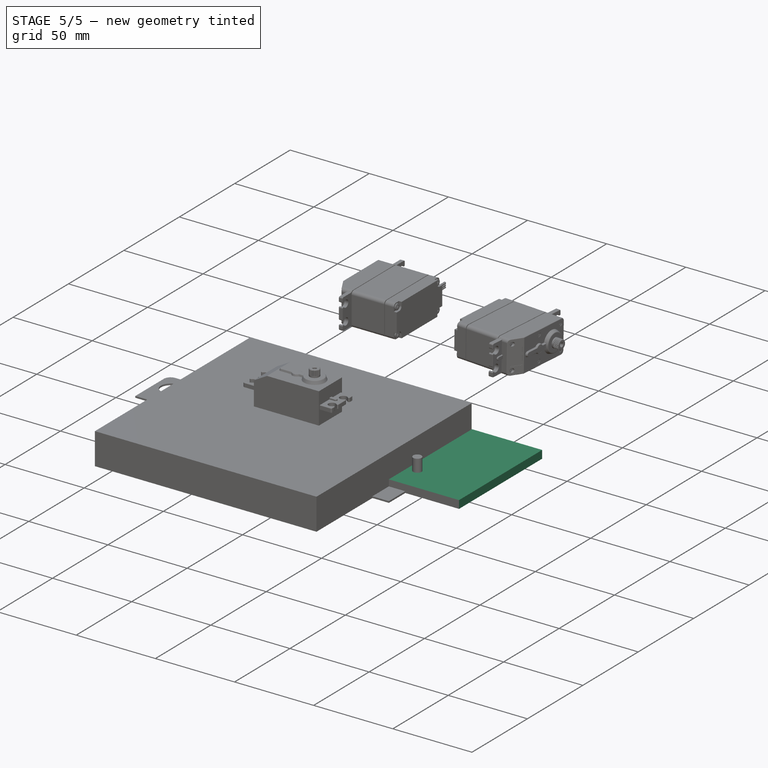
[diagram: stage 5 of 5 — iso view after this stage's code; geometry added in this stage tinted green]
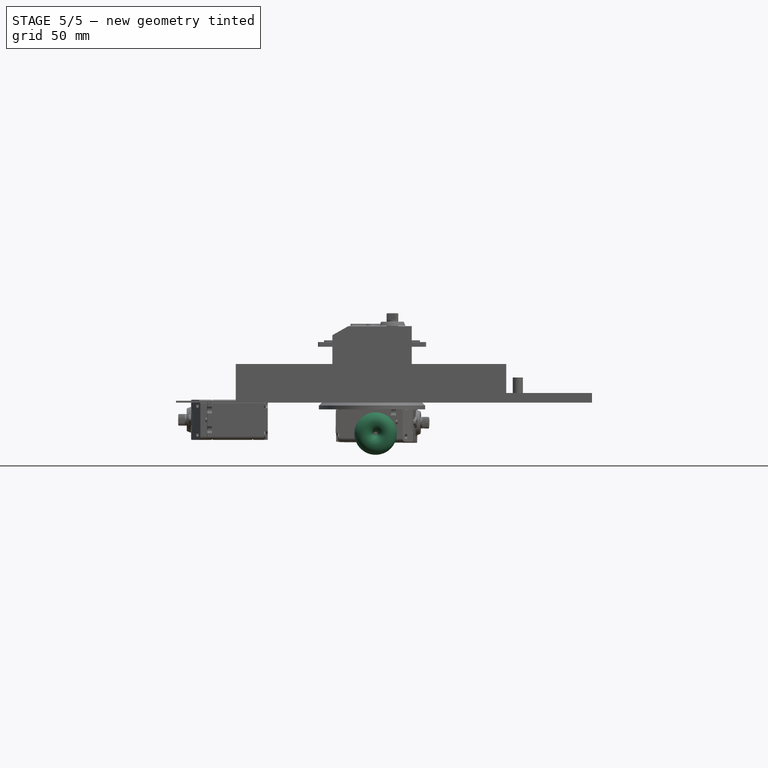
[diagram: stage 5 of 5 — front view after this stage's code; geometry added in this stage tinted green]
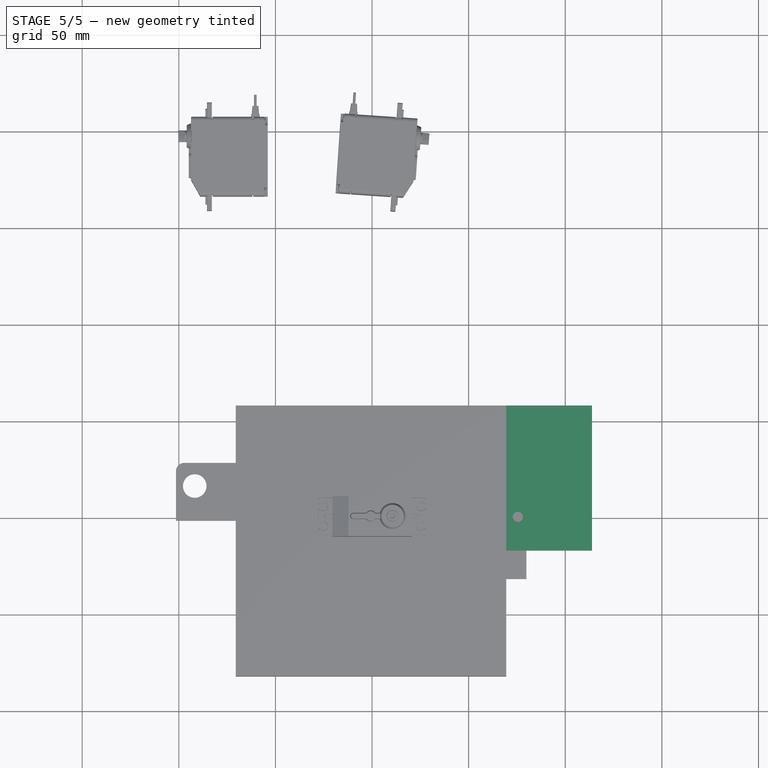
[diagram: stage 5 of 5 — top view after this stage's code; geometry added in this stage tinted green]
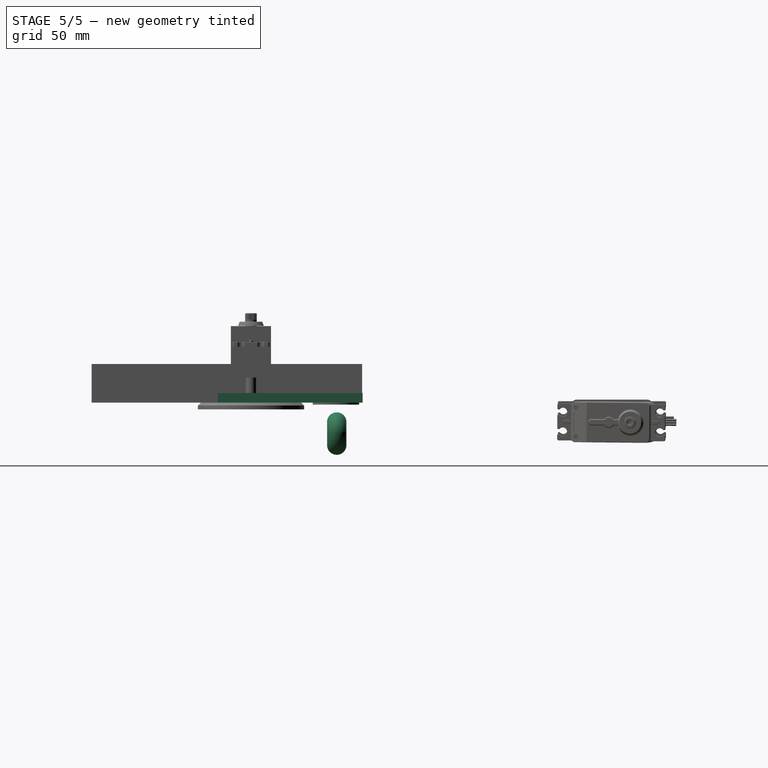
[diagram: stage 5 of 5 — right view after this stage's code; geometry added in this stage tinted green]
FEATURE [Sketcher::SketchObject] Sketch
  FullyConstrained = false
  MapMode = 5
  Support = -> [XY_Plane]
  sketch-geometry (8):
    g0: LineSegment StartX=-19.9829 StartY=19.2492 StartZ=0 EndX=20.0171 EndY=19.2492 EndZ=0
    g1: LineSegment StartX=20.0171 StartY=19.2492 StartZ=0 EndX=20.0171 EndY=-20.7508 EndZ=0
    g2: LineSegment StartX=20.0171 StartY=-20.7508 StartZ=0 EndX=-19.9829 EndY=-20.7508 EndZ=0
    g3: LineSegment StartX=-19.9829 StartY=-20.7508 StartZ=0 EndX=-19.9829 EndY=19.2492 EndZ=0
    g4: Circle CenterX=-16.0323 CenterY=14.5686 CenterZ=0 NormalX=0 NormalY=0 NormalZ=1 AngleXU=0 Radius=1.96692
    g5: Circle CenterX=16.0957 CenterY=14.4295 CenterZ=0 NormalX=0 NormalY=0 NormalZ=1 AngleXU=0 Radius=2.05352
    g6: Circle CenterX=15.1221 CenterY=-16.8639 CenterZ=0 NormalX=0 NormalY=0 NormalZ=1 AngleXU=0 Radius=1.99135
    g7: Circle CenterX=-16.1713 CenterY=-17.4203 CenterZ=0 NormalX=0 NormalY=0 NormalZ=1 AngleXU=0 Radius=1.95211
  constraints (10):
    c: Coincident(g0,g1)
    c: Coincident(g1,g2)
    c: Coincident(g2,g3)
    c: Coincident(g3,g0)
    c: Horizontal(g0)
    c: Horizontal(g2)
    c: Vertical(g1)
    c: Vertical(g3)
    c: DistanceY(g3,g3) = 40
    c: DistanceX(g0,g0) = 40
FEATURE [PartDesign::Pad] Pad
  Direction = (1,1,1)
  Length = 1
  Length2 = 100
  Profile = -> Sketch
  Type = 0
FEATURE [PartDesign::Body] Body  label="base_rueda"
  Group = -> [Sketch,Pad]
  Origin = -> Origin
  Placement = pos=(0,46,0) rot=(0,0,1;0rad)
  Tip = -> Pad
FEATURE [Sketcher::SketchObject] Sketch002
  FullyConstrained = false
  MapMode = 5
  Support = -> [XY_Plane001]
  sketch-geometry (4):
    g0: LineSegment StartX=11.942 StartY=-7.38734 StartZ=0 EndX=-0.260369 EndY=14.4324 EndZ=0
    g1: LineSegment StartX=-0.260369 StartY=14.4324 StartZ=0 EndX=-13.0556 EndY=-7.04506 EndZ=0
    g2: LineSegment StartX=-13.0556 StartY=-7.04506 StartZ=0 EndX=11.942 EndY=-7.38734 EndZ=0
    g3: Circle CenterX=-0.457983 CenterY=0 CenterZ=0 NormalX=0 NormalY=0 NormalZ=1 AngleXU=0 Radius=14.4338
  constraints (10):
    c: Coincident(g0,g1)
    c: Coincident(g1,g2)
    c: Coincident(g2,g0)
    c: Equal(g0,g1)
    c: Equal(g0,g2)
    c: PointOnObject(g0,g3)
    c: PointOnObject(g1,g3)
    c: PointOnObject(g2,g3)
    c: PointOnObject(g3,g-1)
    c: Distance(g2) = 25
FEATURE [PartDesign::Pad] Pad001
  Direction = (1,1,1)
  Length = 1
  Length2 = 100
  Profile = -> Sketch002
  Type = 0
FEATURE [PartDesign::Body] Body001  label="triangle1"
  Group = -> [Sketch002,Pad001]
  Origin = -> Origin001
  Placement = pos=(1,50,-9) rot=(-1,0,0;1.5708rad)
  Tip = -> Pad001
FEATURE [Sketcher::SketchObject] Sketch003
  FullyConstrained = false
  MapMode = 5
  Support = -> [XY_Plane002]
  sketch-geometry (4):
    g0: LineSegment StartX=11.942 StartY=-7.38734 StartZ=0 EndX=-0.260369 EndY=14.4324 EndZ=0
    g1: LineSegment StartX=-0.260369 StartY=14.4324 StartZ=0 EndX=-13.0556 EndY=-7.04506 EndZ=0
    g2: LineSegment StartX=-13.0556 StartY=-7.04506 StartZ=0 EndX=11.942 EndY=-7.38734 EndZ=0
    g3: Circle CenterX=-0.457983 CenterY=0 CenterZ=0 NormalX=0 NormalY=0 NormalZ=1 AngleXU=0 Radius=14.4338
  constraints (10):
    c: Coincident(g0,g1)
    c: Coincident(g1,g2)
    c: Coincident(g2,g0)
    c: Equal(g0,g1)
    c: Equal(g0,g2)
    c: PointOnObject(g0,g3)
    c: PointOnObject(g1,g3)
    c: PointOnObject(g2,g3)
    c: PointOnObject(g3,g-1)
    c: Distance(g2) = 25
FEATURE [PartDesign::Pad] Pad002
  Direction = (1,1,1)
  Length = 1
  Length2 = 100
  Profile = -> Sketch003
  Type = 0
FEATURE [PartDesign::Body] Body002  label="triangle2"
  Group = -> [Sketch003,Pad002]
  Origin = -> Origin002
  Placement = pos=(1,37.9904,-8.23205) rot=(-1,0,0;1.5708rad)
  Tip = -> Pad002
FEATURE [Part::Torus] Torus  label="rueda"
  Angle1 = -180
  Angle2 = 180
  Angle3 = 360
  AttacherType = Attacher::AttachEngine3D
  Placement = pos=(1.8355,44.3985,-16) rot=(0.57735,-0.57735,-0.57735;4.18879rad)
  Radius1 = 6
  Radius2 = 5
FEATURE [Part::Cylinder] Cylinder  label="base_movil"
  Angle = 360
  AttacherType = Attacher::AttachEngine3D
  Height = 1
  Placement = pos=(0,44,-1) rot=(0,0,1;0rad)
  Radius = 12
FEATURE [Part::Feature] PolarPattern001004  label="Renacuajo-wheel-4-arms-horn-final001"
  shape: bbox 55 x 55 x 7 mm, 34 faces (baked)
FEATURE [App::LinkGroup] LinkGroup003  label="rueda2"
  ElementList = -> [PolarPattern001004,PolarPattern001003]
  LinkMode = 0
  Placement = pos=(30,196,-9.00002) rot=(0,-1,0;1.5708rad)
FEATURE [Sketcher::SketchObject] Sketch014
  FullyConstrained = false
  MapMode = 5
  Support = -> [XY_Plane004]
  sketch-geometry (4):
    g0: LineSegment StartX=-36.1738 StartY=-17.1935 StartZ=0 EndX=-36.1738 EndY=57.8065 EndZ=0
    g1: LineSegment StartX=-36.1738 StartY=57.8065 StartZ=0 EndX=113.826 EndY=57.8065 EndZ=0
    g2: LineSegment StartX=113.826 StartY=57.8065 StartZ=0 EndX=113.826 EndY=-17.1935 EndZ=0
    g3: LineSegment StartX=113.826 StartY=-17.1935 StartZ=0 EndX=-36.1738 EndY=-17.1935 EndZ=0
  constraints (10):
    c: Vertical(g0)
    c: DistanceY(g0,g0) = 75
    c: Coincident(g1,g0)
    c: Horizontal(g1)
    c: DistanceX(g1,g1) = 150
    c: Coincident(g2,g1)
    c: Vertical(g2)
    c: Equal(g0,g2)
    c: Coincident(g3,g2)
    c: Coincident(g3,g0)
FEATURE [PartDesign::Pad] Pad006
  Direction = (1,1,1)
  Length = 5
  Length2 = 100
  Profile = -> Sketch014
  Type = 0
FEATURE [PartDesign::Body] Body004  label="base_DieGo"
  Group = -> [Sketch014,Pad006]
  Origin = -> Origin004
  Tip = -> Pad006
FEATURE [Sketcher::SketchObject] Sketch015  label="servo-body-sketch"
  FullyConstrained = false
  MapMode = 5
  Placement = pos=(0,0,0) rot=(1,0,0;1.5708rad)
  sketch-geometry (5):
    g0: LineSegment StartX=20.55 StartY=39.6 StartZ=0 EndX=20.55 EndY=0 EndZ=0
    g1: LineSegment StartX=20.55 StartY=0 StartZ=0 EndX=-20.55 EndY=0 EndZ=0
    g2: LineSegment StartX=-20.55 StartY=0 StartZ=0 EndX=-20.55 EndY=34.9 EndZ=0
    g3: LineSegment StartX=-20.55 StartY=34.9 StartZ=0 EndX=-12.25 EndY=39.6 EndZ=0
    g4: LineSegment StartX=-12.25 StartY=39.6 StartZ=0 EndX=20.55 EndY=39.6 EndZ=0
  constraints (15):
    c: Coincident(g0,g1)
    c: Coincident(g1,g2)
    c: Horizontal(g1)
    c: Vertical(g0)
    c: Vertical(g2)
    c: Symmetric(g1,g0,g-2)
    c: PointOnObject(g1,g-1)
    c: DistanceX(g1) = -41.1
    c: DistanceY(g0) = -39.6
    c: Coincident(g3,g2)
    c: Horizontal(g4)
    c: Coincident(g4,g0)
    c: Coincident(g3,g4)
    c: DistanceY(g2) = 34.9
    c: DistanceX(g4) = 32.8
FEATURE [PartDesign::Pad] Pad007  label="servo-body-1"
  AllowMultiFace = false
  Direction = (1,1,1)
  Length = 20.8
  Length2 = 100
  Midplane = true
  Placement = pos=(0,0,0) rot=(1,0,0;1.5708rad)
  Profile = -> Sketch
  Type = 0
FEATURE [Sketcher::SketchObject] Sketch016  label="bottom-master-sketch"
  ExternalGeometry = -> [Pad007]
  FullyConstrained = false
  MapMode = 5
  Placement = pos=(0,0,0) rot=(1,0,0;3.14159rad)
  Support = -> [Pad007]
  sketch-geometry (15):
    g0: LineSegment StartX=-20.55 StartY=10.4 StartZ=0 EndX=-18.2075 EndY=8.05754 EndZ=0
    g1: Circle CenterX=-18.2075 CenterY=8.05754 CenterZ=0 NormalX=0 NormalY=0 NormalZ=1 AngleXU=0 Radius=1.05
    g2: GeomPoint X=-18.95 Y=8.8 Z=0
    g3: LineSegment StartX=-18.2075 StartY=8.05754 StartZ=0 EndX=-18.2075 EndY=6 EndZ=0
    g4: LineSegment StartX=-18.2075 StartY=8.05754 StartZ=0 EndX=-16.15 EndY=8.05754 EndZ=0
    g5: LineSegment StartX=-20.55 StartY=6 StartZ=0 EndX=-20.55 EndY=10.4 EndZ=0
    g6: LineSegment StartX=-20.55 StartY=10.4 StartZ=0 EndX=-16.15 EndY=10.4 EndZ=0
    g7: LineSegment StartX=-16.15 StartY=10.4 StartZ=0 EndX=-16.15 EndY=8.05754 EndZ=0
    g8: ArcOfCircle CenterX=-18.2075 CenterY=8.05754 CenterZ=0 NormalX=0 NormalY=0 NormalZ=1 AngleXU=0 Radius=2.05754 StartAngle=4.71239 EndAngle=6.28319
    g9: LineSegment StartX=-20.55 StartY=6 StartZ=0 EndX=-18.2075 EndY=6 EndZ=0
    g10: ArcOfCircle CenterX=-18.2075 CenterY=-8.05754 CenterZ=0 NormalX=0 NormalY=0 NormalZ=1 AngleXU=0 Radius=2.05754 StartAngle=5.46325e-06 EndAngle=1.5708
    g11: LineSegment StartX=-18.2075 StartY=-6 StartZ=0 EndX=-20.55 EndY=-6 EndZ=0
    g12: LineSegment StartX=-20.55 StartY=-6 StartZ=0 EndX=-20.55 EndY=-10.4 EndZ=0
    g13: LineSegment StartX=-20.55 StartY=-10.4 StartZ=0 EndX=-16.15 EndY=-10.4 EndZ=0
    g14: LineSegment StartX=-16.15 StartY=-10.4 StartZ=0 EndX=-16.15 EndY=-8.05753 EndZ=0
  constraints (40):
    c: Coincident(g0,g-4)
    c: Angle(g-4,g0) = 0.785398
    c: Radius(g1) = 1.05
    c: Coincident(g1,g0)
    c: PointOnObject(g2,g0)
    c: PointOnObject(g2,g1)
    c: DistanceX(g2,g0) = -1.6
    c: Vertical(g3)
    c: Coincident(g3,g0)
    c: Coincident(g0,g4)
    c: Horizontal(g4)
    c: Equal(g3,g4)
    c: Coincident(g5,g6)
    c: Vertical(g5)
    c: Horizontal(g6)
    c: Vertical(g7)
    c: Coincident(g7,g6)
    c: Coincident(g7,g4)
    c: Coincident(g5,g0)
    c: Coincident(g8,g0)
    c: Coincident(g8,g4)
    c: Coincident(g3,g8)
    c: Coincident(g9,g5)
    c: Coincident(g9,g3)
    c: Horizontal(g9)
    c: DistanceY(g0,g5) = -4.4
    c: Horizontal(g11)
    c: Coincident(g11,g12)
    c: Vertical(g12)
    c: Coincident(g12,g13)
    c: Horizontal(g13)
    c: Coincident(g13,g14)
    c: Vertical(g14)
    c: Coincident(g12,g-4)
    c: Symmetric(g10,g0,g-1)
    c: Symmetric(g13,g6,g-1)
    c: Symmetric(g11,g3,g-1)
    c: Equal(g10,g8)
    c: Coincident(g10,g11)
    c: Coincident(g10,g14)
FEATURE [PartDesign::Pocket] Pocket006  label="bottom-master"
  AllowMultiFace = false
  Length = 1.8
  Length2 = 100
  Placement = pos=(0,0,0) rot=(1,0,0;1.5708rad)
  Profile = -> Sketch001
  Type = 0
FEATURE [PartDesign::Mirrored] Mirrored  label="bottom-1"
  MirrorPlane = -> Sketch016 [V_Axis]
  Originals = -> [Pocket006]
  Placement = pos=(0,0,0) rot=(1,0,0;1.5708rad)
FEATURE [Sketcher::SketchObject] Sketch017  label="bottom-2-sketch"
  ExternalGeometry = -> [Mirrored]
  FullyConstrained = false
  MapMode = 5
  Placement = pos=(0,8e-16,1.8) rot=(1,0,0;3.14159rad)
  Support = -> [Mirrored]
  sketch-geometry (10):
    g0: LineSegment StartX=-20.55 StartY=10.4 StartZ=0 EndX=-18.85 EndY=8.7 EndZ=0
    g1: Circle CenterX=-18.1075 CenterY=7.95754 CenterZ=0 NormalX=0 NormalY=0 NormalZ=1 AngleXU=0 Radius=1.05
    g2: Circle CenterX=-18.1075 CenterY=7.95754 CenterZ=0 NormalX=0 NormalY=0 NormalZ=1 AngleXU=0 Radius=1.9
    g3: Circle CenterX=-18.1075 CenterY=-7.95754 CenterZ=0 NormalX=0 NormalY=0 NormalZ=1 AngleXU=0 Radius=1.9
    g4: Circle CenterX=18.1075 CenterY=7.95754 CenterZ=0 NormalX=0 NormalY=0 NormalZ=1 AngleXU=0 Radius=1.9
    g5: Circle CenterX=18.1075 CenterY=-7.95754 CenterZ=0 NormalX=0 NormalY=0 NormalZ=1 AngleXU=0 Radius=1.9
    g6: LineSegment StartX=-18.1075 StartY=7.95754 StartZ=0 EndX=18.1075 EndY=7.95754 EndZ=0
    g7: LineSegment StartX=18.1075 StartY=7.95754 StartZ=0 EndX=18.1075 EndY=-7.95754 EndZ=0
    g8: LineSegment StartX=18.1075 StartY=-7.95754 StartZ=0 EndX=-18.1075 EndY=-7.95754 EndZ=0
    g9: LineSegment StartX=-18.1075 StartY=-7.95754 StartZ=0 EndX=-18.1075 EndY=7.95754 EndZ=0
  constraints (24):
    c: Angle(g0,g-3) = 0.785398
    c: Coincident(g0,g-3)
    c: Radius(g1) = 1.05
    c: PointOnObject(g1,g0)
    c: PointOnObject(g0,g1)
    c: DistanceX(g0,g0) = 1.7
    c: Coincident(g2,g1)
    c: Radius(g2) = 1.9
    c: Equal(g3,g2)
    c: Equal(g2,g4)
    c: Equal(g4,g5)
    c: Coincident(g6,g7)
    c: Coincident(g7,g8)
    c: Coincident(g8,g9)
    c: Coincident(g9,g6)
    c: Horizontal(g6)
    c: Horizontal(g8)
    c: Vertical(g7)
    c: Vertical(g9)
    c: Symmetric(g6,g7,g-1)
    c: Coincident(g6,g1)
    c: Coincident(g3,g8)
    c: Coincident(g6,g4)
    c: Coincident(g5,g7)
FEATURE [PartDesign::Pocket] Pocket007  label="bottom-2"
  AllowMultiFace = false
  Length = 0.6
  Length2 = 100
  Placement = pos=(0,0,0) rot=(1,0,0;1.5708rad)
  Profile = -> Sketch002
  Type = 0
FEATURE [Sketcher::SketchObject] Sketch022  label="label-plate-sketch"
  ExternalGeometry = -> [Pocket011]
  FullyConstrained = false
  MapMode = 5
  Placement = pos=(-19.9538,7.7e-15,35.2376) rot=(-0.254782,0,0.966998;3.14159rad)
  Support = -> [Pocket011]
  sketch-geometry (8):
    g0: LineSegment StartX=-7.65321 StartY=5.15 StartZ=0 EndX=-1.15321 EndY=5.15 EndZ=0
    g1: LineSegment StartX=-0.953214 StartY=4.95 StartZ=0 EndX=-0.953214 EndY=-4.95 EndZ=0
    g2: LineSegment StartX=-1.15321 StartY=-5.15 StartZ=0 EndX=-7.65321 EndY=-5.15 EndZ=0
    g3: LineSegment StartX=-7.85321 StartY=-4.95 StartZ=0 EndX=-7.85321 EndY=4.95 EndZ=0
    g4: ArcOfCircle CenterX=-7.65321 CenterY=4.95 CenterZ=0 NormalX=0 NormalY=0 NormalZ=1 AngleXU=0 Radius=0.2 StartAngle=1.5708 EndAngle=3.14159
    g5: ArcOfCircle CenterX=-1.15321 CenterY=4.95 CenterZ=0 NormalX=0 NormalY=0 NormalZ=1 AngleXU=0 Radius=0.2 StartAngle=0 EndAngle=1.5708
    g6: ArcOfCircle CenterX=-1.15321 CenterY=-4.95 CenterZ=0 NormalX=0 NormalY=0 NormalZ=1 AngleXU=0 Radius=0.2 StartAngle=4.71239 EndAngle=6.28319
    g7: ArcOfCircle CenterX=-7.65321 CenterY=-4.95 CenterZ=0 NormalX=0 NormalY=0 NormalZ=1 AngleXU=0 Radius=0.2 StartAngle=3.14159 EndAngle=4.71239
  constraints (20):
    c: Horizontal(g0)
    c: Horizontal(g2)
    c: Vertical(g1)
    c: Vertical(g3)
    c: Tangent(g0,g4)
    c: Tangent(g3,g4)
    c: Tangent(g0,g5)
    c: Tangent(g1,g5)
    c: Tangent(g1,g6)
    c: Tangent(g2,g6)
    c: Tangent(g2,g7)
    c: Tangent(g3,g7)
    c: Equal(g4,g5)
    c: Equal(g5,g7)
    c: Equal(g7,g6)
    c: Symmetric(g5,g6,g-1)
    c: DistanceY(g0,g2) = -10.3
    c: DistanceX(g3,g1) = 6.9
    c: Radius(g4) = 0.2
    c: DistanceX(g3,g-3) = -1
FEATURE [PartDesign::Pocket] Pocket012  label="Label-plate"
  AllowMultiFace = false
  Length = 0.1
  Length2 = 100
  Placement = pos=(0,0,0) rot=(1,0,0;1.5708rad)
  Profile = -> Sketch008
  Type = 0
FEATURE [Sketcher::SketchObject] Sketch025  label="top-drills-cross-2-sketch"
  FullyConstrained = false
  MapMode = 5
  Placement = pos=(0,0,10) rot=(0,0,1;0rad)
  Support = -> [Pad008]
  sketch-geometry (1):
    g0: Circle CenterX=0 CenterY=0 CenterZ=0 NormalX=0 NormalY=0 NormalZ=1 AngleXU=0 Radius=1.25
  constraints (2):
    c: Coincident(g0,g-1)
    c: Radius(g0) = 1.25
FEATURE [PartDesign::Pad] Pad009  label="top-drills-cross-2"
  AllowMultiFace = false
  Direction = (1,1,1)
  Length = 1
  Length2 = 100
  Profile = -> Sketch011
  Type = 0
FEATURE [Sketcher::SketchObject] Sketch027  label="side-gap-sketch"
  FullyConstrained = false
  MapMode = 5
  sketch-geometry (25):
    g0: LineSegment StartX=-18.05 StartY=10.4 StartZ=0 EndX=18.05 EndY=10.4 EndZ=0
    g1: LineSegment StartX=20.05 StartY=8.4 StartZ=0 EndX=20.05 EndY=-8.4 EndZ=0
    g2: LineSegment StartX=18.05 StartY=-10.4 StartZ=0 EndX=-18.05 EndY=-10.4 EndZ=0
    g3: LineSegment StartX=-20.05 StartY=-8.4 StartZ=0 EndX=-20.05 EndY=8.4 EndZ=0
    g4: LineSegment StartX=-22.05 StartY=12.4 StartZ=0 EndX=-18.05 EndY=8.4 EndZ=0
    g5: LineSegment StartX=-18.05 StartY=10.1 StartZ=0 EndX=18.05 EndY=10.1 EndZ=0
    g6: LineSegment StartX=19.75 StartY=8.4 StartZ=0 EndX=19.75 EndY=-8.4 EndZ=0
    g7: LineSegment StartX=18.05 StartY=-10.1 StartZ=0 EndX=-18.05 EndY=-10.1 EndZ=0
    g8: LineSegment StartX=-19.75 StartY=-8.4 StartZ=0 EndX=-19.75 EndY=8.4 EndZ=0
    g9: LineSegment StartX=-22.05 StartY=12.4 StartZ=0 EndX=22.05 EndY=12.4 EndZ=0
    g10: LineSegment StartX=22.05 StartY=12.4 StartZ=0 EndX=22.05 EndY=-12.4 EndZ=0
    g11: LineSegment StartX=22.05 StartY=-12.4 StartZ=0 EndX=-22.05 EndY=-12.4 EndZ=0
    g12: LineSegment StartX=-22.05 StartY=-12.4 StartZ=0 EndX=-22.05 EndY=12.4 EndZ=0
    g13: ArcOfCircle CenterX=18.05 CenterY=-8.4 CenterZ=0 NormalX=0 NormalY=0 NormalZ=1 AngleXU=0 Radius=2 StartAngle=4.71239 EndAngle=6.28319
    g14: ArcOfCircle CenterX=18.05 CenterY=8.4 CenterZ=0 NormalX=0 NormalY=0 NormalZ=1 AngleXU=0 Radius=2 StartAngle=0 EndAngle=1.5708
    g15: ArcOfCircle CenterX=-18.05 CenterY=8.4 CenterZ=0 NormalX=0 NormalY=0 NormalZ=1 AngleXU=0 Radius=2 StartAngle=1.5708 EndAngle=3.14159
    g16: ArcOfCircle CenterX=-18.05 CenterY=-8.4 CenterZ=0 NormalX=0 NormalY=0 NormalZ=1 AngleXU=0 Radius=2 StartAngle=3.14159 EndAngle=4.71239
    g17: LineSegment StartX=-18.05 StartY=8.4 StartZ=0 EndX=18.05 EndY=8.4 EndZ=0
    g18: LineSegment StartX=18.05 StartY=8.4 StartZ=0 EndX=18.05 EndY=-8.4 EndZ=0
    g19: LineSegment StartX=18.05 StartY=-8.4 StartZ=0 EndX=-18.05 EndY=-8.4 EndZ=0
    g20: LineSegment StartX=-18.05 StartY=-8.4 StartZ=0 EndX=-18.05 EndY=8.4 EndZ=0
    g21: ArcOfCircle CenterX=-18.05 CenterY=8.4 CenterZ=0 NormalX=0 NormalY=0 NormalZ=1 AngleXU=0 Radius=1.7 StartAngle=1.5708 EndAngle=3.14159
    g22: ArcOfCircle CenterX=-18.05 CenterY=-8.4 CenterZ=0 NormalX=0 NormalY=0 NormalZ=1 AngleXU=0 Radius=1.7 StartAngle=3.14159 EndAngle=4.71239
    g23: ArcOfCircle CenterX=18.05 CenterY=-8.4 CenterZ=0 NormalX=0 NormalY=0 NormalZ=1 AngleXU=0 Radius=1.7 StartAngle=4.71239 EndAngle=6.28319
    g24: ArcOfCircle CenterX=18.05 CenterY=8.4 CenterZ=0 NormalX=0 NormalY=0 NormalZ=1 AngleXU=0 Radius=1.7 StartAngle=0 EndAngle=1.5708
  constraints (62):
    c: Horizontal(g0)
    c: Horizontal(g2)
    c: Vertical(g1)
    c: Vertical(g3)
    c: Angle(g-1,g4) = 2.35619
    c: Horizontal(g5)
    c: Horizontal(g7)
    c: Vertical(g6)
    c: Vertical(g8)
    c: Coincident(g9,g10)
    c: Coincident(g10,g11)
    c: Coincident(g11,g12)
    c: Coincident(g12,g9)
    c: Horizontal(g9)
    c: Horizontal(g11)
    c: Vertical(g10)
    c: Vertical(g12)
    c: PointOnObject(g9,g4)
    c: Symmetric(g9,g10,g-1)
    c: Coincident(g4,g9)
    c: Tangent(g1,g13)
    c: Tangent(g2,g13)
    c: Radius(g13) = 2
    c: Tangent(g0,g14)
    c: Tangent(g1,g14)
    c: Tangent(g0,g15)
    c: Tangent(g3,g15)
    c: Tangent(g2,g16)
    c: Tangent(g3,g16)
    c: Coincident(g17,g18)
    c: Coincident(g18,g19)
    c: Coincident(g19,g20)
    c: Coincident(g20,g17)
    c: Horizontal(g17)
    c: Horizontal(g19)
    c: Vertical(g18)
    c: Vertical(g20)
    c: Coincident(g17,g15)
    c: Symmetric(g15,g18,g-1)
    c: PointOnObject(g15,g4)
    c: Equal(g15,g16)
    c: Equal(g16,g14)
    c: Equal(g14,g13)
    c: DistanceX(g3,g1) = 40.1
    c: DistanceY(g0,g2) = -20.8
    c: Tangent(g8,g21)
    c: Tangent(g5,g21)
    c: PointOnObject(g21,g4)
    c: Coincident(g21,g15)
    c: Coincident(g4,g15)
    c: DistanceX(g8,g3) = -0.3
    c: DistanceX(g3,g4) = -2
    c: Tangent(g8,g22)
    c: Tangent(g7,g22)
    c: Coincident(g22,g16)
    c: Tangent(g7,g23)
    c: Tangent(g6,g23)
    c: Coincident(g23,g18)
    c: Tangent(g5,g24)
    c: Tangent(g6,g24)
    c: Coincident(g24,g17)
    c: Coincident(g14,g17)
FEATURE [PartDesign::Pad] Pad002001003004  label="side-gap-master"
  AllowMultiFace = false
  Direction = (1,1,1)
  Length = 0.4
  Length2 = 100
  Profile = -> Sketch013
  Type = 0
FEATURE [Sketcher::SketchObject] Sketch028  label="servo-top-1-sketch"
  FullyConstrained = false
  MapMode = 5
  sketch-geometry (10):
    g0: LineSegment StartX=-9.03485 StartY=1.65 StartZ=0 EndX=-9.03485 EndY=-1.65 EndZ=0
    g1: ArcOfCircle CenterX=-9.03485 CenterY=0 CenterZ=0 NormalX=0 NormalY=0 NormalZ=1 AngleXU=0 Radius=1.65 StartAngle=1.5708 EndAngle=4.71239
    g2: LineSegment StartX=-9.03485 StartY=1.65 StartZ=0 EndX=-2.38485 EndY=1.65 EndZ=0
    g3: LineSegment StartX=-9.03485 StartY=-1.65 StartZ=0 EndX=-2.38485 EndY=-1.65 EndZ=0
    g4: LineSegment StartX=11.1848 StartY=1.65 StartZ=0 EndX=11.1848 EndY=-1.65 EndZ=0
    g5: ArcOfCircle CenterX=0 CenterY=0 CenterZ=0 NormalX=0 NormalY=0 NormalZ=1 AngleXU=0 Radius=2.9 StartAngle=3.74684 EndAngle=5.67794
    g6: LineSegment StartX=2.38485 StartY=1.65 StartZ=0 EndX=11.1848 EndY=1.65 EndZ=0
    g7: ArcOfCircle CenterX=0 CenterY=0 CenterZ=0 NormalX=0 NormalY=0 NormalZ=1 AngleXU=0 Radius=2.9 StartAngle=0.605247 EndAngle=2.53635
    g8: LineSegment StartX=2.38485 StartY=-1.65 StartZ=0 EndX=11.1848 EndY=-1.65 EndZ=0
    g9: Circle CenterX=11.1848 CenterY=0 CenterZ=0 NormalX=0 NormalY=0 NormalZ=1 AngleXU=0 Radius=6.7
  constraints (29):
    c: Vertical(g0)
    c: Symmetric(g0,g0,g-1)
    c: Coincident(g1,g0)
    c: Coincident(g0,g1)
    c: PointOnObject(g1,g0)
    c: Horizontal(g2)
    c: Coincident(g2,g0)
    c: Horizontal(g3)
    c: Coincident(g3,g0)
    c: Coincident(g6,g4)
    c: Vertical(g4)
    c: Coincident(g4,g8)
    c: Tangent(g2,g6)
    c: PointOnObject(g7,g2)
    c: Equal(g5,g7)
    c: Coincident(g7,g6)
    c: Coincident(g5,g7)
    c: Coincident(g3,g5)
    c: Coincident(g8,g5)
    c: Tangent(g3,g8)
    c: Coincident(g7,g2)
    c: Coincident(g5,g-1)
    c: DistanceY(g0) = -3.3
    c: DistanceX(g0,g2) = 6.65
    c: Radius(g7) = 2.9
    c: Radius(g9) = 6.7
    c: PointOnObject(g9,g-1)
    c: PointOnObject(g9,g4)
    c: DistanceX(g6,g9) = 8.8
FEATURE [Sketcher::SketchObject] Sketch029  label="servo-top-1-sketch2"
  FullyConstrained = false
  MapMode = 5
  Placement = pos=(0,0,1.16) rot=(0,0,1;0rad)
  sketch-geometry (10):
    g0: LineSegment StartX=-8.99374 StartY=1.3 StartZ=0 EndX=-8.99374 EndY=-1.3 EndZ=0
    g1: ArcOfCircle CenterX=-8.99374 CenterY=0 CenterZ=0 NormalX=0 NormalY=0 NormalZ=1 AngleXU=0 Radius=1.3 StartAngle=1.5708 EndAngle=4.71239
    g2: LineSegment StartX=-8.99374 StartY=1.3 StartZ=0 EndX=-2.19374 EndY=1.3 EndZ=0
    g3: LineSegment StartX=-8.99374 StartY=-1.3 StartZ=0 EndX=-2.19374 EndY=-1.3 EndZ=0
    g4: LineSegment StartX=11.1937 StartY=1.3 StartZ=0 EndX=11.1937 EndY=-1.3 EndZ=0
    g5: ArcOfCircle CenterX=0 CenterY=0 CenterZ=0 NormalX=0 NormalY=0 NormalZ=1 AngleXU=0 Radius=2.55 StartAngle=3.67655 EndAngle=5.74823
    g6: LineSegment StartX=2.19374 StartY=1.3 StartZ=0 EndX=11.1937 EndY=1.3 EndZ=0
    g7: ArcOfCircle CenterX=0 CenterY=0 CenterZ=0 NormalX=0 NormalY=0 NormalZ=1 AngleXU=0 Radius=2.55 StartAngle=0.534957 EndAngle=2.60664
    g8: LineSegment StartX=2.19374 StartY=-1.3 StartZ=0 EndX=11.1937 EndY=-1.3 EndZ=0
    g9: Circle CenterX=11.1937 CenterY=0 CenterZ=0 NormalX=0 NormalY=0 NormalZ=1 AngleXU=0 Radius=6.7
  constraints (29):
    c: Vertical(g0)
    c: Symmetric(g0,g0,g-1)
    c: Coincident(g1,g0)
    c: Coincident(g0,g1)
    c: PointOnObject(g1,g0)
    c: Horizontal(g2)
    c: Coincident(g2,g0)
    c: Horizontal(g3)
    c: Coincident(g3,g0)
    c: Coincident(g6,g4)
    c: Vertical(g4)
    c: Coincident(g4,g8)
    c: Tangent(g2,g6)
    c: PointOnObject(g7,g2)
    c: Equal(g5,g7)
    c: Coincident(g7,g6)
    c: Coincident(g5,g7)
    c: Coincident(g3,g5)
    c: Coincident(g8,g5)
    c: Tangent(g3,g8)
    c: Coincident(g7,g2)
    c: Coincident(g5,g-1)
    c: DistanceY(g0) = -2.6
    c: DistanceX(g0,g2) = 6.8
    c: Radius(g7) = 2.55
    c: Radius(g9) = 6.7
    c: PointOnObject(g9,g-1)
    c: PointOnObject(g9,g4)
    c: DistanceX(g6,g9) = 9
FEATURE [Part::Loft] Loft  label="servo-top-1"
  Closed = false
  MaxDegree = 5
  Ruled = false
  Sections = -> [Sketch028,Sketch029]
  Solid = true
FEATURE [Sketcher::SketchObject] Sketch030  label="shaft-base-1-sketch"
  FullyConstrained = false
  MapMode = 5
  sketch-geometry (1):
    g0: Circle CenterX=0 CenterY=0 CenterZ=0 NormalX=0 NormalY=0 NormalZ=1 AngleXU=0 Radius=6.7
  constraints (2):
    c: Radius(g0) = 6.7
    c: Coincident(g-1,g0)
FEATURE [Sketcher::SketchObject] Sketch031  label="shaft-base-1-sketch2"
  FullyConstrained = false
  MapMode = 5
  Placement = pos=(0,0,2.2) rot=(0,0,1;0rad)
  sketch-geometry (1):
    g0: Circle CenterX=0 CenterY=0 CenterZ=0 NormalX=0 NormalY=0 NormalZ=1 AngleXU=0 Radius=5.85
  constraints (2):
    c: Radius(g0) = 5.85
    c: Coincident(g-1,g0)
FEATURE [Part::Loft] Loft001  label="Shaft-base-1"
  Closed = false
  MaxDegree = 5
  Placement = pos=(11.1848,0,0) rot=(0,0,1;0rad)
  Ruled = false
  Sections = -> [Sketch030,Sketch031]
  Solid = true
FEATURE [Part::MultiFuse] Fusion005  label="top-part-1"
  Shapes = -> [Loft,Loft001]
FEATURE [PartDesign::Fillet] Fillet
  Base = -> Fusion005 [Edge25]
  Radius = 0.5
  SupportTransform = false
FEATURE [Part::Fillet] Fillet001  label="top-part-2"
  Base = -> Fillet
  Edges = 8 edges r=0.1: [Edge6,Edge17,Edge19,Edge20,Edge21,Edge22,Edge23,Edge24]
FEATURE [App::DocumentObjectGroup] Group001  label="top-part-src"
  Group = -> [Fusion005,Fillet001]
FEATURE [Part::Feature] Fillet002  label="top-part"
  Placement = pos=(-0.634848,0,39.7) rot=(0,0,1;0rad)
  shape: bbox 28.82 x 13.4 x 14.16 mm, 24 faces (baked)
FEATURE [Sketcher::SketchObject] Sketch032  label="ears-body-1-sketch"
  FullyConstrained = false
  MapMode = 5
  sketch-geometry (4):
    g0: LineSegment StartX=-28 StartY=9.6 StartZ=0 EndX=28 EndY=9.6 EndZ=0
    g1: LineSegment StartX=28 StartY=9.6 StartZ=0 EndX=28 EndY=-9.6 EndZ=0
    g2: LineSegment StartX=28 StartY=-9.6 StartZ=0 EndX=-28 EndY=-9.6 EndZ=0
    g3: LineSegment StartX=-28 StartY=-9.6 StartZ=0 EndX=-28 EndY=9.6 EndZ=0
  constraints (11):
    c: Coincident(g0,g1)
    c: Coincident(g1,g2)
    c: Coincident(g2,g3)
    c: Coincident(g3,g0)
    c: Horizontal(g0)
    c: Horizontal(g2)
    c: Vertical(g1)
    c: Vertical(g3)
    c: Symmetric(g0,g1,g-1)
    c: DistanceX(g0) = 56
    c: DistanceY(g3) = 19.2
FEATURE [PartDesign::Pad] Pad002001003004001002  label="ears-body-1"
  AllowMultiFace = false
  Direction = (1,1,1)
  Length = 2.5
  Length2 = 100
  Profile = -> Sketch019
  Type = 0
FEATURE [Sketcher::SketchObject] Sketch033  label="right-ears-sketch"
  FullyConstrained = false
  MapMode = 5
  Placement = pos=(0,0,2.5) rot=(0,0,1;0rad)
  Support = -> [Pad002001003004001002]
  sketch-geometry (9):
    g0: ArcOfCircle CenterX=25.15 CenterY=5.1 CenterZ=0 NormalX=0 NormalY=0 NormalZ=1 AngleXU=0 Radius=2.25 StartAngle=0.605154 EndAngle=5.67803
    g1: LineSegment StartX=22.9 StartY=5.1 StartZ=0 EndX=25.15 EndY=5.1 EndZ=0
    g2: LineSegment StartX=27.0004 StartY=6.38 StartZ=0 EndX=29.0004 EndY=6.38 EndZ=0
    g3: LineSegment StartX=29.0004 StartY=6.38 StartZ=0 EndX=29.0004 EndY=3.82 EndZ=0
    g4: LineSegment StartX=29.0004 StartY=3.82 StartZ=0 EndX=27.0004 EndY=3.82 EndZ=0
    g5: ArcOfCircle CenterX=25.15 CenterY=-5.1 CenterZ=0 NormalX=0 NormalY=0 NormalZ=1 AngleXU=0 Radius=2.25 StartAngle=0.605154 EndAngle=5.67803
    g6: LineSegment StartX=27.0004 StartY=-3.82 StartZ=0 EndX=29.0004 EndY=-3.82 EndZ=0
    g7: LineSegment StartX=29.0004 StartY=-3.82 StartZ=0 EndX=29.0004 EndY=-6.38 EndZ=0
    g8: LineSegment StartX=29.0004 StartY=-6.38 StartZ=0 EndX=27.0004 EndY=-6.38 EndZ=0
  constraints (28):
    c: Radius(g0) = 2.25
    c: DistanceX(g0) = 25.15
    c: DistanceY(g0) = 5.1
    c: Horizontal(g1)
    c: PointOnObject(g1,g0)
    c: Coincident(g1,g0)
    c: Coincident(g2,g3)
    c: Coincident(g3,g4)
    c: Horizontal(g2)
    c: Horizontal(g4)
    c: Vertical(g3)
    c: Coincident(g0,g2)
    c: Coincident(g0,g4)
    c: Symmetric(g0,g0,g1)
    c: DistanceY(g3) = -2.56
    c: DistanceX(g2) = 2
    c: Symmetric(g5,g0,g-1)
    c: Equal(g0,g5)
    c: Coincident(g6,g7)
    c: Coincident(g7,g8)
    c: Horizontal(g6)
    c: Horizontal(g8)
    c: Vertical(g7)
    c: Coincident(g6,g5)
    c: Coincident(g8,g5)
    c: Symmetric(g5,g0,g-1)
    c: Symmetric(g0,g5,g-1)
    c: Symmetric(g6,g3,g-1)
FEATURE [PartDesign::Pocket] Pocket014  label="right-ear"
  AllowMultiFace = false
  Length = 5
  Length2 = 100
  Profile = -> Sketch020
  Type = 1
FEATURE [PartDesign::Mirrored] Mirrored001  label="ears-block-1"
  MirrorPlane = -> Sketch033 [V_Axis]
  Originals = -> [Pocket014]
FEATURE [Sketcher::SketchObject] Sketch034  label="ears-block-2-sketch"
  FullyConstrained = false
  MapMode = 5
  Placement = pos=(0,0,2.5) rot=(0,0,1;0rad)
  Support = -> [Mirrored001]
  sketch-geometry (6):
    g0: ArcOfCircle CenterX=-23.8 CenterY=0 CenterZ=0 NormalX=0 NormalY=0 NormalZ=1 AngleXU=0 Radius=1 StartAngle=1.57079 EndAngle=4.7124
    g1: ArcOfCircle CenterX=23.8 CenterY=0 CenterZ=0 NormalX=0 NormalY=0 NormalZ=1 AngleXU=0 Radius=1 StartAngle=4.71238 EndAngle=7.85399
    g2: LineSegment StartX=-23.8 StartY=-1 StartZ=0 EndX=23.8 EndY=-1 EndZ=0
    g3: LineSegment StartX=-23.8 StartY=1 StartZ=0 EndX=23.8 EndY=1 EndZ=0
    g4: GeomPoint X=-24.8 Y=0 Z=0
    g5: GeomPoint X=24.8 Y=0 Z=0
  constraints (18):
    c: Tangent(g0,g2)
    c: Tangent(g0,g3)
    c: Tangent(g1,g2)
    c: Tangent(g1,g3)
    c: Coincident(g0,g3)
    c: Coincident(g0,g2)
    c: Coincident(g2,g1)
    c: Coincident(g3,g1)
    c: Horizontal(g2)
    c: Equal(g0,g1)
    c: Symmetric(g0,g1,g-2)
    c: PointOnObject(g0,g-1)
    c: DistanceY(g0,g0) = 2
    c: PointOnObject(g4,g-1)
    c: PointOnObject(g4,g0)
    c: PointOnObject(g5,g-1)
    c: PointOnObject(g5,g1)
    c: DistanceX(g4,g5) = 49.6
FEATURE [PartDesign::Pad] Pad002001003004001003  label="ears-block-2"
  AllowMultiFace = false
  Direction = (1,1,1)
  Length = 0.86
  Length2 = 100
  Profile = -> Sketch021
  Type = 0
FEATURE [Sketcher::SketchObject] Sketch035  label="wire-holder-base-sketch"
  FullyConstrained = false
  MapMode = 5
  Placement = pos=(0,0,0) rot=(0.57735,0.57735,0.57735;2.0944rad)
  sketch-geometry (4):
    g0: LineSegment StartX=-3.4 StartY=2.15 StartZ=0 EndX=3.4 EndY=2.15 EndZ=0
    g1: LineSegment StartX=3.4 StartY=2.15 StartZ=0 EndX=3.4 EndY=-2.15 EndZ=0
    g2: LineSegment StartX=3.4 StartY=-2.15 StartZ=0 EndX=-3.4 EndY=-2.15 EndZ=0
    g3: LineSegment StartX=-3.4 StartY=-2.15 StartZ=0 EndX=-3.4 EndY=2.15 EndZ=0
  constraints (11):
    c: Coincident(g0,g1)
    c: Coincident(g1,g2)
    c: Coincident(g2,g3)
    c: Coincident(g3,g0)
    c: Horizontal(g0)
    c: Horizontal(g2)
    c: Vertical(g1)
    c: Vertical(g3)
    c: Symmetric(g0,g1,g-1)
    c: DistanceY(g1) = -4.3
    c: DistanceX(g0) = 6.8
FEATURE [PartDesign::Pad] Pad002001003004001005  label="wire-holder-base"
  AllowMultiFace = false
  Direction = (1,1,1)
  Length = 1.5
  Length2 = 100
  Placement = pos=(0,0,0) rot=(0.57735,0.57735,0.57735;2.0944rad)
  Profile = -> Sketch022
  Type = 0
FEATURE [Sketcher::SketchObject] Sketch036  label="wire-holder-body-1-sketch"
  FullyConstrained = false
  MapMode = 5
  Placement = pos=(0,0,0) rot=(0.57735,0.57735,0.57735;2.0944rad)
  sketch-geometry (4):
    g0: LineSegment StartX=-2.975 StartY=1.85 StartZ=0 EndX=2.975 EndY=1.85 EndZ=0
    g1: LineSegment StartX=2.975 StartY=1.85 StartZ=0 EndX=2.975 EndY=-1.85 EndZ=0
    g2: LineSegment StartX=2.975 StartY=-1.85 StartZ=0 EndX=-2.975 EndY=-1.85 EndZ=0
    g3: LineSegment StartX=-2.975 StartY=-1.85 StartZ=0 EndX=-2.975 EndY=1.85 EndZ=0
  constraints (11):
    c: Coincident(g0,g1)
    c: Coincident(g1,g2)
    c: Coincident(g2,g3)
    c: Coincident(g3,g0)
    c: Horizontal(g0)
    c: Horizontal(g2)
    c: Vertical(g1)
    c: Vertical(g3)
    c: Symmetric(g0,g1,g-1)
    c: DistanceX(g0) = 5.95
    c: DistanceY(g3) = 3.7
FEATURE [Sketcher::SketchObject] Sketch037  label="wire-holder-body-1-sketch2"
  FullyConstrained = false
  MapMode = 5
  Placement = pos=(4.2,0,0) rot=(0.57735,0.57735,0.57735;2.0944rad)
  sketch-geometry (4):
    g0: LineSegment StartX=-2.7 StartY=1.55 StartZ=0 EndX=2.7 EndY=1.55 EndZ=0
    g1: LineSegment StartX=2.7 StartY=1.55 StartZ=0 EndX=2.7 EndY=-1.55 EndZ=0
    g2: LineSegment StartX=2.7 StartY=-1.55 StartZ=0 EndX=-2.7 EndY=-1.55 EndZ=0
    g3: LineSegment StartX=-2.7 StartY=-1.55 StartZ=0 EndX=-2.7 EndY=1.55 EndZ=0
  constraints (11):
    c: Coincident(g0,g1)
    c: Coincident(g1,g2)
    c: Coincident(g2,g3)
    c: Coincident(g3,g0)
    c: Horizontal(g0)
    c: Horizontal(g2)
    c: Vertical(g1)
    c: Vertical(g3)
    c: Symmetric(g0,g1,g-1)
    c: DistanceX(g0) = 5.4
    c: DistanceY(g1) = -3.1
FEATURE [Part::Loft] Loft002  label="wire-holder-body-1"
  Closed = false
  MaxDegree = 5
  Ruled = false
  Sections = -> [Sketch036,Sketch037]
  Solid = true
FEATURE [Sketcher::SketchObject] Sketch038  label="wire-holes-sketch"
  FullyConstrained = false
  MapMode = 5
  Placement = pos=(4.2,-7e-16,0) rot=(0.57735,0.57735,0.57735;2.0944rad)
  Support = -> [Loft002]
  sketch-geometry (8):
    g0: ArcOfCircle CenterX=-1.2 CenterY=0 CenterZ=0 NormalX=0 NormalY=0 NormalZ=1 AngleXU=0 Radius=0.7 StartAngle=0.666946 EndAngle=5.61624
    g1: LineSegment StartX=-0.65 StartY=0.433013 StartZ=0 EndX=-0.55 EndY=0.433013 EndZ=0
    g2: ArcOfCircle CenterX=0 CenterY=0 CenterZ=0 NormalX=0 NormalY=0 NormalZ=1 AngleXU=0 Radius=0.7 StartAngle=0.666946 EndAngle=2.47465
    g3: LineSegment StartX=0.55 StartY=0.433013 StartZ=0 EndX=0.65 EndY=0.433013 EndZ=0
    g4: LineSegment StartX=-0.65 StartY=-0.433013 StartZ=0 EndX=-0.55 EndY=-0.433013 EndZ=0
    g5: ArcOfCircle CenterX=0 CenterY=0 CenterZ=0 NormalX=0 NormalY=0 NormalZ=1 AngleXU=0 Radius=0.7 StartAngle=3.80854 EndAngle=5.61624
    g6: ArcOfCircle CenterX=1.2 CenterY=0 CenterZ=0 NormalX=0 NormalY=0 NormalZ=1 AngleXU=0 Radius=0.7 StartAngle=3.80854 EndAngle=8.75783
    g7: LineSegment StartX=0.55 StartY=-0.433013 StartZ=0 EndX=0.65 EndY=-0.433013 EndZ=0
  constraints (26):
    c: PointOnObject(g0,g-1)
    c: Horizontal(g1)
    c: Coincident(g1,g0)
    c: Coincident(g3,g6)
    c: Coincident(g1,g2)
    c: Coincident(g3,g2)
    c: Tangent(g1,g3)
    c: Horizontal(g4)
    c: Symmetric(g0,g4,g-1)
    c: PointOnObject(g0,g4)
    c: PointOnObject(g6,g4)
    c: Coincident(g4,g5)
    c: Coincident(g7,g5)
    c: Tangent(g4,g7)
    c: PointOnObject(g7,g6)
    c: Equal(g1,g4)
    c: Equal(g4,g3)
    c: Equal(g3,g7)
    c: Equal(g5,g0)
    c: Equal(g0,g2)
    c: Equal(g2,g6)
    c: Radius(g6) = 0.7
    c: DistanceX(g0,g6) = 2.4
    c: Coincident(g5,g-1)
    c: Coincident(g2,g-1)
    c: DistanceX(g1) = 0.1
FEATURE [PartDesign::Pocket] Pocket015  label="wire-holder-body-2"
  AllowMultiFace = false
  Length = 5
  Length2 = 100
  Profile = -> Sketch025
  Type = 1
FEATURE [Part::Feature] Pocket016  label="wire-holder-body-2-copy"
  Placement = pos=(1.5,0,0) rot=(0,0,1;0rad)
  shape: bbox 4.2 x 5.95 x 3.7 mm, 14 faces (baked)
FEATURE [Part::MultiFuse] Fusion006  label="wire-holder-body-3"
  Shapes = -> [Pad002001003004001005,Pocket016]
FEATURE [Part::Fillet] Fillet003  label="wire-holder-body-4"
  Base = -> Fusion006
  Edges = 8 edges r=0.5: [Edge1,Edge2,Edge5,Edge8,Edge17,Edge18,Edge20,Edge22]
FEATURE [App::DocumentObjectGroup] Group003  label="wire-holder-src"
  Group = -> [Pad002001003004001005,Loft002,Pocket015,Pocket016,Fusion006,Fillet003]
FEATURE [Part::Feature] Fillet003001  label="wire-holder"
  Placement = pos=(20.55,0,6.35) rot=(0,0,1;0rad)
  shape: bbox 5.992 x 6.8 x 4.3 mm, 28 faces (baked)
FEATURE [Part::Fillet] Fillet003002
  Base = -> Pad002001003004001003
  Edges = 4 edges r=0.8: [Edge33,Edge34,Edge69,Edge71]
FEATURE [Part::Fillet] Fillet003003
  Base = -> Fillet003002
  Edges = 16 edges r=0.6: [Edge37,Edge39,Edge41,Edge43,Edge44,Edge46,Edge49,Edge51,Edge53,Edge55,Edge57,Edge59,Edge60,Edge62,Edge65,Edge67]
FEATURE [Part::Fillet] Fillet003004  label="ears-block-3"
  Base = -> Fillet003003
  Edges = 1 edges r=0.2: [Edge36]
FEATURE [Part::Fillet] Fillet003005  label="ears-block-4"
  Base = -> Fillet003004
  Edges = 1 edges r=0.2: [Edge132]
FEATURE [App::DocumentObjectGroup] Group002  label="ears-src"
  Group = -> [Pad002001003004001002,Pocket014,Mirrored001,Pad002001003004001003,Fillet003004,Fillet003005]
FEATURE [Part::Feature] Fillet003005001  label="ears"
  Placement = pos=(0,0,28.9) rot=(0,0,1;0rad)
  shape: bbox 56.13 x 19.33 x 3.36 mm, 91 faces (baked)
FEATURE [Sketcher::SketchObject] Sketch039  label="shaft-body-sketch"
  FullyConstrained = false
  MapMode = 5
  sketch-geometry (1):
    g0: Circle CenterX=0 CenterY=0 CenterZ=0 NormalX=0 NormalY=0 NormalZ=1 AngleXU=0 Radius=3
  constraints (2):
    c: Coincident(g0,g-1)
    c: Radius(g0) = 3
FEATURE [PartDesign::Pad] Pad002001003004001006  label="shaft-body"
  AllowMultiFace = false
  Direction = (1,1,1)
  Length = 4.4
  Length2 = 100
  Profile = -> Sketch026
  Type = 0
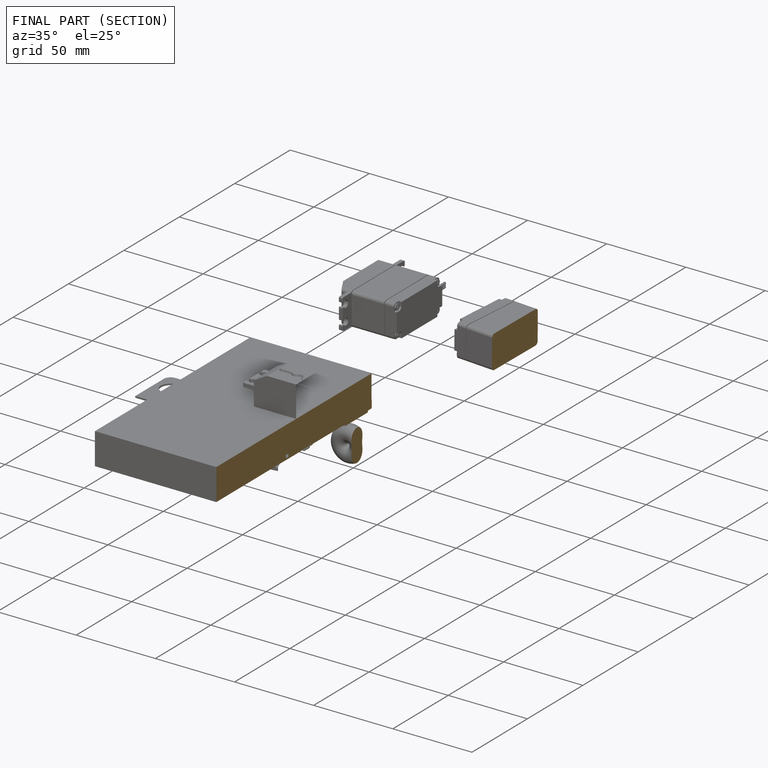
[diagram: finished part — half-section view (interior)]
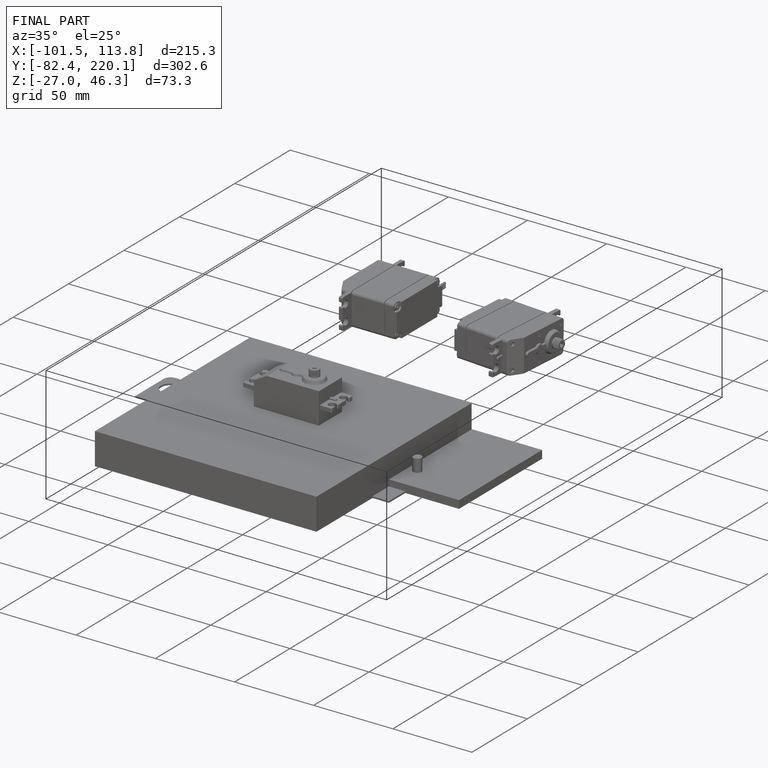
[diagram: finished part — iso view with bounding-box wireframe]
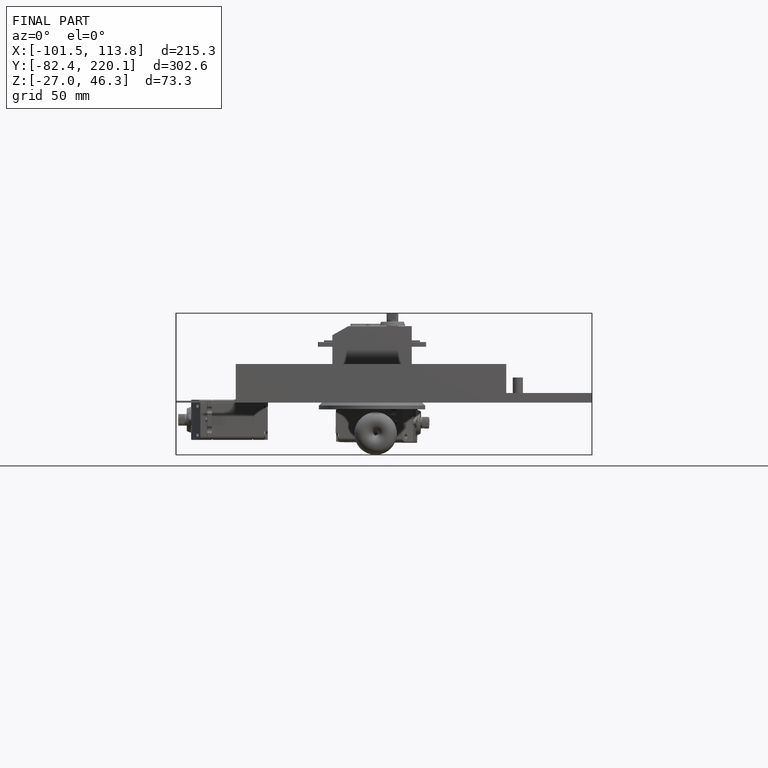
[diagram: finished part — front view with bounding-box wireframe]
